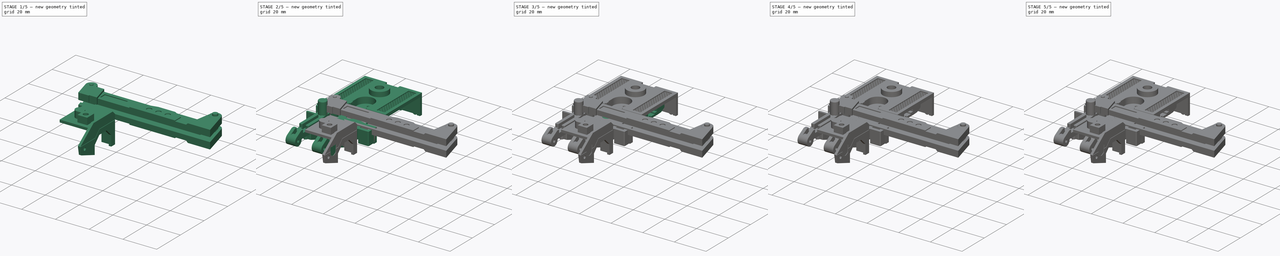
[diagram: build sequence overview — one tinted view per stage of 5, left to right]
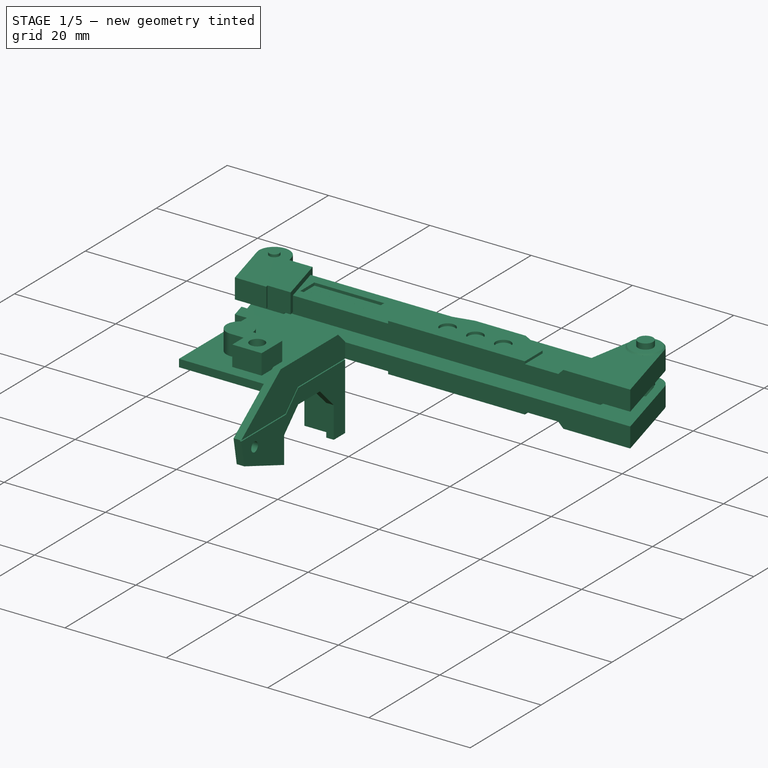
[diagram: stage 1 of 5 — iso view after this stage's code; geometry added in this stage tinted green]
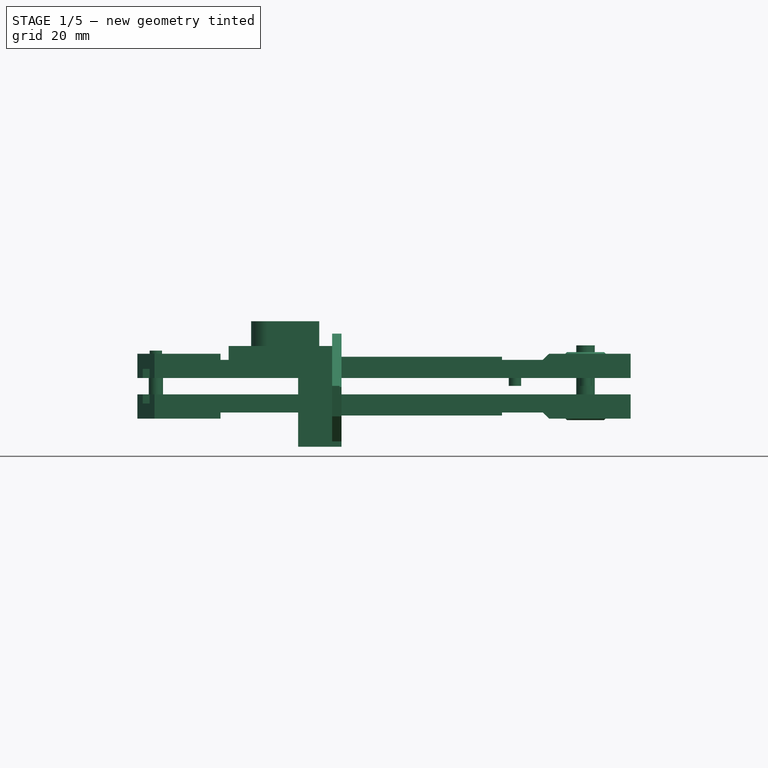
[diagram: stage 1 of 5 — front view after this stage's code; geometry added in this stage tinted green]
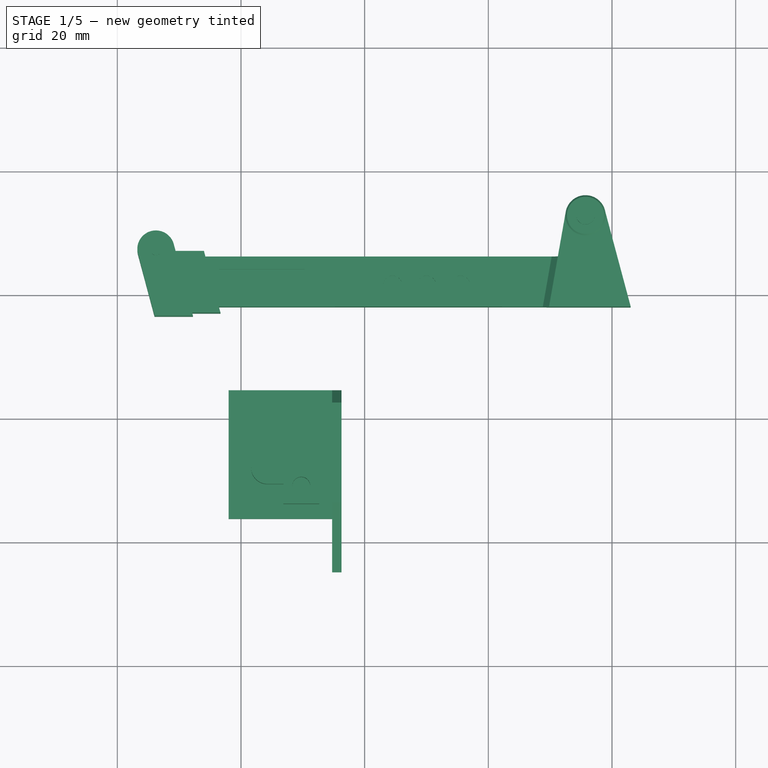
[diagram: stage 1 of 5 — top view after this stage's code; geometry added in this stage tinted green]
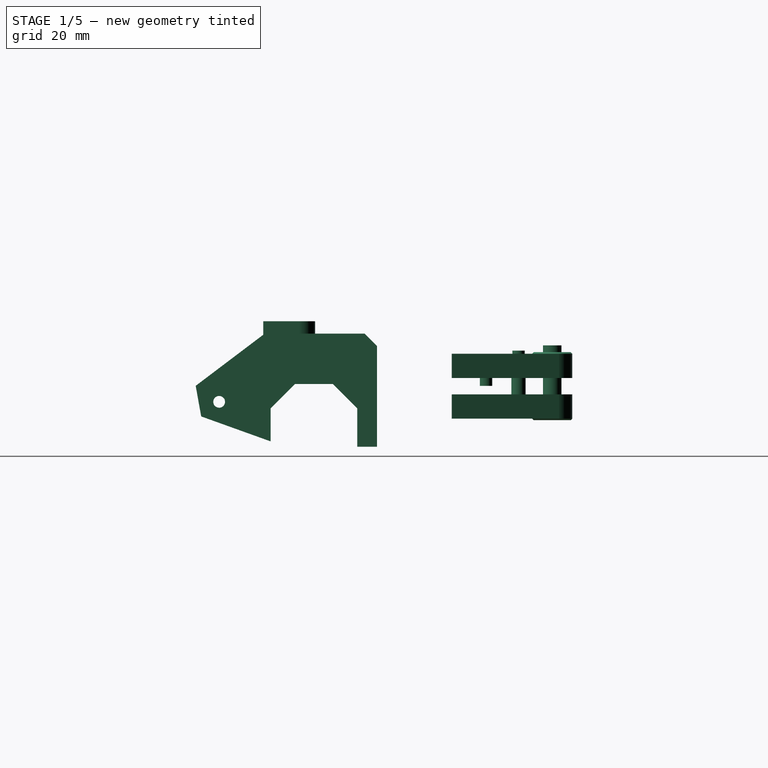
[diagram: stage 1 of 5 — right view after this stage's code; geometry added in this stage tinted green]
FCSTD DOCUMENT  (FreeCAD 1.0R39319 (Git))
Label: Stickered_Parts
License: All rights reserved
LicenseURL: https://en.wikipedia.org/wiki/All_rights_reserved
objects: Sketcher::SketchObject×24, PartDesign::Pocket×20, PartDesign::Body×13, Image::ImagePlane×7, PartDesign::SubShapeBinder×7, PartDesign::Pad×7, Part::Feature×6, PartDesign::FeatureBase×6
note: 167 computed .brp shape members not serialized (recipe doc carries the construction recipe); baked Part::Feature solids carry a one-line shape summary decoded from their .brp

FEATURE [PartDesign::Body] Body008  label="Sticker6"
  AllowCompound = false
  Group = -> [Binder005,Sketch019,Pad005,Sketch020,Pocket015]
  Origin = -> Origin008
  Tip = -> Pocket015
FEATURE [Part::Feature] Part__Feature003  label="Right_Outer_Leg"
  shape: bbox 18.25 x 29.33 x 20.3 mm, 42 faces (baked)
FEATURE [PartDesign::FeatureBase] BaseFeature003
  BaseFeature = -> Part__Feature003
  Suppressed = false
FEATURE [PartDesign::Body] Body009  label="Right_Outer_Leg_Stickered"
  AllowCompound = false
  BaseFeature = -> Part__Feature003
  Group = -> [BaseFeature003,Sketch021,Pocket016]
  Origin = -> Origin009
  Tip = -> Pocket016
FEATURE [Part::Feature] Part__Feature004  label="Outer_Left_Crane_Boom"
  shape: bbox 79.79 x 19.5 x 10.35 mm, 66 faces (baked)
FEATURE [PartDesign::FeatureBase] BaseFeature004
  BaseFeature = -> Part__Feature004
  Suppressed = false
FEATURE [Image::ImagePlane] Sticker7  label="Sticker7_Pre"
  Placement = pos=(23.4,2,0) rot=(0,0,1;0rad)
  XSize = 14.7504
  YSize = 4.08617
FEATURE [PartDesign::Pocket] Pocket017
  BaseFeature = -> BaseFeature004
  Direction = (0,0,-1)
  Length = 0.3
  Length2 = 5
  Profile = -> BaseFeature004 [Face60]
  Refine = true
  Suppressed = false
  Type = 0
FEATURE [PartDesign::Body] Body010  label="Outer_Left_Crane_Boom_Stickered"
  AllowCompound = false
  BaseFeature = -> Part__Feature004
  Group = -> [BaseFeature004,Pocket017]
  Origin = -> Origin010
  Tip = -> Pocket017
FEATURE [PartDesign::SubShapeBinder] Binder006
  BindCopyOnChange = 0
  BindMode = 2
  ClaimChildren = false
  Context = -> Body011 [Binder006.]
  Fuse = false
  MakeFace = true
  OffsetFill = false
  OffsetIntersection = false
  OffsetJoinType = 0
  OffsetOpenResult = false
  PartialLoad = false
  Refine = true
  Relative = true
  _Version = 2
FEATURE [Sketcher::SketchObject] Sketch022
  ArcFitTolerance = 1e-06
  AttachmentSupport = -> [Binder006]
  ExternalGeometry = -> [Binder006]
  FullyConstrained = true
  MakeInternals = false
  MapMode = 5
  Placement = pos=(0,0,3.45) rot=(0,0,1;0rad)
  sketch-geometry (4):
    g0: LineSegment StartX=16.4956 StartY=3.92 StartZ=0 EndX=16.4956 EndY=0.08 EndZ=0
    g1: LineSegment StartX=16.4956 StartY=0.08 StartZ=0 EndX=30.1356 EndY=0.08 EndZ=0
    g2: LineSegment StartX=30.1356 StartY=0.08 StartZ=0 EndX=30.1356 EndY=3.92 EndZ=0
    g3: LineSegment StartX=30.1356 StartY=3.92 StartZ=0 EndX=16.4956 EndY=3.92 EndZ=0
  constraints (12):
    c: Coincident(g0,g1)
    c: Coincident(g1,g2)
    c: Coincident(g2,g3)
    c: Coincident(g3,g0)
    c: Vertical(g0)
    c: Vertical(g2)
    c: Horizontal(g1)
    c: Horizontal(g3)
    c: DistanceX(g-4,g0) = 0.08
    c: DistanceX(g2,g-6) = 0.08
    c: DistanceY(g2,g-6) = 0.08
    c: DistanceY(g-6,g1) = 0.08
FEATURE [PartDesign::Pad] Pad006
  Direction = (0,0,1)
  Length = 0.3
  Length2 = 10
  Profile = -> Sketch022
  ReferenceAxis = -> Sketch022 [N_Axis]
  Refine = true
  Suppressed = false
  Type = 0
FEATURE [Sketcher::SketchObject] Sketch023
  ArcFitTolerance = 1e-06
  AttachmentSupport = -> [Pad006]
  ExternalGeometry = -> [Pad006]
  FullyConstrained = false
  MakeInternals = false
  MapMode = 5
  Placement = pos=(0,0,3.75) rot=(0,0,1;0rad)
  sketch-geometry (29):
    g0: LineSegment StartX=30.1356 StartY=0.949158 StartZ=0 EndX=29.2963 EndY=0.08 EndZ=0
    g1: LineSegment StartX=29.2963 StartY=0.08 StartZ=0 EndX=30.1356 EndY=0.08 EndZ=0
    g2: LineSegment StartX=30.1356 StartY=0.08 StartZ=0 EndX=30.1356 EndY=0.949158 EndZ=0
    g3: LineSegment StartX=30.1356 StartY=2.29535 StartZ=0 EndX=27.9963 EndY=0.08 EndZ=0
    g4: LineSegment StartX=27.9963 StartY=0.08 StartZ=0 EndX=26.6963 EndY=0.08 EndZ=0
    g5: LineSegment StartX=26.6963 StartY=0.08 StartZ=0 EndX=30.4045 EndY=3.92 EndZ=0
    g6: LineSegment StartX=30.4045 StartY=3.92 StartZ=0 EndX=30.1356 EndY=3.92 EndZ=0
    g7: LineSegment StartX=30.1356 StartY=3.92 StartZ=0 EndX=30.1356 EndY=2.29535 EndZ=0
    g8: LineSegment StartX=29.1045 StartY=3.92 StartZ=0 EndX=25.3963 EndY=0.08 EndZ=0
    g9: LineSegment StartX=25.3963 StartY=0.08 StartZ=0 EndX=24.0963 EndY=0.08 EndZ=0
    g10: LineSegment StartX=24.0963 StartY=0.08 StartZ=0 EndX=27.8045 EndY=3.92 EndZ=0
    g11: LineSegment StartX=27.8045 StartY=3.92 StartZ=0 EndX=29.1045 EndY=3.92 EndZ=0
    g12: LineSegment StartX=25.2045 StartY=3.92 StartZ=0 EndX=21.4963 EndY=0.08 EndZ=0
    g13: LineSegment StartX=21.4963 StartY=0.08 StartZ=0 EndX=22.7963 EndY=0.08 EndZ=0
    g14: LineSegment StartX=22.7963 StartY=0.08 StartZ=0 EndX=26.5045 EndY=3.92 EndZ=0
    g15: LineSegment StartX=26.5045 StartY=3.92 StartZ=0 EndX=25.2045 EndY=3.92 EndZ=0
    g16: LineSegment StartX=22.6045 StartY=3.92 StartZ=0 EndX=18.8963 EndY=0.08 EndZ=0
    g17: LineSegment StartX=18.8963 StartY=0.08 StartZ=0 EndX=20.1963 EndY=0.08 EndZ=0
    g18: LineSegment StartX=20.1963 StartY=0.08 StartZ=0 EndX=23.9045 EndY=3.92 EndZ=0
    g19: LineSegment StartX=23.9045 StartY=3.92 StartZ=0 EndX=22.6045 EndY=3.92 EndZ=0
    g20: LineSegment StartX=21.3045 StartY=3.92 StartZ=0 EndX=17.5963 EndY=0.08 EndZ=0
    g21: LineSegment StartX=17.5963 StartY=0.08 StartZ=0 EndX=16.4956 EndY=0.08 EndZ=0
    g22: LineSegment StartX=16.4956 StartY=0.08 StartZ=0 EndX=16.4956 EndY=0.286418 EndZ=0
    g23: LineSegment StartX=16.4956 StartY=0.286418 StartZ=0 EndX=20.0045 EndY=3.92 EndZ=0
    g24: LineSegment StartX=20.0045 StartY=3.92 StartZ=0 EndX=21.3045 EndY=3.92 EndZ=0
    g25: LineSegment StartX=18.7045 StartY=3.92 StartZ=0 EndX=16.4956 EndY=1.63261 EndZ=0
    g26: LineSegment StartX=16.4956 StartY=1.63261 StartZ=0 EndX=16.4956 EndY=2.9788 EndZ=0
    g27: LineSegment StartX=16.4956 StartY=2.9788 StartZ=0 EndX=17.4045 EndY=3.92 EndZ=0
    g28: LineSegment StartX=17.4045 StartY=3.92 StartZ=0 EndX=18.7045 EndY=3.92 EndZ=0
  constraints (83):
    c: PointOnObject(g0,g-6)
    c: PointOnObject(g0,g-5)
    c: Coincident(g1,g0)
    c: Coincident(g1,g-6)
    c: Coincident(g2,g1)
    c: Coincident(g2,g0)
    c: PointOnObject(g3,g-6)
    c: PointOnObject(g3,g-5)
    c: Coincident(g4,g3)
    c: PointOnObject(g4,g-5)
    c: Coincident(g5,g4)
    c: PointOnObject(g5,g-3)
    c: Coincident(g6,g5)
    c: Coincident(g6,g-6)
    c: Coincident(g7,g6)
    c: Coincident(g7,g3)
    c: PointOnObject(g8,g-5)
    c: Coincident(g10,g9)
    c: PointOnObject(g10,g-3)
    c: Coincident(g11,g10)
    c: Horizontal(g11)
    c: Coincident(g8,g11)
    c: PointOnObject(g9,g-5)
    c: PointOnObject(g12,g-3)
    c: PointOnObject(g12,g-5)
    c: Coincident(g13,g12)
    c: PointOnObject(g13,g-5)
    c: Coincident(g14,g13)
    c: PointOnObject(g14,g-3)
    c: Coincident(g15,g14)
    c: Coincident(g15,g12)
    c: PointOnObject(g16,g-3)
    c: PointOnObject(g16,g-5)
    c: Coincident(g17,g16)
    c: PointOnObject(g17,g-5)
    c: Coincident(g18,g17)
    c: PointOnObject(g18,g-3)
    c: Coincident(g19,g18)
    c: Coincident(g19,g16)
    c: PointOnObject(g20,g-3)
    c: PointOnObject(g20,g-5)
    c: Coincident(g21,g20)
    c: Coincident(g21,g-5)
    c: Coincident(g22,g21)
    c: PointOnObject(g22,g-4)
    c: Coincident(g23,g22)
    c: PointOnObject(g23,g-3)
    c: Coincident(g24,g23)
    c: Coincident(g24,g20)
    c: PointOnObject(g25,g-3)
    c: PointOnObject(g25,g-4)
    c: Coincident(g26,g25)
    c: PointOnObject(g26,g-4)
    c: Coincident(g27,g26)
    c: PointOnObject(g27,g-3)
    c: Coincident(g28,g27)
    c: Coincident(g28,g25)
    c: Parallel(g0,g3)
    c: Parallel(g3,g5)
    c: Parallel(g5,g8)
    c: Parallel(g8,g10)
    c: Parallel(g10,g14)
    c: Parallel(g14,g12)
    c: Parallel(g12,g18)
    c: Parallel(g18,g16)
    c: Parallel(g16,g20)
    c: Parallel(g20,g23)
    c: Parallel(g23,g25)
    c: Parallel(g25,g27)
    c: DistanceX(g11,g11) = 1.3
    c: DistanceX(g15,g15) = 1.3
    c: DistanceX(g19,g19) = 1.3
    c: DistanceX(g24,g24) = 1.3
    c: DistanceX(g28,g28) = 1.3
    c: DistanceX(g4,g4) = 1.3
    c: DistanceX(g14,g10) = 1.3
    c: DistanceX(g18,g12) = 1.3
    c: DistanceX(g20,g16) = 1.3
    c: DistanceX(g25,g23) = 1.3
    c: Coincident(g9,g8)
    c: DistanceX(g8,g4) = 1.3
    c: DistanceX(g3,g0) = 1.3
    c: Angle(g27,g28) = 2.33874
FEATURE [PartDesign::Pocket] Pocket018
  BaseFeature = -> Pad006
  Direction = (0,0,-1)
  Length = 0.001
  Length2 = 5
  Profile = -> Sketch023
  ReferenceAxis = -> Sketch023 [N_Axis]
  Refine = true
  Suppressed = false
  Type = 0
FEATURE [PartDesign::Body] Body011  label="Sticker7"
  AllowCompound = false
  Group = -> [Binder006,Sketch022,Pad006,Sketch023,Pocket018]
  Origin = -> Origin011
  Tip = -> Pocket018
FEATURE [Part::Feature] Part__Feature005  label="Outer_Right_Crane_Boom"
  shape: bbox 79.79 x 19.5 x 4.175 mm, 56 faces (baked)
FEATURE [PartDesign::FeatureBase] BaseFeature005
  BaseFeature = -> Part__Feature005
  Suppressed = false
FEATURE [PartDesign::Pocket] Pocket019
  BaseFeature = -> BaseFeature005
  Direction = (0,0,1)
  Length = 0.3
  Length2 = 5
  Profile = -> BaseFeature005 [Face53]
  Refine = true
  Suppressed = false
  Type = 0
FEATURE [PartDesign::Body] Body012  label="Outer_Right_Crane_Boom_Stickered"
  AllowCompound = false
  BaseFeature = -> Part__Feature005
  Group = -> [BaseFeature005,Pocket019]
  Origin = -> Origin012
  Tip = -> Pocket019
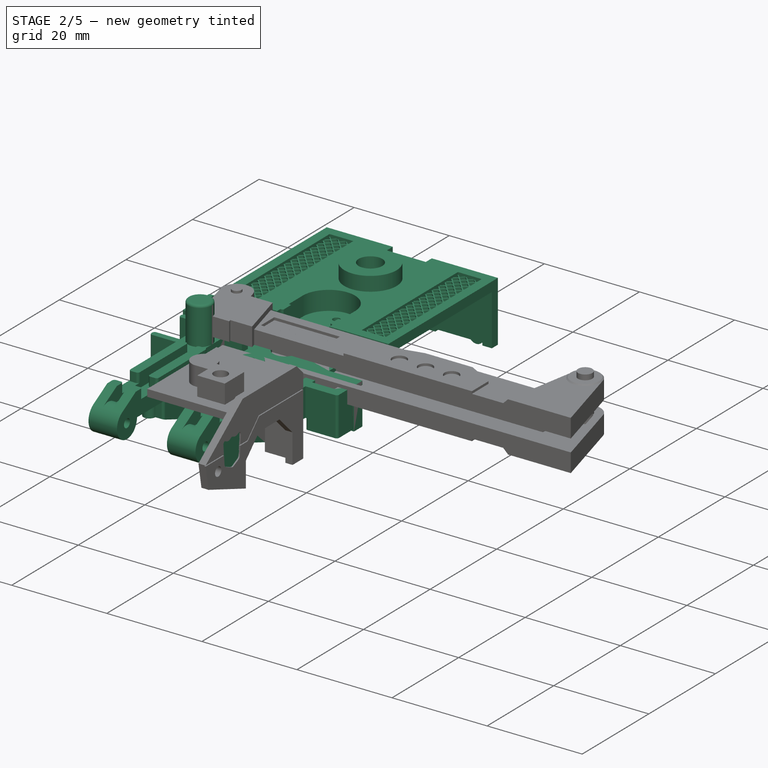
[diagram: stage 2 of 5 — iso view after this stage's code; geometry added in this stage tinted green]
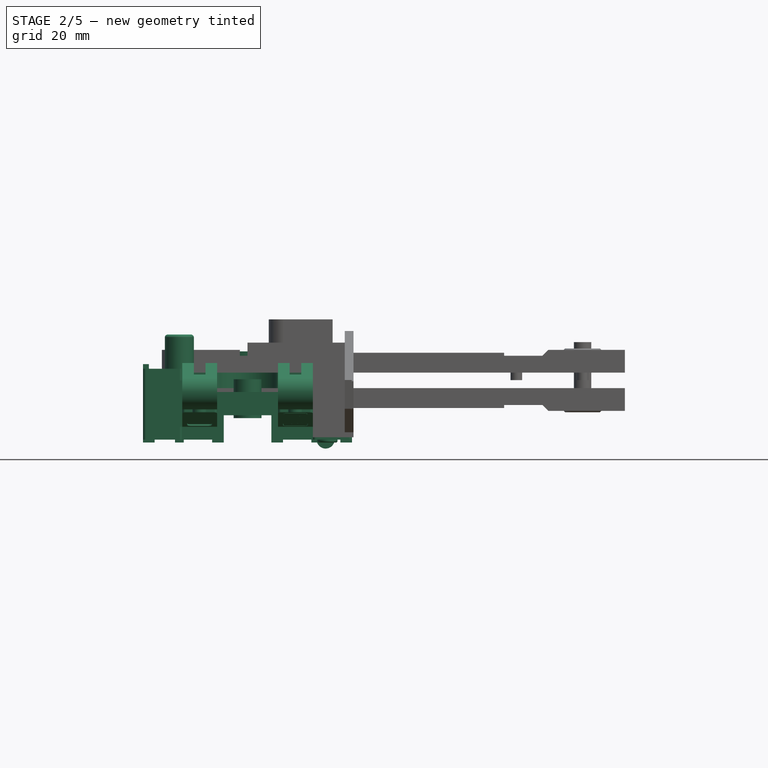
[diagram: stage 2 of 5 — front view after this stage's code; geometry added in this stage tinted green]
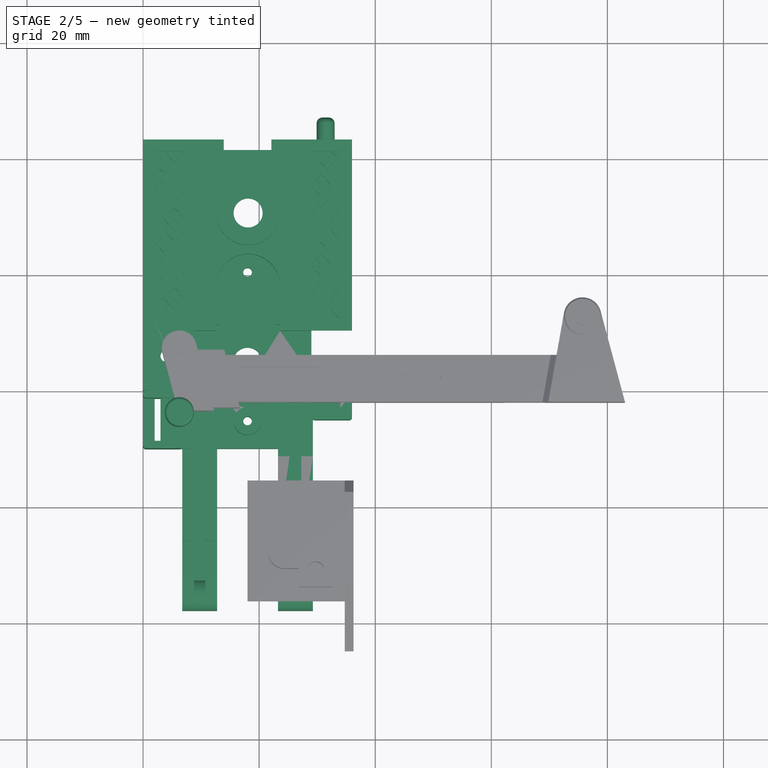
[diagram: stage 2 of 5 — top view after this stage's code; geometry added in this stage tinted green]
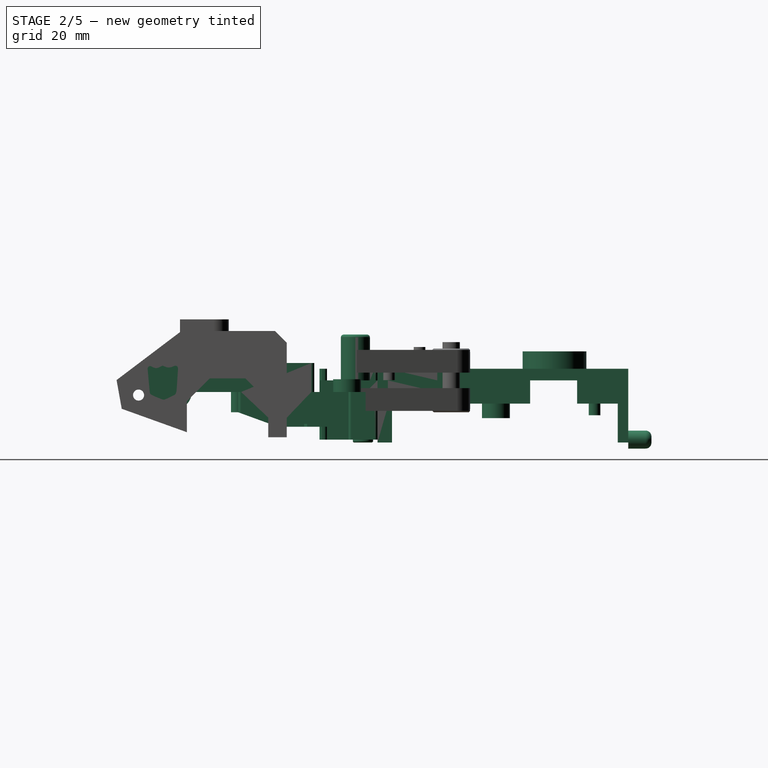
[diagram: stage 2 of 5 — right view after this stage's code; geometry added in this stage tinted green]
FEATURE [PartDesign::Body] Body006  label="Sticker5"
  AllowCompound = false
  Group = -> [Binder004,Sketch016,Pad004,Sketch017,Pocket013]
  Origin = -> Origin006
  Tip = -> Pocket013
FEATURE [PartDesign::FeatureBase] BaseFeature001
  BaseFeature = -> Part__Feature001
  Suppressed = false
FEATURE [PartDesign::Body] Body005  label="Rear_Torso_Stickered"
  AllowCompound = false
  BaseFeature = -> Part__Feature001
  Group = -> [BaseFeature001,Sketch015,Pocket012]
  Origin = -> Origin005
  Tip = -> Pocket012
FEATURE [Part::Feature] Part__Feature002  label="Legs"
  shape: bbox 36 x 38 x 18.6 mm, 175 faces (baked)
FEATURE [PartDesign::FeatureBase] BaseFeature002
  BaseFeature = -> Part__Feature002
  Suppressed = false
FEATURE [Image::ImagePlane] Sticker6  label="Sticker6_Pre"
  Placement = pos=(26.17,-18.15,0) rot=(1,0,0;-0.349066rad)
  XSize = 5.00263
  YSize = 7.21003
FEATURE [Sketcher::SketchObject] Sketch018
  ArcFitTolerance = 1e-06
  AttachmentSupport = -> [BaseFeature002]
  ExternalGeometry = -> [BaseFeature002]
  FullyConstrained = true
  MakeInternals = false
  MapMode = 5
  Placement = pos=(0,-4.57513,-12.5701) rot=(1,0,0;2.79253rad)
  sketch-geometry (24):
    g0: LineSegment StartX=24.1 StartY=19.6715 StartZ=0 EndX=24.1 EndY=14.362 EndZ=0
    g1: LineSegment StartX=24.6 StartY=13.862 StartZ=0 EndX=27.9 EndY=13.862 EndZ=0
    g2: LineSegment StartX=28.4 StartY=14.362 StartZ=0 EndX=28.4 EndY=19.6715 EndZ=0
    g3: LineSegment StartX=27.9 StartY=20.1715 StartZ=0 EndX=24.6 EndY=20.1715 EndZ=0
    g4: ArcOfCircle CenterX=27.9 CenterY=19.6715 CenterZ=0 NormalX=0 NormalY=0 NormalZ=1 AngleXU=0 Radius=0.5 StartAngle=0 EndAngle=1.5708
    g5: GeomPoint [constr] X=28.4 Y=20.1715 Z=0
    g6: ArcOfCircle CenterX=27.9 CenterY=14.362 CenterZ=0 NormalX=0 NormalY=0 NormalZ=1 AngleXU=0 Radius=0.5 StartAngle=4.71239 EndAngle=6.28319
    g7: GeomPoint [constr] X=28.4 Y=13.862 Z=0
    g8: ArcOfCircle CenterX=24.6 CenterY=14.362 CenterZ=0 NormalX=0 NormalY=0 NormalZ=1 AngleXU=0 Radius=0.5 StartAngle=3.14159 EndAngle=4.71239
    g9: GeomPoint [constr] X=24.1 Y=13.862 Z=0
    g10: ArcOfCircle CenterX=24.6 CenterY=19.6715 CenterZ=0 NormalX=0 NormalY=0 NormalZ=1 AngleXU=0 Radius=0.5 StartAngle=1.5708 EndAngle=3.14159
    g11: GeomPoint [constr] X=24.1 Y=20.1715 Z=0
    g12: LineSegment StartX=7.6 StartY=19.6715 StartZ=0 EndX=7.6 EndY=14.362 EndZ=0
    g13: LineSegment StartX=8.1 StartY=13.862 StartZ=0 EndX=11.4 EndY=13.862 EndZ=0
    g14: LineSegment StartX=11.9 StartY=14.362 StartZ=0 EndX=11.9 EndY=19.6715 EndZ=0
    g15: LineSegment StartX=11.4 StartY=20.1715 StartZ=0 EndX=8.1 EndY=20.1715 EndZ=0
    g16: ArcOfCircle CenterX=11.4 CenterY=19.6715 CenterZ=0 NormalX=0 NormalY=0 NormalZ=1 AngleXU=0 Radius=0.5 StartAngle=3e-16 EndAngle=1.5708
    g17: GeomPoint [constr] X=11.9 Y=20.1715 Z=0
    g18: ArcOfCircle CenterX=8.1 CenterY=19.6715 CenterZ=0 NormalX=0 NormalY=0 NormalZ=1 AngleXU=0 Radius=0.5 StartAngle=1.5708 EndAngle=3.14159
    g19: GeomPoint [constr] X=7.6 Y=20.1715 Z=0
    g20: ArcOfCircle CenterX=8.1 CenterY=14.362 CenterZ=0 NormalX=0 NormalY=0 NormalZ=1 AngleXU=0 Radius=0.5 StartAngle=3.14159 EndAngle=4.71239
    g21: GeomPoint [constr] X=7.6 Y=13.862 Z=0
    g22: ArcOfCircle CenterX=11.4 CenterY=14.362 CenterZ=0 NormalX=0 NormalY=0 NormalZ=1 AngleXU=0 Radius=0.5 StartAngle=4.71239 EndAngle=6.28319
    g23: GeomPoint [constr] X=11.9 Y=13.862 Z=0
  constraints (56):
    c: Vertical(g0)
    c: Vertical(g2)
    c: Horizontal(g1)
    c: Horizontal(g3)
    c: PointOnObject(g5,g2)
    c: PointOnObject(g5,g3)
    c: Tangent(g2,g4) = -1.5708
    c: Tangent(g3,g4) = -1.5708
    c: PointOnObject(g7,g1)
    c: PointOnObject(g7,g2)
    c: Tangent(g1,g6) = -1.5708
    c: Tangent(g2,g6) = -1.5708
    c: PointOnObject(g9,g0)
    c: PointOnObject(g9,g1)
    c: Tangent(g0,g8) = -1.5708
    c: Tangent(g1,g8) = -1.5708
    c: PointOnObject(g11,g0)
    c: PointOnObject(g11,g3)
    c: Tangent(g0,g10) = -1.5708
    c: Tangent(g3,g10) = -1.5708
    c: Radius(g8) = 0.5
    c: Radius(g6) = 0.5
    c: Radius(g4) = 0.5
    c: Radius(g10) = 0.5
    c: DistanceY(g3,g-3) = 0.5
    c: DistanceY(g-6,g1) = 0.5
    c: DistanceX(g-6,g0) = 0.85
    c: DistanceX(g2,g-5) = 0.85
    c: Vertical(g12)
    c: Vertical(g14)
    c: Horizontal(g13)
    c: Horizontal(g15)
    c: PointOnObject(g17,g14)
    c: PointOnObject(g17,g15)
    c: Tangent(g14,g16) = -1.5708
    c: Tangent(g15,g16) = -1.5708
    c: PointOnObject(g19,g12)
    c: PointOnObject(g19,g15)
    c: Tangent(g12,g18) = -1.5708
    c: Tangent(g15,g18) = -1.5708
    c: PointOnObject(g21,g12)
    c: PointOnObject(g21,g13)
    c: Tangent(g12,g20) = -1.5708
    c: Tangent(g13,g20) = -1.5708
    c: PointOnObject(g23,g13)
    c: PointOnObject(g23,g14)
    c: Tangent(g13,g22) = -1.5708
    c: Tangent(g14,g22) = -1.5708
    c: Radius(g18) = 0.5
    c: Radius(g16) = 0.5
    c: Radius(g22) = 0.5
    c: Radius(g20) = 0.5
    c: DistanceY(g-9,g13) = 0.5
    c: DistanceY(g15,g-7) = 0.5
    c: DistanceX(g-10,g12) = 0.85
    c: DistanceX(g14,g-8) = 0.85
FEATURE [PartDesign::Pocket] Pocket014
  BaseFeature = -> BaseFeature002
  Direction = (0,0.34202,0.939693)
  Length = 0.3
  Length2 = 5
  Profile = -> Sketch018
  ReferenceAxis = -> Sketch018 [N_Axis]
  Refine = true
  Suppressed = false
  Type = 0
FEATURE [PartDesign::Body] Body007  label="Legs_Stickered"
  AllowCompound = false
  BaseFeature = -> Part__Feature002
  Group = -> [BaseFeature002,Sketch018,Pocket014]
  Origin = -> Origin007
  Tip = -> Pocket014
FEATURE [PartDesign::SubShapeBinder] Binder005
  BindCopyOnChange = 0
  BindMode = 2
  ClaimChildren = false
  Context = -> Body008 [Binder005.]
  Fuse = false
  MakeFace = true
  OffsetFill = false
  OffsetIntersection = false
  OffsetJoinType = 0
  OffsetOpenResult = false
  PartialLoad = false
  Refine = true
  Relative = true
  _Version = 2
FEATURE [Sketcher::SketchObject] Sketch019
  ArcFitTolerance = 1e-06
  AttachmentSupport = -> [Binder005]
  ExternalGeometry = -> [Binder005]
  FullyConstrained = true
  MakeInternals = false
  MapMode = 5
  Placement = pos=(0,-4.47253,-12.2882) rot=(1,0,0;2.79253rad)
  sketch-geometry (12):
    g0: LineSegment StartX=24.18 StartY=19.5915 StartZ=0 EndX=24.18 EndY=14.442 EndZ=0
    g1: LineSegment StartX=24.68 StartY=13.942 StartZ=0 EndX=27.82 EndY=13.942 EndZ=0
    g2: LineSegment StartX=28.32 StartY=14.442 StartZ=0 EndX=28.32 EndY=19.5915 EndZ=0
    g3: LineSegment StartX=27.82 StartY=20.0915 StartZ=0 EndX=24.68 EndY=20.0915 EndZ=0
    g4: ArcOfCircle CenterX=27.82 CenterY=19.5915 CenterZ=0 NormalX=0 NormalY=0 NormalZ=1 AngleXU=0 Radius=0.5 StartAngle=1.8e-15 EndAngle=1.5708
    g5: GeomPoint [constr] X=28.32 Y=20.0915 Z=0
    g6: ArcOfCircle CenterX=24.68 CenterY=19.5915 CenterZ=0 NormalX=0 NormalY=0 NormalZ=1 AngleXU=0 Radius=0.5 StartAngle=1.5708 EndAngle=3.14159
    g7: GeomPoint [constr] X=24.18 Y=20.0915 Z=0
    g8: ArcOfCircle CenterX=24.68 CenterY=14.442 CenterZ=0 NormalX=0 NormalY=0 NormalZ=1 AngleXU=0 Radius=0.5 StartAngle=3.14159 EndAngle=4.71239
    g9: GeomPoint [constr] X=24.18 Y=13.942 Z=0
    g10: ArcOfCircle CenterX=27.82 CenterY=14.442 CenterZ=0 NormalX=0 NormalY=0 NormalZ=1 AngleXU=0 Radius=0.5 StartAngle=4.71239 EndAngle=6.28319
    g11: GeomPoint [constr] X=28.32 Y=13.942 Z=0
  constraints (28):
    c: Vertical(g0)
    c: Vertical(g2)
    c: Horizontal(g1)
    c: Horizontal(g3)
    c: PointOnObject(g5,g2)
    c: PointOnObject(g5,g3)
    c: Tangent(g2,g4) = -1.5708
    c: Tangent(g3,g4) = -1.5708
    c: PointOnObject(g7,g0)
    c: PointOnObject(g7,g3)
    c: Tangent(g0,g6) = -1.5708
    c: Tangent(g3,g6) = -1.5708
    c: PointOnObject(g9,g0)
    c: PointOnObject(g9,g1)
    c: Tangent(g0,g8) = -1.5708
    c: Tangent(g1,g8) = -1.5708
    c: PointOnObject(g11,g1)
    c: PointOnObject(g11,g2)
    c: Tangent(g1,g10) = -1.5708
    c: Tangent(g2,g10) = -1.5708
    c: Radius(g6) = 0.5
    c: Radius(g4) = 0.5
    c: Radius(g8) = 0.5
    c: Radius(g10) = 0.5
    c: DistanceY(g-6,g1) = 0.08
    c: DistanceY(g3,g-3) = 0.08
    c: DistanceX(g-5,g0) = 0.08
    c: DistanceX(g2,g-4) = 0.08
FEATURE [PartDesign::Pad] Pad005
  Direction = (0,-0.34202,-0.939693)
  Length = 0.3
  Length2 = 10
  Profile = -> Sketch019
  ReferenceAxis = -> Sketch019 [N_Axis]
  Refine = true
  Suppressed = false
  Type = 0
FEATURE [Sketcher::SketchObject] Sketch020
  ArcFitTolerance = 1e-06
  AttachmentSupport = -> [Pad005]
  ExternalGeometry = -> [Pad005]
  FullyConstrained = false
  MakeInternals = false
  MapMode = 5
  Placement = pos=(0,-4.57513,-12.5701) rot=(1,0,0;2.79253rad)
  sketch-geometry (37):
    g0: LineSegment StartX=25.4477 StartY=14.3643 StartZ=0 EndX=25.6438 EndY=14.9917 EndZ=0
    g1: ArcOfCircle CenterX=25.7734 CenterY=15.669 CenterZ=0 NormalX=0 NormalY=0 NormalZ=1 AngleXU=0 Radius=0.68957 StartAngle=3.14159 EndAngle=4.52332
    g2: LineSegment StartX=25.0838 StartY=15.669 StartZ=0 EndX=25.0838 EndY=18.3787 EndZ=0
    g3: ArcOfCircle CenterX=25.6803 CenterY=18.3787 CenterZ=0 NormalX=0 NormalY=0 NormalZ=1 AngleXU=0 Radius=0.596519 StartAngle=1.5708 EndAngle=3.14159
    g4: ArcOfCircle CenterX=26.8722 CenterY=18.4099 CenterZ=0 NormalX=0 NormalY=0 NormalZ=1 AngleXU=0 Radius=0.565267 StartAngle=2.4e-15 EndAngle=1.5708
    g5: ArcOfCircle CenterX=26.7623 CenterY=15.6618 CenterZ=0 NormalX=0 NormalY=0 NormalZ=1 AngleXU=0 Radius=0.675109 StartAngle=4.83545 EndAngle=6.28319
    g6: LineSegment StartX=25.4477 StartY=14.3643 StartZ=0 EndX=27.0435 EndY=14.3643 EndZ=0
    g7: LineSegment StartX=27.0435 StartY=14.3643 StartZ=0 EndX=26.8452 EndY=14.9917 EndZ=0
    g8: LineSegment StartX=27.4374 StartY=15.6618 StartZ=0 EndX=27.4374 EndY=18.4099 EndZ=0
    g9: LineSegment StartX=26.8722 StartY=18.9752 StartZ=0 EndX=25.6803 EndY=18.9752 EndZ=0
    g10: ArcOfCircle CenterX=25.7631 CenterY=15.669 CenterZ=0 NormalX=0 NormalY=0 NormalZ=1 AngleXU=0 Radius=0.429258 StartAngle=3.14159 EndAngle=4.61639
    g11: ArcOfCircle CenterX=26.7674 CenterY=15.6618 CenterZ=0 NormalX=0 NormalY=0 NormalZ=1 AngleXU=0 Radius=0.420005 StartAngle=4.70944 EndAngle=6.28319
    g12: ArcOfCircle CenterX=25.6803 CenterY=18.3787 CenterZ=0 NormalX=0 NormalY=0 NormalZ=1 AngleXU=0 Radius=0.346519 StartAngle=1.5708 EndAngle=3.14159
    g13: ArcOfCircle CenterX=26.8722 CenterY=18.4099 CenterZ=0 NormalX=0 NormalY=0 NormalZ=1 AngleXU=0 Radius=0.315267 StartAngle=1.5e-15 EndAngle=1.5708
    g14: LineSegment StartX=27.1874 StartY=15.6618 StartZ=0 EndX=27.1874 EndY=18.4099 EndZ=0
    g15: LineSegment StartX=26.8722 StartY=18.7252 StartZ=0 EndX=25.6803 EndY=18.7252 EndZ=0
    g16: LineSegment StartX=25.3338 StartY=18.3787 StartZ=0 EndX=25.3338 EndY=15.669 EndZ=0
    g17: LineSegment StartX=25.7219 StartY=15.2417 StartZ=0 EndX=26.2412 EndY=16.903 EndZ=0
    g18: LineSegment StartX=26.2412 StartY=16.903 StartZ=0 EndX=26.7662 EndY=15.2417 EndZ=0
    g19: LineSegment StartX=26.2412 StartY=16.2502 StartZ=0 EndX=25.7098 EndY=14.5749 EndZ=0
    g20: LineSegment StartX=25.7098 StartY=14.5749 StartZ=0 EndX=26.802 EndY=14.5749 EndZ=0
    g21: LineSegment StartX=26.802 StartY=14.5749 StartZ=0 EndX=26.2412 EndY=16.2502 EndZ=0
    g22: LineSegment [constr] StartX=25.3338 StartY=15.669 StartZ=0 EndX=25.0838 EndY=15.669 EndZ=0
    g23: LineSegment [constr] StartX=27.1874 StartY=15.6618 StartZ=0 EndX=27.4374 EndY=15.6618 EndZ=0
    g24: LineSegment [constr] StartX=26.8722 StartY=18.9752 StartZ=0 EndX=26.8722 EndY=18.7252 EndZ=0
    g25: LineSegment [constr] StartX=27.1874 StartY=18.4099 StartZ=0 EndX=27.4374 EndY=18.4099 EndZ=0
    g26: LineSegment [constr] StartX=25.3338 StartY=18.3787 StartZ=0 EndX=25.0838 EndY=18.3787 EndZ=0
    g27: LineSegment [constr] StartX=25.6803 StartY=18.9752 StartZ=0 EndX=25.6803 EndY=18.7252 EndZ=0
    g28: LineSegment [constr] StartX=25.3338 StartY=18.3787 StartZ=0 EndX=25.6803 EndY=18.3787 EndZ=0
    g29: LineSegment [constr] StartX=25.6803 StartY=18.3787 StartZ=0 EndX=25.6803 EndY=18.7252 EndZ=0
    g30: LineSegment [constr] StartX=26.8722 StartY=18.7252 StartZ=0 EndX=26.8722 EndY=18.4099 EndZ=0
    g31: LineSegment [constr] StartX=26.8722 StartY=18.4099 StartZ=0 EndX=27.1874 EndY=18.4099 EndZ=0
    g32: LineSegment [constr] StartX=25.6438 StartY=14.9917 StartZ=0 EndX=25.7219 EndY=15.2417 EndZ=0
    g33: LineSegment [constr] StartX=26.8452 StartY=14.9917 StartZ=0 EndX=26.7662 EndY=15.2417 EndZ=0
    g34: LineSegment [constr] StartX=26.2412 StartY=16.2502 StartZ=0 EndX=26.2412 EndY=16.903 EndZ=0
    g35: LineSegment [constr] StartX=25.7219 StartY=15.2417 StartZ=0 EndX=26.7662 EndY=15.2417 EndZ=0
    g36: LineSegment [constr] StartX=25.6438 StartY=14.9917 StartZ=0 EndX=26.8452 EndY=14.9917 EndZ=0
  constraints (77):
    c: Coincident(g1,g0)
    c: Vertical(g2)
    c: Coincident(g6,g0)
    c: Horizontal(g6)
    c: Coincident(g7,g6)
    c: Coincident(g7,g5)
    c: Vertical(g8)
    c: Horizontal(g9)
    c: Vertical(g14)
    c: Horizontal(g15)
    c: Vertical(g16)
    c: Coincident(g17,g10)
    c: Coincident(g18,g17)
    c: Coincident(g18,g11)
    c: Coincident(g20,g19)
    c: Horizontal(g20)
    c: Coincident(g21,g20)
    c: Coincident(g21,g19)
    c: Tangent(g14,g11) = -1.5708
    c: Tangent(g8,g5) = -1.5708
    c: Tangent(g16,g10) = -1.5708
    c: Tangent(g2,g1) = 1.5708
    c: Tangent(g16,g12) = -1.5708
    c: Tangent(g12,g15) = -1.5708
    c: Tangent(g3,g2) = 1.5708
    c: Tangent(g9,g3) = -1.5708
    c: Tangent(g9,g4) = -1.5708
    c: Tangent(g8,g4) = -1.5708
    c: Tangent(g15,g13) = -1.5708
    c: Tangent(g14,g13) = -1.5708
    c: Coincident(g22,g10)
    c: Coincident(g22,g1)
    c: Coincident(g23,g11)
    c: Coincident(g23,g5)
    c: Coincident(g24,g4)
    c: Coincident(g24,g13)
    c: Coincident(g25,g13)
    c: Coincident(g25,g4)
    c: Coincident(g26,g12)
    c: Coincident(g26,g2)
    c: Coincident(g27,g3)
    c: Coincident(g27,g12)
    c: Vertical(g27)
    c: Vertical(g24)
    c: Horizontal(g26)
    c: Horizontal(g25)
    c: Horizontal(g22)
    c: Horizontal(g23)
    c: DistanceX(g23,g23) = 0.25
    c: Coincident(g28,g12)
    c: Coincident(g28,g3)
    c: Coincident(g29,g12)
    c: Coincident(g29,g12)
    c: Coincident(g30,g13)
    c: Coincident(g30,g4)
    c: Coincident(g31,g13)
    c: Coincident(g31,g13)
    c: Parallel(g7,g18)
    c: Parallel(g17,g0)
    c: Coincident(g32,g0)
    c: Coincident(g32,g10)
    c: Coincident(g33,g5)
    c: Coincident(g33,g11)
    c: Parallel(g18,g33)
    c: Parallel(g17,g32)
    c: Coincident(g34,g19)
    c: Coincident(g34,g17)
    c: Vertical(g34)
    c: Coincident(g35,g10)
    c: Coincident(g35,g11)
    c: Horizontal(g35)
    c: Coincident(g36,g0)
    c: Coincident(g36,g5)
    c: Horizontal(g36)
    c: DistanceY(g0,g10) = 0.25
    c: DistanceX(g10,g17) = 0.519259
    c: DistanceX(g17,g11) = 0.525
FEATURE [PartDesign::Pocket] Pocket015
  BaseFeature = -> Pad005
  Direction = (0,0.34202,0.939693)
  Length = 0.001
  Length2 = 5
  Profile = -> Sketch020
  ReferenceAxis = -> Sketch020 [N_Axis]
  Refine = true
  Suppressed = false
  Type = 0
FEATURE [Sketcher::SketchObject] Sketch021
  ArcFitTolerance = 1e-06
  AttachmentOffset = pos=(-32,-3,0) rot=(0,0,1;3.14159rad)
  AttachmentSupport = -> [BaseFeature003]
  FullyConstrained = false
  MakeInternals = false
  MapMode = 5
  Placement = pos=(36.25,-32,-3) rot=(0.57735,-0.57735,0.57735;4.18879rad)
  sketch-geometry (45):
    g0-g22: Circle [constr] x23 (B-spline internal-alignment scaffolding for g23; pole/knot coordinates omitted)
    g23: BSplineCurve PolesCount=23 KnotsCount=21 Degree=3 IsPeriodic=0
    g24-g44: GeomPoint [constr] x21 (B-spline internal-alignment scaffolding for g23; pole/knot coordinates omitted)
  constraints (5):
    c: Weight(g0) = 1
    c: Equal(g0, g1-g22) x22
    c: InternalAlignment(g0-g22 -> g23) x23
    c: InternalAlignment(g24-g44 -> g23) x21
    c: Coincident(g22,g0)
FEATURE [PartDesign::Pocket] Pocket016
  BaseFeature = -> BaseFeature003
  Direction = (-1,0,0)
  Length = 0.3
  Length2 = 5
  Profile = -> Sketch021
  ReferenceAxis = -> Sketch021 [N_Axis]
  Refine = true
  Suppressed = false
  Type = 0
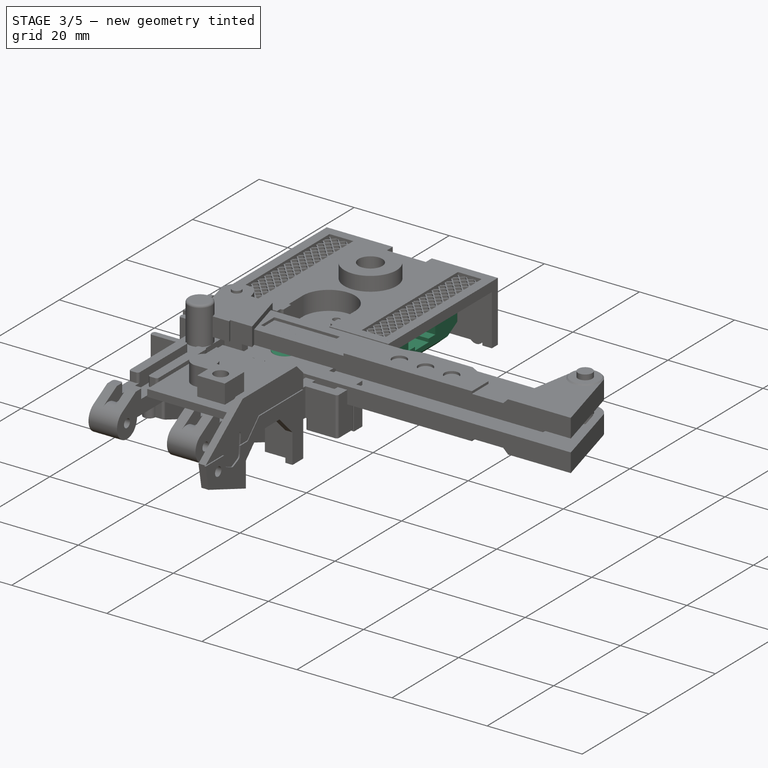
[diagram: stage 3 of 5 — iso view after this stage's code; geometry added in this stage tinted green]
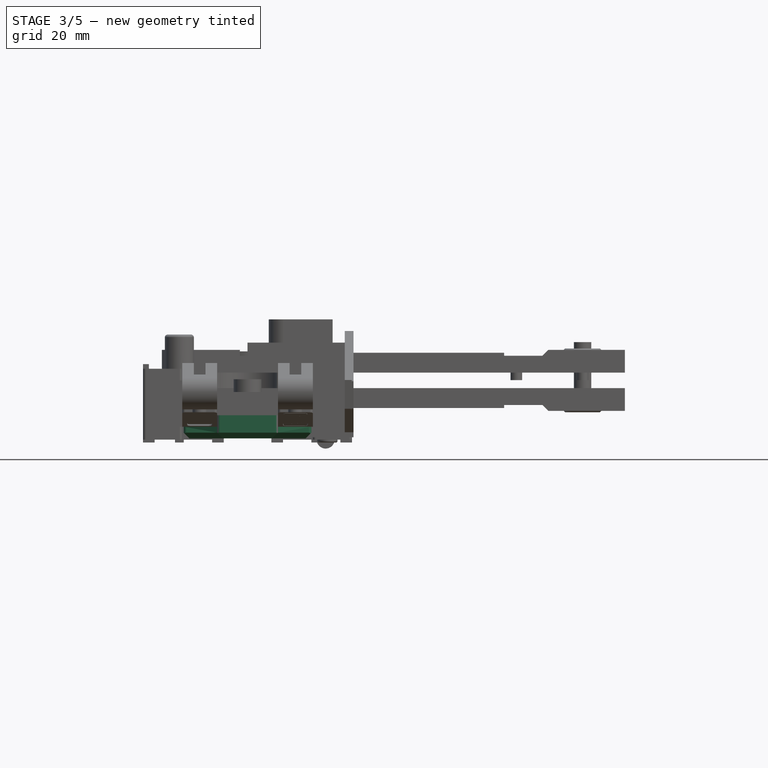
[diagram: stage 3 of 5 — front view after this stage's code; geometry added in this stage tinted green]
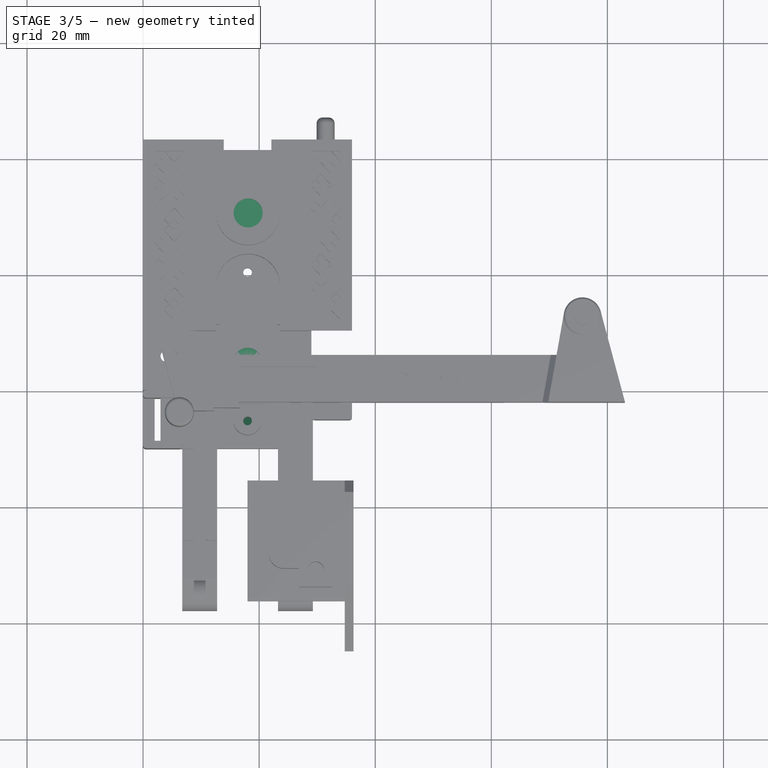
[diagram: stage 3 of 5 — top view after this stage's code; geometry added in this stage tinted green]
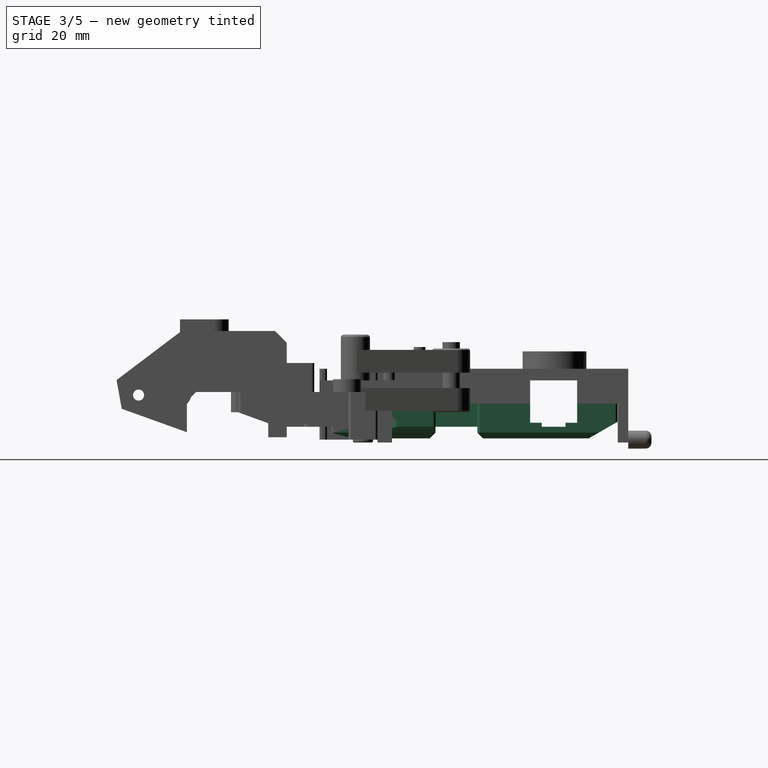
[diagram: stage 3 of 5 — right view after this stage's code; geometry added in this stage tinted green]
FEATURE [Part::Feature] Part__Feature  label="Front_Torso"
  shape: bbox 22 x 49.35 x 8 mm, 155 faces (baked)
FEATURE [PartDesign::FeatureBase] BaseFeature
  BaseFeature = -> Part__Feature
  Suppressed = false
FEATURE [PartDesign::Pocket] Pocket
  BaseFeature = -> BaseFeature
  Direction = (0,0,1)
  Length = 0.1
  Length2 = 5
  Profile = -> BaseFeature [Face120]
  Refine = true
  Suppressed = false
  Type = 0
FEATURE [PartDesign::Body] Body  label="Front_Torso_Stickered"
  AllowCompound = false
  BaseFeature = -> Part__Feature
  Group = -> [BaseFeature,Pocket,Sketch004,Pocket004,Sketch005,Pocket005,Sketch008,Pocket007,Sketch009,Pocket008,Sketch012,Pocket010]
  Origin = -> Origin
  Tip = -> Pocket010
FEATURE [PartDesign::SubShapeBinder] Binder003
  BindCopyOnChange = 0
  BindMode = 2
  ClaimChildren = false
  Context = -> Body004 [Binder003.]
  Fuse = false
  MakeFace = true
  OffsetFill = false
  OffsetIntersection = false
  OffsetJoinType = 0
  OffsetOpenResult = false
  PartialLoad = false
  Refine = true
  Relative = true
  _Version = 2
FEATURE [Sketcher::SketchObject] Sketch013
  ArcFitTolerance = 1e-06
  AttachmentSupport = -> [Binder003]
  ExternalGeometry = -> [Binder003]
  FullyConstrained = true
  MakeInternals = false
  MapMode = 5
  Placement = pos=(0,0,-8.7) rot=(1,0,0;3.14159rad)
  sketch-geometry (12):
    g0: LineSegment StartX=15.93 StartY=2.22 StartZ=0 EndX=15.93 EndY=-5.92 EndZ=0
    g1: LineSegment StartX=16.53 StartY=-6.52 StartZ=0 EndX=19.47 EndY=-6.52 EndZ=0
    g2: LineSegment StartX=20.07 StartY=-5.92 StartZ=0 EndX=20.07 EndY=2.22 EndZ=0
    g3: LineSegment StartX=19.47 StartY=2.82 StartZ=0 EndX=16.53 EndY=2.82 EndZ=0
    g4: ArcOfCircle CenterX=19.47 CenterY=2.22 CenterZ=0 NormalX=0 NormalY=0 NormalZ=1 AngleXU=0 Radius=0.6 StartAngle=1e-16 EndAngle=1.5708
    g5: GeomPoint [constr] X=20.07 Y=2.82 Z=0
    g6: ArcOfCircle CenterX=16.53 CenterY=2.22 CenterZ=0 NormalX=0 NormalY=0 NormalZ=1 AngleXU=0 Radius=0.6 StartAngle=1.5708 EndAngle=3.14159
    g7: GeomPoint [constr] X=15.93 Y=2.82 Z=0
    g8: ArcOfCircle CenterX=16.53 CenterY=-5.92 CenterZ=0 NormalX=0 NormalY=0 NormalZ=1 AngleXU=0 Radius=0.6 StartAngle=3.14159 EndAngle=4.71239
    g9: GeomPoint [constr] X=15.93 Y=-6.52 Z=0
    g10: ArcOfCircle CenterX=19.47 CenterY=-5.92 CenterZ=0 NormalX=0 NormalY=0 NormalZ=1 AngleXU=0 Radius=0.6 StartAngle=4.71239 EndAngle=6.28319
    g11: GeomPoint [constr] X=20.07 Y=-6.52 Z=0
  constraints (29):
    c: Vertical(g0)
    c: Vertical(g2)
    c: Horizontal(g1)
    c: Horizontal(g3)
    c: PointOnObject(g5,g2)
    c: PointOnObject(g5,g3)
    c: Tangent(g2,g4) = -1.5708
    c: Tangent(g3,g4) = -1.5708
    c: PointOnObject(g7,g0)
    c: PointOnObject(g7,g3)
    c: Tangent(g0,g6) = -1.5708
    c: Tangent(g3,g6) = -1.5708
    c: PointOnObject(g9,g0)
    c: PointOnObject(g9,g1)
    c: Tangent(g0,g8) = -1.5708
    c: Tangent(g1,g8) = -1.5708
    c: PointOnObject(g11,g1)
    c: PointOnObject(g11,g2)
    c: Tangent(g1,g10) = -1.5708
    c: Tangent(g2,g10) = -1.5708
    c: Radius(g-9) = 0.6
    c: Radius(g8) = 0.6
    c: Radius(g10) = 0.6
    c: Radius(g4) = 0.6
    c: Radius(g6) = 0.6
    c: DistanceY(g3,g-5) = 0.08
    c: DistanceY(g-9,g1) = 0.08
    c: DistanceX(g-9,g0) = 0.08
    c: DistanceX(g2,g-10) = 0.08
FEATURE [PartDesign::Pad] Pad003
  Direction = (0,0,-1)
  Length = 0.3
  Length2 = 10
  Profile = -> Sketch013
  ReferenceAxis = -> Sketch013 [N_Axis]
  Refine = true
  Suppressed = false
  Type = 0
FEATURE [Sketcher::SketchObject] Sketch014
  ArcFitTolerance = 1e-06
  AttachmentSupport = -> [Pad003]
  ExternalGeometry = -> [Pad003]
  FullyConstrained = true
  MakeInternals = false
  MapMode = 5
  Placement = pos=(0,0,-9) rot=(1,0,0;3.14159rad)
  sketch-geometry (40):
    g0: LineSegment StartX=16.775 StartY=2.05 StartZ=0 EndX=16.775 EndY=1.15 EndZ=0
    g1: LineSegment StartX=16.775 StartY=1.15 StartZ=0 EndX=19.225 EndY=1.15 EndZ=0
    g2: LineSegment StartX=19.225 StartY=1.15 StartZ=0 EndX=19.225 EndY=2.05 EndZ=0
    g3: LineSegment StartX=19.225 StartY=2.05 StartZ=0 EndX=16.775 EndY=2.05 EndZ=0
    g4: LineSegment StartX=16.775 StartY=0.9 StartZ=0 EndX=16.775 EndY=-2e-16 EndZ=0
    g5: LineSegment StartX=16.775 StartY=-3e-16 StartZ=0 EndX=19.225 EndY=-3e-16 EndZ=0
    g6: LineSegment StartX=19.225 StartY=-3e-16 StartZ=0 EndX=19.225 EndY=0.9 EndZ=0
    g7: LineSegment StartX=19.225 StartY=0.9 StartZ=0 EndX=16.775 EndY=0.9 EndZ=0
    g8: LineSegment StartX=16.775 StartY=-0.25 StartZ=0 EndX=16.775 EndY=-1.15 EndZ=0
    g9: LineSegment StartX=16.775 StartY=-1.15 StartZ=0 EndX=19.225 EndY=-1.15 EndZ=0
    g10: LineSegment StartX=19.225 StartY=-1.15 StartZ=0 EndX=19.225 EndY=-0.25 EndZ=0
    g11: LineSegment StartX=19.225 StartY=-0.25 StartZ=0 EndX=16.775 EndY=-0.25 EndZ=0
    g12: LineSegment StartX=16.775 StartY=-1.4 StartZ=0 EndX=16.775 EndY=-2.3 EndZ=0
    g13: LineSegment StartX=16.775 StartY=-2.3 StartZ=0 EndX=19.225 EndY=-2.3 EndZ=0
    g14: LineSegment StartX=19.225 StartY=-2.3 StartZ=0 EndX=19.225 EndY=-1.4 EndZ=0
    g15: LineSegment StartX=19.225 StartY=-1.4 StartZ=0 EndX=16.775 EndY=-1.4 EndZ=0
    g16: LineSegment StartX=16.775 StartY=-2.55 StartZ=0 EndX=16.775 EndY=-3.45 EndZ=0
    g17: LineSegment StartX=16.775 StartY=-3.45 StartZ=0 EndX=19.225 EndY=-3.45 EndZ=0
    g18: LineSegment StartX=19.225 StartY=-3.45 StartZ=0 EndX=19.225 EndY=-2.55 EndZ=0
    g19: LineSegment StartX=19.225 StartY=-2.55 StartZ=0 EndX=16.775 EndY=-2.55 EndZ=0
    g20: LineSegment StartX=16.775 StartY=-3.7 StartZ=0 EndX=16.775 EndY=-4.6 EndZ=0
    g21: LineSegment StartX=16.775 StartY=-4.6 StartZ=0 EndX=19.225 EndY=-4.6 EndZ=0
    g22: LineSegment StartX=19.225 StartY=-4.6 StartZ=0 EndX=19.225 EndY=-3.7 EndZ=0
    g23: LineSegment StartX=19.225 StartY=-3.7 StartZ=0 EndX=16.775 EndY=-3.7 EndZ=0
    g24: LineSegment StartX=16.775 StartY=-4.85 StartZ=0 EndX=16.775 EndY=-5.75 EndZ=0
    g25: LineSegment StartX=16.775 StartY=-5.75 StartZ=0 EndX=19.225 EndY=-5.75 EndZ=0
    g26: LineSegment StartX=19.225 StartY=-5.75 StartZ=0 EndX=19.225 EndY=-4.85 EndZ=0
    g27: LineSegment StartX=19.225 StartY=-4.85 StartZ=0 EndX=16.775 EndY=-4.85 EndZ=0
    g28: LineSegment [constr] StartX=16.775 StartY=0.9 StartZ=0 EndX=16.775 EndY=1.15 EndZ=0
    g29: LineSegment [constr] StartX=16.775 StartY=-3e-16 StartZ=0 EndX=16.775 EndY=-0.25 EndZ=0
    g30: LineSegment [constr] StartX=16.775 StartY=-1.15 StartZ=0 EndX=16.775 EndY=-1.4 EndZ=0
    g31: LineSegment [constr] StartX=16.775 StartY=-2.3 StartZ=0 EndX=16.775 EndY=-2.55 EndZ=0
    g32: LineSegment [constr] StartX=16.775 StartY=-3.45 StartZ=0 EndX=16.775 EndY=-3.7 EndZ=0
    g33: LineSegment [constr] StartX=16.775 StartY=-4.6 StartZ=0 EndX=16.775 EndY=-4.85 EndZ=0
    g34: LineSegment [constr] StartX=19.225 StartY=-4.85 StartZ=0 EndX=19.225 EndY=-4.6 EndZ=0
    g35: LineSegment [constr] StartX=19.225 StartY=-3.45 StartZ=0 EndX=19.225 EndY=-3.7 EndZ=0
    g36: LineSegment [constr] StartX=19.225 StartY=-2.3 StartZ=0 EndX=19.225 EndY=-2.55 EndZ=0
    g37: LineSegment [constr] StartX=19.225 StartY=-1.15 StartZ=0 EndX=19.225 EndY=-1.4 EndZ=0
    g38: LineSegment [constr] StartX=19.225 StartY=-3e-16 StartZ=0 EndX=19.225 EndY=-0.25 EndZ=0
    g39: LineSegment [constr] StartX=19.225 StartY=1.15 StartZ=0 EndX=19.225 EndY=0.9 EndZ=0
  constraints (110):
    c: Coincident(g0,g1)
    c: Coincident(g1,g2)
    c: Coincident(g2,g3)
    c: Coincident(g3,g0)
    c: Vertical(g0)
    c: Vertical(g2)
    c: Horizontal(g1)
    c: Horizontal(g3)
    c: Coincident(g4,g5)
    c: Coincident(g5,g6)
    c: Coincident(g6,g7)
    c: Coincident(g7,g4)
    c: Vertical(g4)
    c: Vertical(g6)
    c: Horizontal(g5)
    c: Horizontal(g7)
    c: Coincident(g8,g9)
    c: Coincident(g9,g10)
    c: Coincident(g10,g11)
    c: Coincident(g11,g8)
    c: Vertical(g8)
    c: Vertical(g10)
    c: Horizontal(g9)
    c: Horizontal(g11)
    c: Coincident(g12,g13)
    c: Coincident(g13,g14)
    c: Coincident(g14,g15)
    c: Coincident(g15,g12)
    c: Vertical(g12)
    c: Vertical(g14)
    c: Horizontal(g13)
    c: Horizontal(g15)
    c: Coincident(g16,g17)
    c: Coincident(g17,g18)
    c: Coincident(g18,g19)
    c: Coincident(g19,g16)
    c: Vertical(g16)
    c: Vertical(g18)
    c: Horizontal(g17)
    c: Horizontal(g19)
    c: Coincident(g20,g21)
    c: Coincident(g21,g22)
    c: Coincident(g22,g23)
    c: Coincident(g23,g20)
    c: Vertical(g20)
    c: Vertical(g22)
    c: Horizontal(g21)
    c: Horizontal(g23)
    c: Coincident(g24,g25)
    c: Coincident(g25,g26)
    c: Coincident(g26,g27)
    c: Coincident(g27,g24)
    c: Vertical(g24)
    c: Vertical(g26)
    c: Horizontal(g25)
    c: Horizontal(g27)
    c: Coincident(g28,g4)
    c: Coincident(g28,g0)
    c: Coincident(g29,g4)
    c: Coincident(g29,g8)
    c: Coincident(g30,g8)
    c: Coincident(g30,g12)
    c: Coincident(g31,g12)
    c: Coincident(g31,g16)
    c: Coincident(g32,g16)
    c: Coincident(g32,g20)
    c: Coincident(g33,g20)
    c: Coincident(g33,g24)
    c: Coincident(g34,g26)
    c: Coincident(g34,g21)
    c: Coincident(g35,g17)
    c: Coincident(g35,g22)
    c: Coincident(g36,g13)
    c: Coincident(g36,g18)
    c: Coincident(g37,g9)
    c: Coincident(g37,g14)
    c: Coincident(g38,g5)
    c: Coincident(g38,g10)
    c: Vertical(g38)
    c: Vertical(g37)
    c: Vertical(g29)
    c: Vertical(g28)
    c: Vertical(g30)
    c: Coincident(g39,g1)
    c: Coincident(g39,g6)
    c: Vertical(g39)
    c: Vertical(g31)
    c: Vertical(g36)
    c: Vertical(g35)
    c: Vertical(g32)
    c: Vertical(g33)
    c: Vertical(g34)
    c: DistanceY(g0,g0) = 0.9
    c: DistanceY(g4,g4) = 0.9
    c: DistanceY(g8,g8) = 0.9
    c: DistanceY(g12,g12) = 0.9
    c: DistanceY(g16,g16) = 0.9
    c: DistanceY(g20,g20) = 0.9
    c: DistanceY(g24,g24) = 0.9
    c: DistanceY(g28,g28) = 0.25
    c: DistanceY(g33,g33) = 0.25
    c: DistanceY(g32,g32) = 0.25
    c: DistanceY(g31,g31) = 0.25
    c: DistanceY(g30,g30) = 0.25
    c: DistanceY(g29,g29) = 0.25
    c: DistanceX(g3,g3) = 2.45
    c: DistanceX(g-3,g0) = 0.245
    c: DistanceX(g2,g-3) = 0.245
    c: DistanceY(g0,g-3) = 0.77
    c: DistanceY(g-4,g24) = 0.77
FEATURE [PartDesign::Pocket] Pocket011
  BaseFeature = -> Pad003
  Direction = (0,0,1)
  Length = 0.001
  Length2 = 5
  Profile = -> Sketch014
  ReferenceAxis = -> Sketch014 [N_Axis]
  Refine = true
  Suppressed = false
  Type = 0
FEATURE [PartDesign::Body] Body004  label="Sticker4"
  AllowCompound = false
  Group = -> [Binder003,Sketch013,Pad003,Sketch014,Pocket011]
  Origin = -> Origin004
  Tip = -> Pocket011
FEATURE [Part::Feature] Part__Feature001  label="Rear_Torso"
  shape: bbox 36 x 47.2 x 16.75 mm, 1059 faces (baked)
FEATURE [Image::ImagePlane] Sticker5  label="Sticker5_Pre"
  Placement = pos=(6,32,-4) rot=(1,0,0;1.5708rad)
  XSize = 10.9316
  YSize = 6.2132
FEATURE [PartDesign::SubShapeBinder] Binder004
  BindCopyOnChange = 0
  BindMode = 2
  ClaimChildren = false
  Context = -> Body006 [Binder004.]
  Fuse = false
  MakeFace = true
  OffsetFill = false
  OffsetIntersection = false
  OffsetJoinType = 0
  OffsetOpenResult = false
  PartialLoad = false
  Refine = true
  Relative = true
  _Version = 2
FEATURE [Sketcher::SketchObject] Sketch016
  ArcFitTolerance = 1e-06
  AttachmentSupport = -> [Binder004]
  ExternalGeometry = -> [Binder004]
  FullyConstrained = false
  MakeInternals = false
  MapMode = 5
  Placement = pos=(0,42.9,0) rot=(0,0.707107,0.707107;3.14159rad)
  sketch-geometry (12):
    g0: LineSegment StartX=-10.87 StartY=-1.18 StartZ=0 EndX=-1.48 EndY=-1.18 EndZ=0
    g1: LineSegment StartX=-0.98 StartY=-1.68 StartZ=0 EndX=-0.98 EndY=-3.01025 EndZ=0
    g2: LineSegment StartX=-1.45525 StartY=-3.96667 StartZ=0 EndX=-4.61898 EndY=-6.36404 EndZ=0
    g3: LineSegment StartX=-5.82689 StartY=-6.77 StartZ=0 EndX=-10.87 EndY=-6.77 EndZ=0
    g4: LineSegment StartX=-10.87 StartY=-6.77 StartZ=0 EndX=-10.87 EndY=-1.18 EndZ=0
    g5: ArcOfCircle CenterX=-1.48 CenterY=-1.68 CenterZ=0 NormalX=0 NormalY=0 NormalZ=1 AngleXU=0 Radius=0.5 StartAngle=0 EndAngle=1.5708
    g6: GeomPoint [constr] X=-0.98 Y=-1.18 Z=0
    g7: ArcOfCircle CenterX=-2.18 CenterY=-3.01025 CenterZ=0 NormalX=0 NormalY=0 NormalZ=1 AngleXU=0 Radius=1.2 StartAngle=5.36084 EndAngle=6.28319
    g8: GeomPoint [constr] X=-0.98 Y=-3.60654 Z=0
    g9: ArcOfCircle CenterX=-5.82689 CenterY=-4.77 CenterZ=0 NormalX=0 NormalY=0 NormalZ=1 AngleXU=0 Radius=2 StartAngle=4.71239 EndAngle=5.36084
    g10: GeomPoint [constr] X=-5.15471 Y=-6.77 Z=0
    g11: LineSegment [constr] StartX=-1.98866 StartY=-4.47124 StartZ=0 EndX=-2.03697 EndY=-4.40748 EndZ=0
  constraints (33):
    c: Horizontal(g0)
    c: Vertical(g1)
    c: Horizontal(g3)
    c: Coincident(g4,g3)
    c: Coincident(g4,g0)
    c: Vertical(g4)
    c: PointOnObject(g6,g0)
    c: PointOnObject(g6,g1)
    c: Tangent(g0,g5) = 1.5708
    c: Tangent(g1,g5) = 1.5708
    c: PointOnObject(g8,g1)
    c: PointOnObject(g8,g2)
    c: Tangent(g1,g7) = 1.5708
    c: Tangent(g2,g7) = 1.5708
    c: PointOnObject(g10,g2)
    c: PointOnObject(g10,g3)
    c: Tangent(g2,g9) = 1.5708
    c: Tangent(g3,g9) = 1.5708
    c: Radius(g-8) = 2
    c: Radius(g-6) = 1.2
    c: Radius(g-5) = 0.5
    c: Radius(g5) = 0.5
    c: Radius(g7) = 1.2
    c: Radius(g9) = 2
    c: Parallel(g2,g-7)
    c: DistanceX(g-10,g3) = 0.08
    c: DistanceY(g-10,g3) = 0.08
    c: DistanceY(g0,g-10) = 0.08
    c: DistanceX(g1,g-5) = 0.08
    c: PointOnObject(g11,g-7)
    c: PointOnObject(g11,g2)
    c: Perpendicular(g11,g2)
    c: Distance(g11) = 0.08
FEATURE [PartDesign::Pad] Pad004
  Direction = (0,1,-2e-16)
  Length = 0.3
  Length2 = 10
  Profile = -> Sketch016
  ReferenceAxis = -> Sketch016 [N_Axis]
  Refine = true
  Suppressed = false
  Type = 0
FEATURE [Sketcher::SketchObject] Sketch017
  ArcFitTolerance = 1e-06
  AttachmentSupport = -> [Pad004]
  FullyConstrained = false
  MakeInternals = false
  MapMode = 5
  Placement = pos=(0,43.2,0) rot=(0,0.707107,0.707107;3.14159rad)
  sketch-geometry (31):
    g0: LineSegment StartX=-10.1485 StartY=-2.01228 StartZ=0 EndX=-10.1485 EndY=-4.41228 EndZ=0
    g1: LineSegment StartX=-10.1485 StartY=-4.41228 StartZ=0 EndX=-2.79852 EndY=-4.41228 EndZ=0
    g2: LineSegment StartX=-2.79852 StartY=-4.41228 StartZ=0 EndX=-2.79852 EndY=-2.01228 EndZ=0
    g3: LineSegment StartX=-2.79852 StartY=-2.01228 StartZ=0 EndX=-10.1485 EndY=-2.01228 EndZ=0
    g4: LineSegment StartX=-9.89852 StartY=-2.31228 StartZ=0 EndX=-9.89852 EndY=-4.11228 EndZ=0
    g5: LineSegment StartX=-9.89852 StartY=-4.11228 StartZ=0 EndX=-8.09852 EndY=-4.11228 EndZ=0
    g6: LineSegment StartX=-8.09852 StartY=-4.11228 StartZ=0 EndX=-8.09852 EndY=-2.31228 EndZ=0
    g7: LineSegment StartX=-8.09852 StartY=-2.31228 StartZ=0 EndX=-9.89852 EndY=-2.31228 EndZ=0
    g8: LineSegment StartX=-7.79852 StartY=-2.31228 StartZ=0 EndX=-7.79852 EndY=-2.74228 EndZ=0
    g9: LineSegment StartX=-7.79852 StartY=-2.74228 StartZ=0 EndX=-3.04852 EndY=-2.74228 EndZ=0
    g10: LineSegment StartX=-3.04852 StartY=-2.74228 StartZ=0 EndX=-3.04852 EndY=-2.31228 EndZ=0
    g11: LineSegment StartX=-3.04852 StartY=-2.31228 StartZ=0 EndX=-7.79852 EndY=-2.31228 EndZ=0
    g12: LineSegment StartX=-7.79852 StartY=-2.99228 StartZ=0 EndX=-7.79852 EndY=-3.43228 EndZ=0
    g13: LineSegment StartX=-7.79852 StartY=-3.43228 StartZ=0 EndX=-3.04852 EndY=-3.43228 EndZ=0
    g14: LineSegment StartX=-3.04852 StartY=-3.43228 StartZ=0 EndX=-3.04852 EndY=-2.99228 EndZ=0
    g15: LineSegment StartX=-3.04852 StartY=-2.99228 StartZ=0 EndX=-7.79852 EndY=-2.99228 EndZ=0
    g16: LineSegment StartX=-7.79852 StartY=-3.68228 StartZ=0 EndX=-7.79852 EndY=-4.11228 EndZ=0
    g17: LineSegment StartX=-7.79852 StartY=-4.11228 StartZ=0 EndX=-3.04852 EndY=-4.11228 EndZ=0
    g18: LineSegment StartX=-3.04852 StartY=-4.11228 StartZ=0 EndX=-3.04852 EndY=-3.68228 EndZ=0
    g19: LineSegment StartX=-3.04852 StartY=-3.68228 StartZ=0 EndX=-7.79852 EndY=-3.68228 EndZ=0
    g20: LineSegment [constr] StartX=-7.79852 StartY=-2.74228 StartZ=0 EndX=-7.79852 EndY=-2.99228 EndZ=0
    g21: LineSegment [constr] StartX=-7.79852 StartY=-3.43228 StartZ=0 EndX=-7.79852 EndY=-3.68228 EndZ=0
    g22: LineSegment [constr] StartX=-3.04852 StartY=-2.74228 StartZ=0 EndX=-3.04852 EndY=-2.99228 EndZ=0
    g23: LineSegment [constr] StartX=-3.04852 StartY=-3.43228 StartZ=0 EndX=-3.04852 EndY=-3.68228 EndZ=0
    g24: LineSegment [constr] StartX=-7.79852 StartY=-2.31228 StartZ=0 EndX=-8.09852 EndY=-2.31228 EndZ=0
    g25: LineSegment [constr] StartX=-7.79852 StartY=-4.11228 StartZ=0 EndX=-8.09852 EndY=-4.11228 EndZ=0
    g26: Circle CenterX=-9.15527 CenterY=-5.64054 CenterZ=0 NormalX=0 NormalY=0 NormalZ=1 AngleXU=0 Radius=0.55
    g27: Circle CenterX=-7.06301 CenterY=-5.64054 CenterZ=0 NormalX=0 NormalY=0 NormalZ=1 AngleXU=0 Radius=0.55
    g28: LineSegment [constr] StartX=-7.06301 StartY=-5.64054 StartZ=0 EndX=-9.15527 EndY=-5.64054 EndZ=0
    g29: Circle CenterX=-9.15527 CenterY=-5.64054 CenterZ=0 NormalX=0 NormalY=0 NormalZ=1 AngleXU=0 Radius=0.8
    g30: Circle CenterX=-7.06301 CenterY=-5.64054 CenterZ=0 NormalX=0 NormalY=0 NormalZ=1 AngleXU=0 Radius=0.8
  constraints (79):
    c: Coincident(g0,g1)
    c: Coincident(g1,g2)
    c: Coincident(g2,g3)
    c: Coincident(g3,g0)
    c: Vertical(g0)
    c: Vertical(g2)
    c: Horizontal(g1)
    c: Horizontal(g3)
    c: DistanceX(g3,g3) = 7.35
    c: DistanceY(g0,g0) = 2.4
    c: Coincident(g4,g5)
    c: Coincident(g5,g6)
    c: Coincident(g6,g7)
    c: Coincident(g7,g4)
    c: Vertical(g4)
    c: Vertical(g6)
    c: Horizontal(g5)
    c: Horizontal(g7)
    c: Coincident(g8,g9)
    c: Coincident(g9,g10)
    c: Coincident(g10,g11)
    c: Coincident(g11,g8)
    c: Vertical(g8)
    c: Vertical(g10)
    c: Horizontal(g9)
    c: Horizontal(g11)
    c: Coincident(g12,g13)
    c: Coincident(g13,g14)
    c: Coincident(g14,g15)
    c: Coincident(g15,g12)
    c: Vertical(g12)
    c: Vertical(g14)
    c: Horizontal(g13)
    c: Horizontal(g15)
    c: Coincident(g16,g17)
    c: Coincident(g17,g18)
    c: Coincident(g18,g19)
    c: Coincident(g19,g16)
    c: Vertical(g16)
    c: Vertical(g18)
    c: Horizontal(g17)
    c: Horizontal(g19)
    c: Coincident(g20,g8)
    c: Coincident(g20,g12)
    c: Coincident(g21,g12)
    c: Coincident(g21,g16)
    c: Coincident(g22,g9)
    c: Coincident(g22,g14)
    c: Coincident(g23,g13)
    c: Coincident(g23,g18)
    c: Vertical(g20)
    c: Vertical(g21)
    c: Vertical(g22)
    c: Vertical(g23)
    c: DistanceY(g20,g20) = 0.25
    c: DistanceY(g21,g21) = 0.25
    c: Coincident(g24,g8)
    c: Coincident(g24,g6)
    c: Coincident(g25,g16)
    c: Coincident(g25,g5)
    c: Horizontal(g24)
    c: Horizontal(g25)
    c: DistanceY(g4,g0) = 0.3
    c: DistanceY(g0,g4) = 0.3
    c: DistanceX(g10,g2) = 0.25
    c: DistanceX(g24,g24) = 0.3
    c: DistanceY(g8,g8) = 0.43
    c: DistanceY(g16,g16) = 0.43
    c: DistanceX(g0,g4) = 0.25
    c: DistanceX(g7,g7) = 1.8
    c: Coincident(g28,g27)
    c: Coincident(g28,g26)
    c: Horizontal(g28)
    c: Coincident(g29,g26)
    c: Coincident(g30,g27)
    c: Radius(g30) = 0.8
    c: Radius(g29) = 0.8
    c: Radius(g26) = 0.55
    c: Radius(g27) = 0.55
FEATURE [PartDesign::Pocket] Pocket013
  BaseFeature = -> Pad004
  Direction = (0,-1,2e-16)
  Length = 0.001
  Length2 = 5
  Profile = -> Sketch017
  ReferenceAxis = -> Sketch017 [N_Axis]
  Refine = true
  Suppressed = false
  Type = 0
FEATURE [Sketcher::SketchObject] Sketch015
  ArcFitTolerance = 1e-06
  AttachmentSupport = -> [BaseFeature001]
  ExternalGeometry = -> [BaseFeature001]
  FullyConstrained = true
  MakeInternals = false
  MapMode = 5
  Placement = pos=(0,43.2,0) rot=(0,0.707107,0.707107;3.14159rad)
  sketch-geometry (22):
    g0: LineSegment StartX=-10.95 StartY=-1.1 StartZ=0 EndX=-1.4 EndY=-1.1 EndZ=0
    g1: LineSegment StartX=-0.9 StartY=-1.6 StartZ=0 EndX=-0.9 EndY=-3.05 EndZ=0
    g2: LineSegment StartX=-1.37525 StartY=-4.00642 StartZ=0 EndX=-4.59209 EndY=-6.44404 EndZ=0
    g3: LineSegment StartX=-5.8 StartY=-6.85 StartZ=0 EndX=-10.95 EndY=-6.85 EndZ=0
    g4: LineSegment StartX=-10.95 StartY=-6.85 StartZ=0 EndX=-10.95 EndY=-1.1 EndZ=0
    g5: ArcOfCircle CenterX=-1.4 CenterY=-1.6 CenterZ=0 NormalX=0 NormalY=0 NormalZ=1 AngleXU=0 Radius=0.5 StartAngle=0 EndAngle=1.5708
    g6: GeomPoint [constr] X=-0.9 Y=-1.1 Z=0
    g7: ArcOfCircle CenterX=-2.1 CenterY=-3.05 CenterZ=0 NormalX=0 NormalY=0 NormalZ=1 AngleXU=0 Radius=1.2 StartAngle=5.36084 EndAngle=6.28319
    g8: GeomPoint [constr] X=-0.9 Y=-3.64629 Z=0
    g9: ArcOfCircle CenterX=-5.8 CenterY=-4.85 CenterZ=0 NormalX=0 NormalY=0 NormalZ=1 AngleXU=0 Radius=2 StartAngle=4.71239 EndAngle=5.36084
    g10: GeomPoint [constr] X=-5.12783 Y=-6.85 Z=0
    g11: LineSegment StartX=-34.6 StartY=-1.1 StartZ=0 EndX=-25.05 EndY=-1.1 EndZ=0
    g12: LineSegment StartX=-25.05 StartY=-1.1 StartZ=0 EndX=-25.05 EndY=-6.85 EndZ=0
    g13: LineSegment StartX=-25.05 StartY=-6.85 StartZ=0 EndX=-30.2 EndY=-6.85 EndZ=0
    g14: LineSegment StartX=-31.4079 StartY=-6.44404 StartZ=0 EndX=-34.6247 EndY=-4.00642 EndZ=0
    g15: LineSegment StartX=-35.1 StartY=-3.05 StartZ=0 EndX=-35.1 EndY=-1.6 EndZ=0
    g16: ArcOfCircle CenterX=-34.6 CenterY=-1.6 CenterZ=0 NormalX=0 NormalY=0 NormalZ=1 AngleXU=0 Radius=0.5 StartAngle=1.5708 EndAngle=3.14159
    g17: GeomPoint [constr] X=-35.1 Y=-1.1 Z=0
    g18: ArcOfCircle CenterX=-33.9 CenterY=-3.05 CenterZ=0 NormalX=0 NormalY=0 NormalZ=1 AngleXU=0 Radius=1.2 StartAngle=3.14159 EndAngle=4.06393
    g19: GeomPoint [constr] X=-35.1 Y=-3.64629 Z=0
    g20: ArcOfCircle CenterX=-30.2 CenterY=-4.85 CenterZ=0 NormalX=0 NormalY=0 NormalZ=1 AngleXU=0 Radius=2 StartAngle=4.06393 EndAngle=4.71239
    g21: GeomPoint [constr] X=-30.8722 Y=-6.85 Z=0
  constraints (54):
    c: Horizontal(g0)
    c: Vertical(g1)
    c: Horizontal(g3)
    c: Coincident(g4,g3)
    c: Coincident(g4,g0)
    c: Vertical(g4)
    c: PointOnObject(g6,g0)
    c: PointOnObject(g6,g1)
    c: Tangent(g0,g5) = 1.5708
    c: Tangent(g1,g5) = 1.5708
    c: PointOnObject(g8,g1)
    c: PointOnObject(g8,g2)
    c: Tangent(g1,g7) = 1.5708
    c: Tangent(g2,g7) = 1.5708
    c: PointOnObject(g10,g2)
    c: PointOnObject(g10,g3)
    c: Tangent(g2,g9) = 1.5708
    c: Tangent(g3,g9) = 1.5708
    c: Radius(g7) = 1.2
    c: Radius(g9) = 2
    c: Radius(g5) = 0.5
    c: DistanceX(g1,g-1) = 0.9
    c: DistanceY(g0,g-1) = 1.1
    c: DistanceX(g0,g0) = 9.55
    c: DistanceY(g4,g4) = 5.75
    c: DistanceX(g3,g3) = 5.15
    c: DistanceY(g1,g1) = 1.45
    c: Horizontal(g11)
    c: Coincident(g12,g11)
    c: Vertical(g12)
    c: Horizontal(g13)
    c: Vertical(g15)
    c: PointOnObject(g17,g11)
    c: PointOnObject(g17,g15)
    c: Tangent(g11,g16) = 1.5708
    c: Tangent(g15,g16) = 1.5708
    c: PointOnObject(g19,g14)
    c: PointOnObject(g19,g15)
    c: Tangent(g14,g18) = 1.5708
    c: Tangent(g15,g18) = 1.5708
    c: PointOnObject(g21,g13)
    c: PointOnObject(g21,g14)
    c: Tangent(g13,g20) = 1.5708
    c: Tangent(g14,g20) = 1.5708
    c: Radius(g20) = 2
    c: Coincident(g13,g12)
    c: Radius(g16) = 0.5
    c: Radius(g18) = 1.2
    c: DistanceX(g-9,g15) = 0.9
    c: DistanceY(g11,g-1) = 1.1
    c: DistanceX(g11,g11) = 9.55
    c: DistanceX(g13,g13) = 5.15
    c: DistanceY(g12,g12) = 5.75
    c: DistanceY(g15,g15) = 1.45
FEATURE [PartDesign::Pocket] Pocket012
  BaseFeature = -> BaseFeature001
  Direction = (0,-1,2e-16)
  Length = 0.3
  Length2 = 5
  Profile = -> Sketch015
  ReferenceAxis = -> Sketch015 [N_Axis]
  Refine = true
  Suppressed = false
  Type = 0
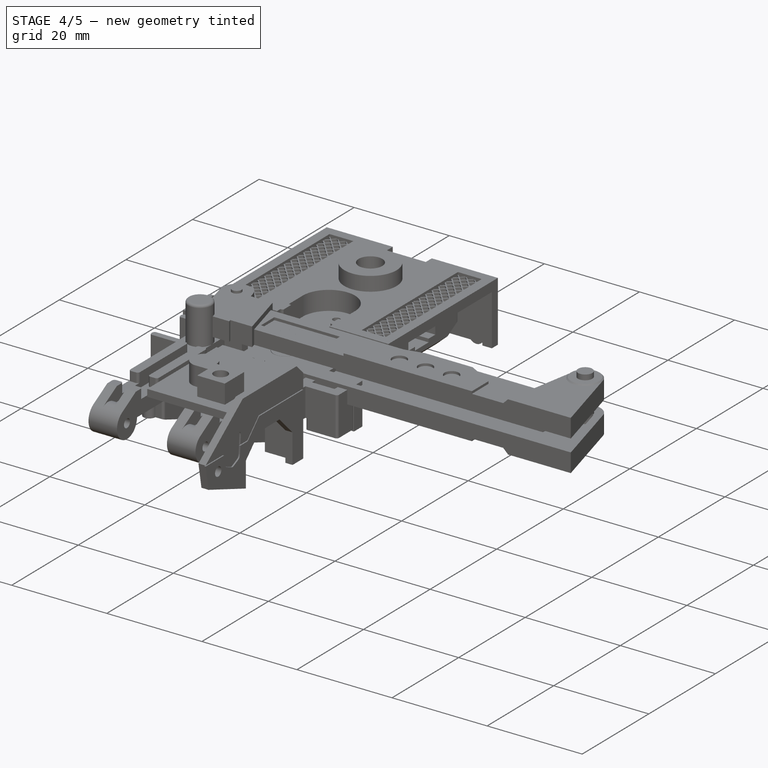
[diagram: stage 4 of 5 — iso view after this stage's code; geometry added in this stage tinted green]
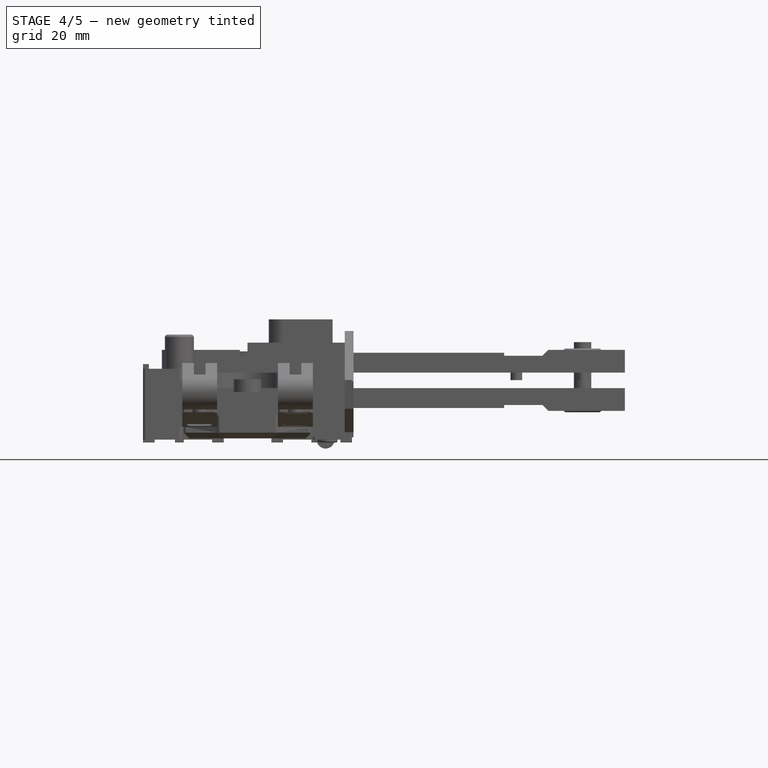
[diagram: stage 4 of 5 — front view after this stage's code; geometry added in this stage tinted green]
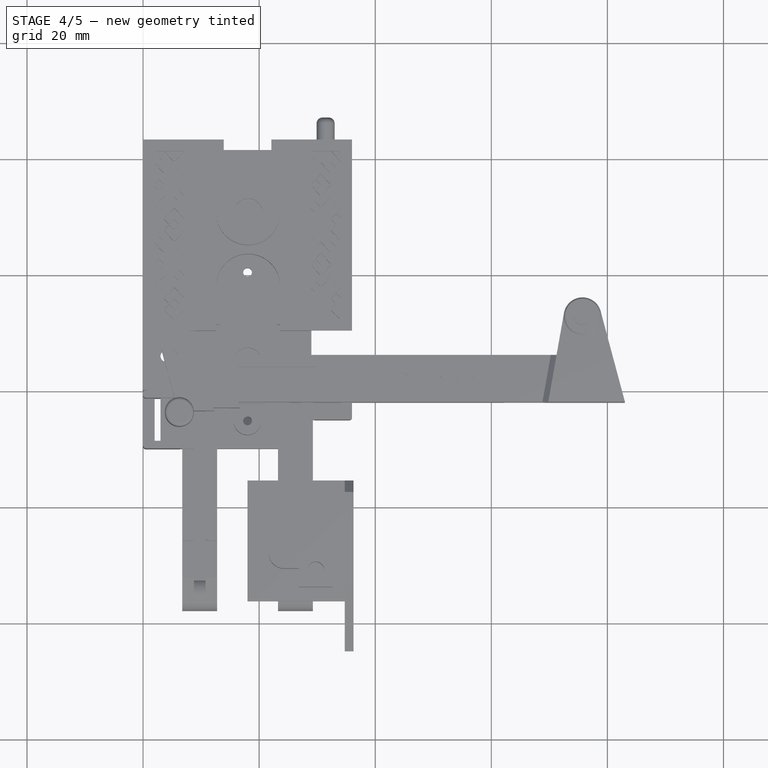
[diagram: stage 4 of 5 — top view after this stage's code; geometry added in this stage tinted green]
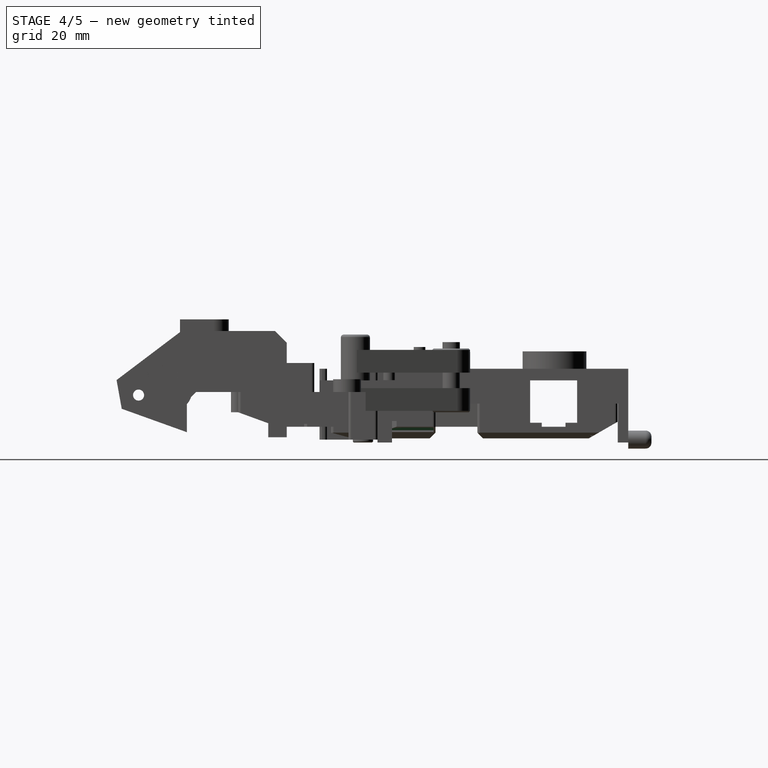
[diagram: stage 4 of 5 — right view after this stage's code; geometry added in this stage tinted green]
FEATURE [PartDesign::Body] Body001  label="Sticker1"
  AllowCompound = false
  Group = -> [Binder,Sketch,Pad,Sketch001,Pocket001,Sketch002,Pocket002,Sketch003,Pocket003]
  Origin = -> Origin001
  Tip = -> Pocket003
FEATURE [Sketcher::SketchObject] Sketch004
  ArcFitTolerance = 1e-06
  AttachmentOffset = pos=(22.7,-91.1,0) rot=(0,0,1;3.14159rad)
  AttachmentSupport = -> [Pocket]
  FullyConstrained = false
  MakeInternals = false
  MapMode = 5
  Placement = pos=(22.7,91.1,-10) rot=(0,-1,0;3.14159rad)
  sketch-geometry (55):
    g0-g23: Circle [constr] x24 (B-spline internal-alignment scaffolding for g24; pole/knot coordinates omitted)
    g24: BSplineCurve PolesCount=28 KnotsCount=26 Degree=3 IsPeriodic=0
    g25-g48: GeomPoint [constr] x24 (B-spline internal-alignment scaffolding for g24; pole/knot coordinates omitted)
    g49: Circle [constr] CenterX=7.96829 CenterY=-71.2558 CenterZ=0 NormalX=0 NormalY=0 NormalZ=1 AngleXU=0 Radius=1
    g50: GeomPoint [constr] X=8.18848 Y=-67.9665 Z=0
    g51: Circle [constr] CenterX=8.19567 CenterY=-67.6744 CenterZ=0 NormalX=0 NormalY=0 NormalZ=1 AngleXU=0 Radius=1
    g52: Circle [constr] CenterX=8.37992 CenterY=-65.8459 CenterZ=0 NormalX=0 NormalY=0 NormalZ=1 AngleXU=0 Radius=1
    g53: Circle [constr] CenterX=8.42259 CenterY=-65.5512 CenterZ=0 NormalX=0 NormalY=0 NormalZ=1 AngleXU=0 Radius=1
    g54: GeomPoint [constr] X=8.35632 Y=-66.1015 Z=0
  constraints (15):
    c: Weight(g0) = 1
    c: Equal(g0, g1-g23) x23
    c: InternalAlignment(g0-g23 -> g24) x24
    c: InternalAlignment(g25-g48 -> g24) x24
    c: Coincident(g23,g0)
    c: InternalAlignment(g49,g24)
    c: Equal(g49,g0)
    c: InternalAlignment(g50,g24)
    c: InternalAlignment(g51,g24)
    c: Equal(g51,g0)
    c: InternalAlignment(g52,g24)
    c: Equal(g52,g0)
    c: InternalAlignment(g53,g24)
    c: Equal(g53,g0)
    c: InternalAlignment(g54,g24)
FEATURE [PartDesign::Pocket] Pocket004
  BaseFeature = -> Pocket
  Direction = (0,0,1)
  Length = 0.3
  Length2 = 5
  Profile = -> Sketch004
  ReferenceAxis = -> Sketch004 [N_Axis]
  Refine = true
  Suppressed = false
  Type = 0
FEATURE [Image::ImagePlane] Sticker2  label="Sticker2_Pre"
  Placement = pos=(18.1,13.5,0) rot=(0,0,1;3.14159rad)
  XSize = 19.1191
  YSize = 6.45859
FEATURE [Sketcher::SketchObject] Sketch005
  ArcFitTolerance = 1e-06
  AttachmentSupport = -> [Pocket004]
  ExternalGeometry = -> [Pocket004]
  FullyConstrained = true
  MakeInternals = false
  MapMode = 5
  Placement = pos=(0,0,-8) rot=(1,0,0;3.14159rad)
  sketch-geometry (12):
    g0: LineSegment StartX=10.441 StartY=-10.7 StartZ=0 EndX=25.559 EndY=-10.7 EndZ=0
    g1: LineSegment StartX=26.4523 StartY=-11.4903 StartZ=0 EndX=27 EndY=-15.9513 EndZ=0
    g2: LineSegment StartX=26.603 StartY=-16.4 StartZ=0 EndX=9.39702 EndY=-16.4 EndZ=0
    g3: LineSegment StartX=9 StartY=-15.9513 StartZ=0 EndX=9.54773 EndY=-11.4903 EndZ=0
    g4: ArcOfCircle CenterX=10.441 CenterY=-11.6 CenterZ=0 NormalX=0 NormalY=0 NormalZ=1 AngleXU=0 Radius=0.9 StartAngle=1.5708 EndAngle=3.01942
    g5: GeomPoint [constr] X=9.64477 Y=-10.7 Z=0
    g6: ArcOfCircle CenterX=9.39702 CenterY=-16 CenterZ=0 NormalX=0 NormalY=0 NormalZ=1 AngleXU=0 Radius=0.4 StartAngle=3.01942 EndAngle=4.71239
    g7: GeomPoint [constr] X=8.9449 Y=-16.4 Z=0
    g8: ArcOfCircle CenterX=25.559 CenterY=-11.6 CenterZ=0 NormalX=0 NormalY=0 NormalZ=1 AngleXU=0 Radius=0.9 StartAngle=0.122173 EndAngle=1.5708
    g9: GeomPoint [constr] X=26.3552 Y=-10.7 Z=0
    g10: ArcOfCircle CenterX=26.603 CenterY=-16 CenterZ=0 NormalX=0 NormalY=0 NormalZ=1 AngleXU=0 Radius=0.4 StartAngle=4.71239 EndAngle=6.40536
    g11: GeomPoint [constr] X=27.0551 Y=-16.4 Z=0
  constraints (28):
    c: Horizontal(g0)
    c: Horizontal(g2)
    c: PointOnObject(g5,g0)
    c: PointOnObject(g5,g3)
    c: Tangent(g0,g4) = 1.5708
    c: Tangent(g3,g4) = 1.5708
    c: PointOnObject(g7,g2)
    c: PointOnObject(g7,g3)
    c: Tangent(g2,g6) = 1.5708
    c: Tangent(g3,g6) = 1.5708
    c: PointOnObject(g9,g0)
    c: PointOnObject(g9,g1)
    c: Tangent(g0,g8) = 1.5708
    c: Tangent(g1,g8) = 1.5708
    c: PointOnObject(g11,g1)
    c: PointOnObject(g11,g2)
    c: Tangent(g1,g10) = 1.5708
    c: Tangent(g2,g10) = 1.5708
    c: Radius(g8) = 0.9
    c: Radius(g4) = 0.9
    c: Radius(g6) = 0.4
    c: Radius(g10) = 0.4
    c: Angle(g3,g0) = 1.69297
    c: Angle(g0,g1) = 1.69297
    c: DistanceX(g1,g-3) = 0.4
    c: DistanceX(g-7,g3) = 0.4
    c: DistanceY(g-7,g2) = 0.8
    c: DistanceY(g0,g-7) = 0.7
FEATURE [PartDesign::Pocket] Pocket005
  BaseFeature = -> Pocket004
  Direction = (0,0,1)
  Length = 0.3
  Length2 = 5
  Profile = -> Sketch005
  ReferenceAxis = -> Sketch005 [N_Axis]
  Refine = true
  Suppressed = false
  Type = 0
FEATURE [PartDesign::Body] Body002  label="Sticker2"
  AllowCompound = false
  Group = -> [Binder001,Sketch006,Pad001,Sketch007,Pocket006]
  Origin = -> Origin002
  Tip = -> Pocket006
FEATURE [Image::ImagePlane] Sticker3  label="Sticker3_Pre"
  Placement = pos=(11.5,5,0) rot=(0,0,1;0rad)
  XSize = 5.18926
  YSize = 9.81053
FEATURE [Sketcher::SketchObject] Sketch008
  ArcFitTolerance = 1e-06
  AttachmentSupport = -> [Pocket005]
  ExternalGeometry = -> [Pocket005]
  FullyConstrained = true
  MakeInternals = false
  MapMode = 5
  Placement = pos=(-1.15109,-1.5e-15,-6.56121) rot=(0.996232,0,-0.086727;3.14159rad)
  sketch-geometry (10):
    g0: LineSegment StartX=13.5134 StartY=-0.9 StartZ=0 EndX=13.5134 EndY=-9.65 EndZ=0
    g1: LineSegment StartX=13.5134 StartY=-9.65 StartZ=0 EndX=9.67634 EndY=-9.65 EndZ=0
    g2: LineSegment StartX=9.07634 StartY=-9.05 StartZ=0 EndX=9.07634 EndY=-4.24282 EndZ=0
    g3: LineSegment StartX=10.0877 StartY=-2.50427 StartZ=0 EndX=13.2145 EndY=-0.726145 EndZ=0
    g4: ArcOfCircle CenterX=9.67634 CenterY=-9.05 CenterZ=0 NormalX=0 NormalY=0 NormalZ=1 AngleXU=0 Radius=0.6 StartAngle=3.14159 EndAngle=4.71239
    g5: GeomPoint [constr] X=9.07634 Y=-9.65 Z=0
    g6: ArcOfCircle CenterX=11.0763 CenterY=-4.24282 CenterZ=0 NormalX=0 NormalY=0 NormalZ=1 AngleXU=0 Radius=2 StartAngle=2.08786 EndAngle=3.14159
    g7: GeomPoint [constr] X=9.07634 Y=-3.07939 Z=0
    g8: ArcOfCircle CenterX=13.3134 CenterY=-0.9 CenterZ=0 NormalX=0 NormalY=0 NormalZ=1 AngleXU=0 Radius=0.2 StartAngle=0 EndAngle=2.08786
    g9: GeomPoint [constr] X=13.5134 Y=-0.55619 Z=0
  constraints (24):
    c: Vertical(g0)
    c: Coincident(g1,g0)
    c: Horizontal(g1)
    c: Vertical(g2)
    c: PointOnObject(g5,g1)
    c: PointOnObject(g5,g2)
    c: Tangent(g1,g4) = 1.5708
    c: Tangent(g2,g4) = 1.5708
    c: PointOnObject(g7,g2)
    c: PointOnObject(g7,g3)
    c: Tangent(g2,g6) = 1.5708
    c: Tangent(g3,g6) = 1.5708
    c: PointOnObject(g9,g0)
    c: PointOnObject(g9,g3)
    c: Tangent(g0,g8) = 1.5708
    c: Tangent(g3,g8) = 1.5708
    c: Parallel(g-4,g3)
    c: Radius(g8) = 0.2
    c: Radius(g6) = 2
    c: Radius(g4) = 0.6
    c: DistanceX(g0,g-6) = 0.6
    c: DistanceY(g-6,g0) = 0.35
    c: DistanceX(g-5,g2) = 0.75
    c: DistanceY(g0,g-4) = 0.9
FEATURE [PartDesign::Pocket] Pocket007
  BaseFeature = -> Pocket005
  Direction = (0.172799,0,0.984957)
  Length = 0.3
  Length2 = 5
  Profile = -> Sketch008
  ReferenceAxis = -> Sketch008 [N_Axis]
  Refine = true
  Suppressed = false
  Type = 0
FEATURE [Sketcher::SketchObject] Sketch009
  ArcFitTolerance = 1e-06
  AttachmentSupport = -> [Pocket007]
  ExternalGeometry = -> [Pocket007]
  FullyConstrained = false
  MakeInternals = false
  MapMode = 5
  Placement = pos=(2.22604,-2.8e-15,-12.6884) rot=(0.996232,0,0.086727;3.14159rad)
  sketch-geometry (10):
    g0: LineSegment StartX=21.9451 StartY=-0.9 StartZ=0 EndX=21.9451 EndY=-9.65 EndZ=0
    g1: LineSegment StartX=21.9451 StartY=-9.65 StartZ=0 EndX=25.7821 EndY=-9.65 EndZ=0
    g2: LineSegment StartX=26.3821 StartY=-9.05 StartZ=0 EndX=26.3821 EndY=-4.29773 EndZ=0
    g3: LineSegment StartX=25.3935 StartY=-2.57231 StartZ=0 EndX=22.2462 EndY=-0.727457 EndZ=0
    g4: ArcOfCircle CenterX=22.1451 CenterY=-0.9 CenterZ=0 NormalX=0 NormalY=0 NormalZ=1 AngleXU=0 Radius=0.2 StartAngle=1.04061 EndAngle=3.14159
    g5: GeomPoint [constr] X=21.9451 Y=-0.550939 Z=0
    g6: ArcOfCircle CenterX=24.3821 CenterY=-4.29773 CenterZ=0 NormalX=0 NormalY=0 NormalZ=1 AngleXU=0 Radius=2 StartAngle=0 EndAngle=1.04061
    g7: GeomPoint [constr] X=26.3821 Y=-3.1518 Z=0
    g8: ArcOfCircle CenterX=25.7821 CenterY=-9.05 CenterZ=0 NormalX=0 NormalY=0 NormalZ=1 AngleXU=0 Radius=0.6 StartAngle=4.71239 EndAngle=6.28319
    g9: GeomPoint [constr] X=26.3821 Y=-9.65 Z=0
  constraints (23):
    c: Vertical(g0)
    c: Coincident(g1,g0)
    c: Horizontal(g1)
    c: Vertical(g2)
    c: PointOnObject(g5,g0)
    c: PointOnObject(g5,g3)
    c: Tangent(g0,g4) = -1.5708
    c: Tangent(g3,g4) = -1.5708
    c: PointOnObject(g7,g2)
    c: PointOnObject(g7,g3)
    c: Tangent(g2,g6) = -1.5708
    c: Tangent(g3,g6) = -1.5708
    c: PointOnObject(g9,g1)
    c: PointOnObject(g9,g2)
    c: Tangent(g1,g8) = -1.5708
    c: Tangent(g2,g8) = -1.5708
    c: Radius(g4) = 0.2
    c: Radius(g6) = 2
    c: Radius(g8) = 0.6
    c: DistanceX(g-4,g0) = 0.6
    c: DistanceY(g-4,g0) = 0.35
    c: DistanceX(g2,g-5) = 0.75
    c: DistanceY(g0,g-6) = 0.9
FEATURE [PartDesign::Pocket] Pocket008
  BaseFeature = -> Pocket007
  Direction = (-0.172799,0,0.984957)
  Length = 0.3
  Length2 = 5
  Profile = -> Sketch009
  ReferenceAxis = -> Sketch009 [N_Axis]
  Refine = true
  Suppressed = false
  Type = 0
FEATURE [PartDesign::SubShapeBinder] Binder002
  BindCopyOnChange = 0
  BindMode = 2
  ClaimChildren = false
  Context = -> Body003 [Binder002.]
  Fuse = false
  MakeFace = true
  OffsetFill = false
  OffsetIntersection = false
  OffsetJoinType = 0
  OffsetOpenResult = false
  PartialLoad = false
  Refine = true
  Relative = true
  _Version = 2
FEATURE [Sketcher::SketchObject] Sketch010
  ArcFitTolerance = 1e-06
  AttachmentSupport = -> [Binder002]
  ExternalGeometry = -> [Binder002]
  FullyConstrained = true
  MakeInternals = false
  MapMode = 5
  Placement = pos=(-1.09925,0,-6.26573) rot=(0.996232,0,-0.086727;3.14159rad)
  sketch-geometry (11):
    g0: LineSegment StartX=10.1677 StartY=-2.55081 StartZ=0 EndX=13.1345 EndY=-0.863669 EndZ=0
    g1: LineSegment StartX=13.4334 StartY=-1.03752 StartZ=0 EndX=13.4334 EndY=-9.57 EndZ=0
    g2: LineSegment StartX=13.4334 StartY=-9.57 StartZ=0 EndX=9.75634 EndY=-9.57 EndZ=0
    g3: LineSegment StartX=9.15634 StartY=-8.97 StartZ=0 EndX=9.15634 EndY=-4.28936 EndZ=0
    g4: ArcOfCircle CenterX=11.1563 CenterY=-4.28936 CenterZ=0 NormalX=0 NormalY=0 NormalZ=1 AngleXU=0 Radius=2 StartAngle=2.08786 EndAngle=3.14159
    g5: GeomPoint [constr] X=9.15634 Y=-3.12593 Z=0
    g6: ArcOfCircle CenterX=9.75634 CenterY=-8.97 CenterZ=0 NormalX=0 NormalY=0 NormalZ=1 AngleXU=0 Radius=0.6 StartAngle=3.14159 EndAngle=4.71239
    g7: GeomPoint [constr] X=9.15634 Y=-9.57 Z=0
    g8: ArcOfCircle CenterX=13.2334 CenterY=-1.03752 CenterZ=0 NormalX=0 NormalY=0 NormalZ=1 AngleXU=0 Radius=0.2 StartAngle=0 EndAngle=2.08786
    g9: GeomPoint [constr] X=13.4334 Y=-0.693714 Z=0
    g10: LineSegment [constr] StartX=13.0107 StartY=-0.934098 StartZ=0 EndX=12.9711 EndY=-0.864556 EndZ=0
  constraints (29):
    c: Vertical(g1)
    c: Coincident(g2,g1)
    c: Horizontal(g2)
    c: Vertical(g3)
    c: PointOnObject(g5,g0)
    c: PointOnObject(g5,g3)
    c: Tangent(g0,g4) = 1.5708
    c: Tangent(g3,g4) = 1.5708
    c: PointOnObject(g7,g2)
    c: PointOnObject(g7,g3)
    c: Tangent(g2,g6) = 1.5708
    c: Tangent(g3,g6) = 1.5708
    c: PointOnObject(g9,g0)
    c: PointOnObject(g9,g1)
    c: Tangent(g0,g8) = 1.5708
    c: Tangent(g1,g8) = 1.5708
    c: Radius(g8) = 0.2
    c: Radius(g4) = 2
    c: Radius(g6) = 0.6
    c: Radius(g-8) = 0.6
    c: DistanceX(g1,g-7) = 0.08
    c: DistanceY(g-7,g1) = 0.08
    c: DistanceX(g-8,g3) = 0.08
    c: Parallel(g0,g-5)
    c: PointOnObject(g10,g0)
    c: PointOnObject(g10,g-5)
    c: Perpendicular(g10,g-5)
    c: Distance(g10) = 0.08
    c: Distance(g10,g-9) = 0.28
FEATURE [PartDesign::Pad] Pad002
  Direction = (-0.172799,0,-0.984957)
  Length = 0.3
  Length2 = 10
  Profile = -> Sketch010
  ReferenceAxis = -> Sketch010 [N_Axis]
  Refine = true
  Suppressed = false
  Type = 0
FEATURE [PartDesign::Body] Body003  label="Sticker3"
  AllowCompound = false
  Group = -> [Binder002,Sketch010,Pad002,Sketch011,Pocket009]
  Origin = -> Origin003
  Tip = -> Pocket009
FEATURE [Image::ImagePlane] Sticker4  label="Sticker4_Pre"
  Placement = pos=(18,1.9,0) rot=(0,0,1;0rad)
  XSize = 4.67604
  YSize = 10.0183
FEATURE [Sketcher::SketchObject] Sketch012
  ArcFitTolerance = 1e-06
  AttachmentSupport = -> [Pocket008]
  ExternalGeometry = -> [Pocket008]
  FullyConstrained = true
  MakeInternals = false
  MapMode = 5
  Placement = pos=(0,0,-9) rot=(1,0,0;3.14159rad)
  sketch-geometry (12):
    g0: LineSegment StartX=15.85 StartY=2.3 StartZ=0 EndX=15.85 EndY=-6 EndZ=0
    g1: LineSegment StartX=16.45 StartY=-6.6 StartZ=0 EndX=19.55 EndY=-6.6 EndZ=0
    g2: LineSegment StartX=20.15 StartY=-6 StartZ=0 EndX=20.15 EndY=2.3 EndZ=0
    g3: LineSegment StartX=19.55 StartY=2.9 StartZ=0 EndX=16.45 EndY=2.9 EndZ=0
    g4: ArcOfCircle CenterX=16.45 CenterY=2.3 CenterZ=0 NormalX=0 NormalY=0 NormalZ=1 AngleXU=0 Radius=0.6 StartAngle=1.5708 EndAngle=3.14159
    g5: GeomPoint [constr] X=15.85 Y=2.9 Z=0
    g6: ArcOfCircle CenterX=19.55 CenterY=2.3 CenterZ=0 NormalX=0 NormalY=0 NormalZ=1 AngleXU=0 Radius=0.6 StartAngle=0 EndAngle=1.5708
    g7: GeomPoint [constr] X=20.15 Y=2.9 Z=0
    g8: ArcOfCircle CenterX=19.55 CenterY=-6 CenterZ=0 NormalX=0 NormalY=0 NormalZ=1 AngleXU=0 Radius=0.6 StartAngle=4.71239 EndAngle=6.28319
    g9: GeomPoint [constr] X=20.15 Y=-6.6 Z=0
    g10: ArcOfCircle CenterX=16.45 CenterY=-6 CenterZ=0 NormalX=0 NormalY=0 NormalZ=1 AngleXU=0 Radius=0.6 StartAngle=3.14159 EndAngle=4.71239
    g11: GeomPoint [constr] X=15.85 Y=-6.6 Z=0
  constraints (28):
    c: Vertical(g0)
    c: Vertical(g2)
    c: Horizontal(g1)
    c: Horizontal(g3)
    c: PointOnObject(g5,g0)
    c: PointOnObject(g5,g3)
    c: Tangent(g0,g4) = -1.5708
    c: Tangent(g3,g4) = -1.5708
    c: PointOnObject(g7,g2)
    c: PointOnObject(g7,g3)
    c: Tangent(g2,g6) = -1.5708
    c: Tangent(g3,g6) = -1.5708
    c: PointOnObject(g9,g1)
    c: PointOnObject(g9,g2)
    c: Tangent(g1,g8) = -1.5708
    c: Tangent(g2,g8) = -1.5708
    c: PointOnObject(g11,g0)
    c: PointOnObject(g11,g1)
    c: Tangent(g0,g10) = -1.5708
    c: Tangent(g1,g10) = -1.5708
    c: Radius(g10) = 0.6
    c: Radius(g8) = 0.6
    c: Radius(g4) = 0.6
    c: Radius(g6) = 0.6
    c: DistanceX(g2,g-4) = 1.1
    c: DistanceX(g-6,g0) = 1.1
    c: DistanceY(g3,g-6) = 0.4
    c: DistanceY(g-6,g1) = 0.4
FEATURE [PartDesign::Pocket] Pocket010
  BaseFeature = -> Pocket008
  Direction = (0,0,1)
  Length = 0.3
  Length2 = 5
  Profile = -> Sketch012
  ReferenceAxis = -> Sketch012 [N_Axis]
  Refine = true
  Suppressed = false
  Type = 0
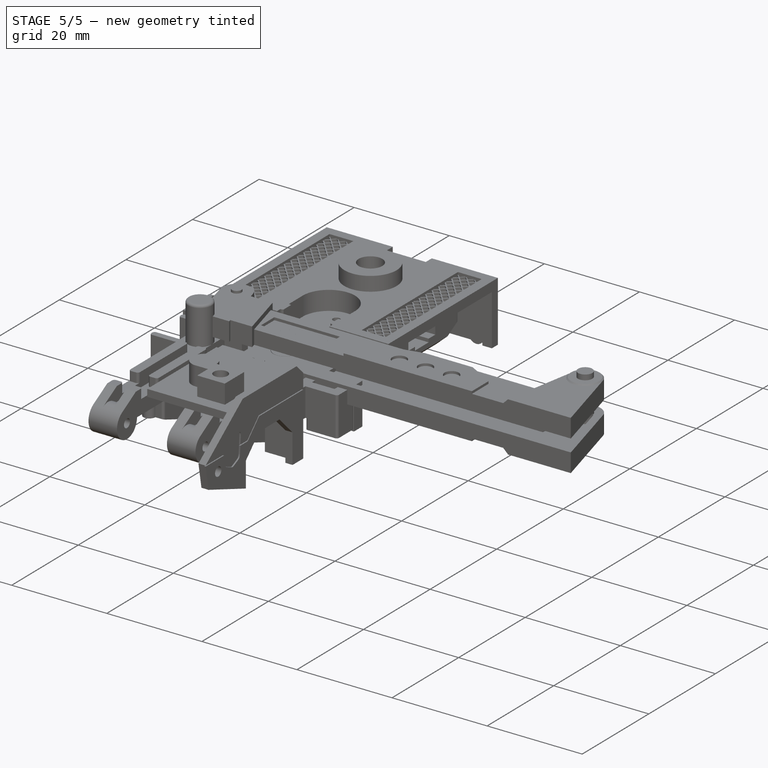
[diagram: stage 5 of 5 — iso view after this stage's code; geometry added in this stage tinted green]
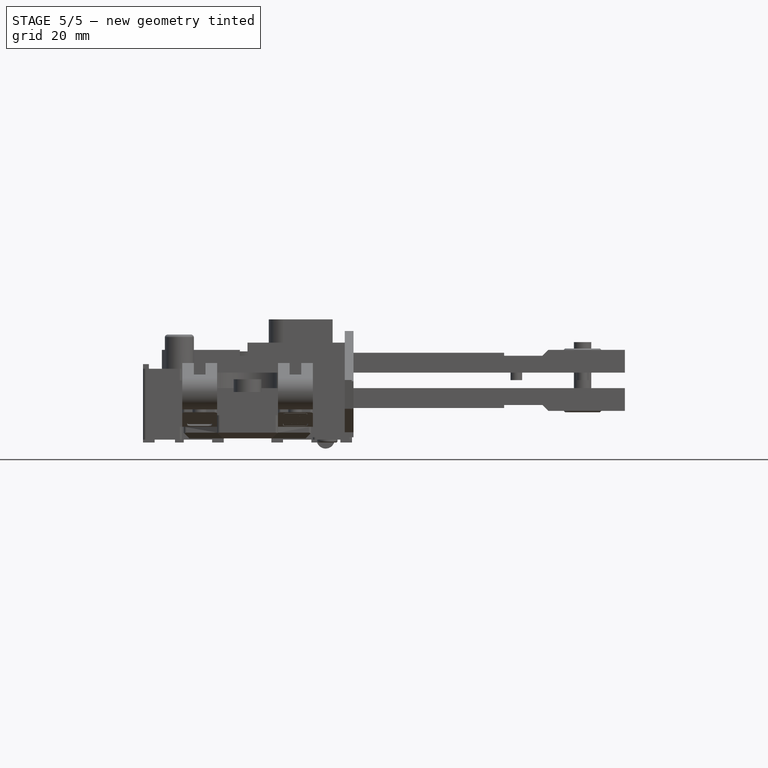
[diagram: stage 5 of 5 — front view after this stage's code; geometry added in this stage tinted green]
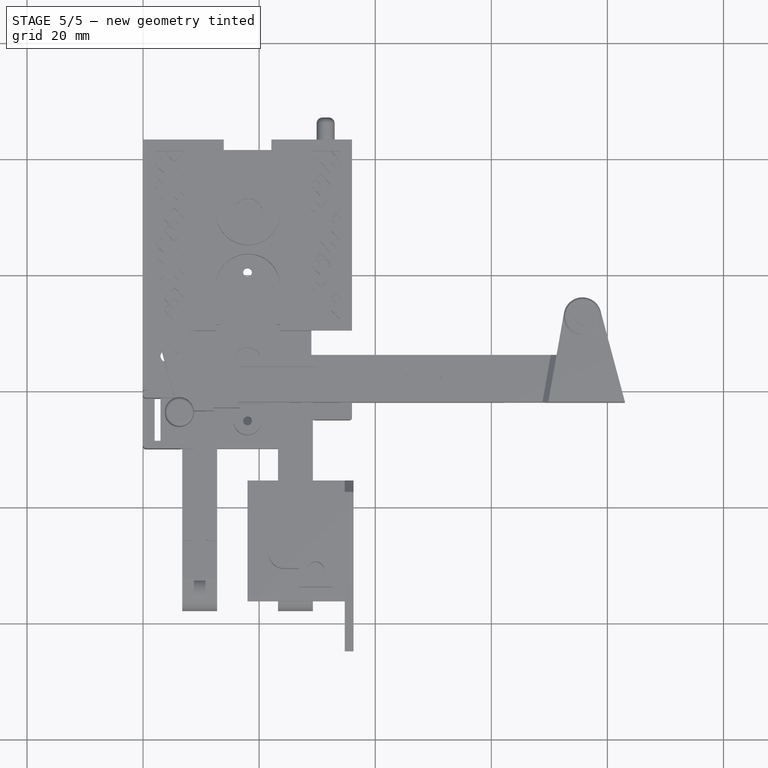
[diagram: stage 5 of 5 — top view after this stage's code; geometry added in this stage tinted green]
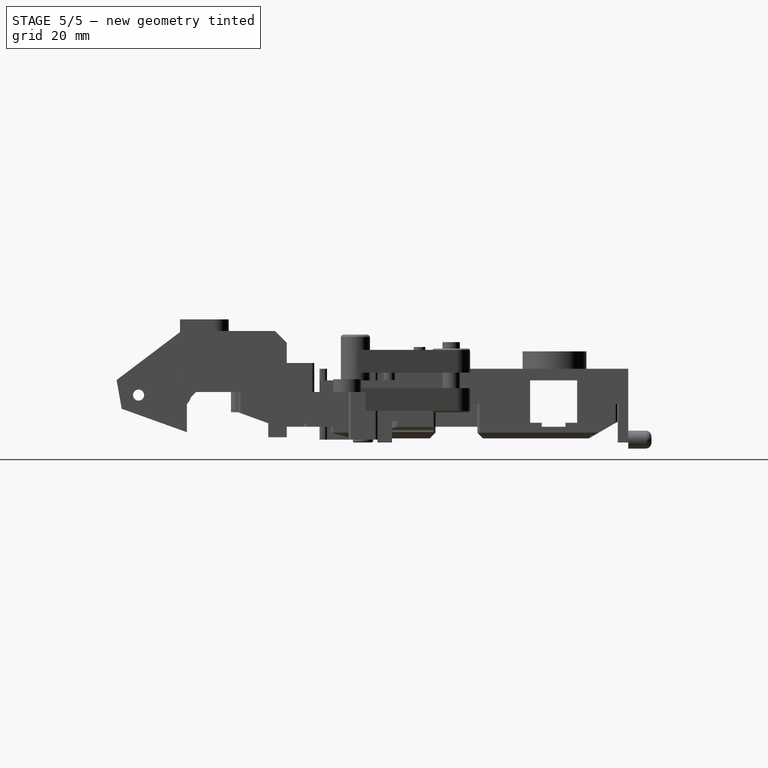
[diagram: stage 5 of 5 — right view after this stage's code; geometry added in this stage tinted green]
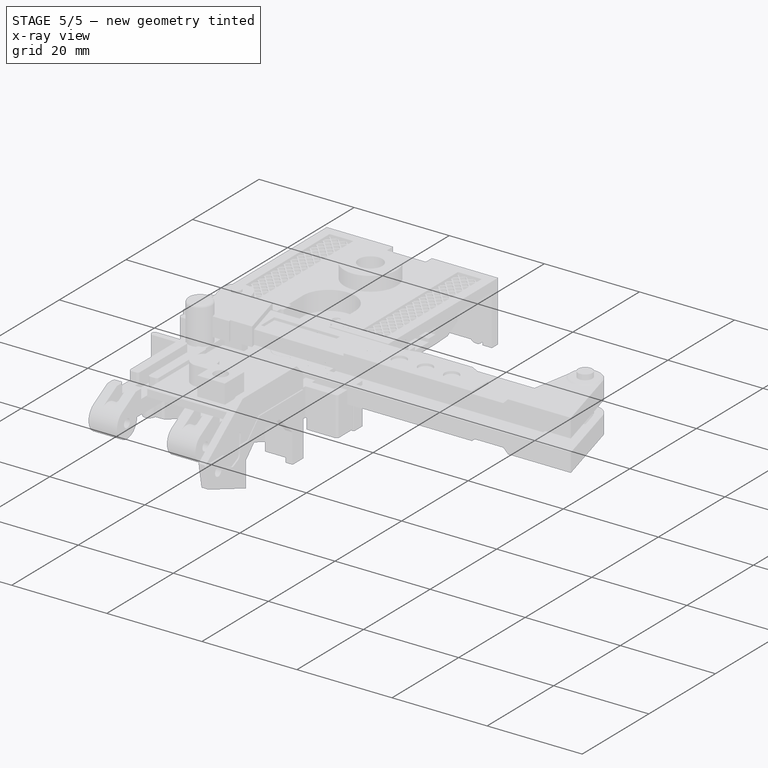
[diagram: stage 5 of 5 — x-ray composite at the iso view; earlier geometry ghosted, this stage's added geometry solid]
FEATURE [Image::ImagePlane] Sticker1  label="Sticker1_Pre"
  Placement = pos=(18,28.95,0) rot=(0,0,1;0rad)
  XSize = 18.5735
  YSize = 11.5298
FEATURE [PartDesign::SubShapeBinder] Binder
  BindCopyOnChange = 0
  BindMode = 2
  ClaimChildren = false
  Context = -> Body001 [Binder.]
  Fuse = false
  MakeFace = true
  OffsetFill = false
  OffsetIntersection = false
  OffsetJoinType = 0
  OffsetOpenResult = false
  PartialLoad = false
  Refine = true
  Relative = true
  _Version = 2
FEATURE [Sketcher::SketchObject] Sketch
  ArcFitTolerance = 1e-06
  AttachmentSupport = -> [Binder]
  ExternalGeometry = -> [Binder]
  FullyConstrained = true
  MakeInternals = false
  MapMode = 5
  Placement = pos=(0,0,-9.4) rot=(1,0,0;3.14159rad)
  sketch-geometry (4):
    g0: LineSegment StartX=8.58 StartY=-23.48 StartZ=0 EndX=8.58 EndY=-34.32 EndZ=0
    g1: LineSegment StartX=8.58 StartY=-34.32 StartZ=0 EndX=27.42 EndY=-34.32 EndZ=0
    g2: LineSegment StartX=27.42 StartY=-34.32 StartZ=0 EndX=27.42 EndY=-23.48 EndZ=0
    g3: LineSegment StartX=27.42 StartY=-23.48 StartZ=0 EndX=8.58 EndY=-23.48 EndZ=0
  constraints (12):
    c: Coincident(g0,g1)
    c: Coincident(g1,g2)
    c: Coincident(g2,g3)
    c: Coincident(g3,g0)
    c: Vertical(g0)
    c: Vertical(g2)
    c: Horizontal(g1)
    c: Horizontal(g3)
    c: DistanceY(g0,g-4) = 0.08
    c: DistanceY(g-5,g0) = 0.08
    c: DistanceX(g-5,g0) = 0.08
    c: DistanceX(g1,g-6) = 0.08
FEATURE [PartDesign::Pad] Pad
  Direction = (0,0,-1)
  Length = 0.3
  Length2 = 10
  Profile = -> Sketch
  ReferenceAxis = -> Sketch [N_Axis]
  Refine = true
  Suppressed = false
  Type = 0
FEATURE [Sketcher::SketchObject] Sketch001
  ArcFitTolerance = 1e-06
  AttachmentSupport = -> [Pad]
  ExternalGeometry = -> [Pad]
  FullyConstrained = true
  MakeInternals = false
  MapMode = 5
  Placement = pos=(0,0,-9.7) rot=(1,0,0;3.14159rad)
  sketch-geometry (12):
    g0: LineSegment StartX=8.98 StartY=-24.58 StartZ=0 EndX=8.98 EndY=-33.22 EndZ=0
    g1: LineSegment StartX=9.68 StartY=-33.92 StartZ=0 EndX=26.32 EndY=-33.92 EndZ=0
    g2: LineSegment StartX=27.02 StartY=-33.22 StartZ=0 EndX=27.02 EndY=-24.58 EndZ=0
    g3: LineSegment StartX=26.32 StartY=-23.88 StartZ=0 EndX=9.68 EndY=-23.88 EndZ=0
    g4: ArcOfCircle CenterX=26.32 CenterY=-24.58 CenterZ=0 NormalX=0 NormalY=0 NormalZ=1 AngleXU=0 Radius=0.7 StartAngle=-9e-16 EndAngle=1.5708
    g5: GeomPoint [constr] X=27.02 Y=-23.88 Z=0
    g6: ArcOfCircle CenterX=26.32 CenterY=-33.22 CenterZ=0 NormalX=0 NormalY=0 NormalZ=1 AngleXU=0 Radius=0.7 StartAngle=4.71239 EndAngle=6.28319
    g7: GeomPoint [constr] X=27.02 Y=-33.92 Z=0
    g8: ArcOfCircle CenterX=9.68 CenterY=-33.22 CenterZ=0 NormalX=0 NormalY=0 NormalZ=1 AngleXU=0 Radius=0.7 StartAngle=3.14159 EndAngle=4.71239
    g9: GeomPoint [constr] X=8.98 Y=-33.92 Z=0
    g10: ArcOfCircle CenterX=9.68 CenterY=-24.58 CenterZ=0 NormalX=0 NormalY=0 NormalZ=1 AngleXU=0 Radius=0.7 StartAngle=1.5708 EndAngle=3.14159
    g11: GeomPoint [constr] X=8.98 Y=-23.88 Z=0
  constraints (28):
    c: Vertical(g0)
    c: Vertical(g2)
    c: Horizontal(g1)
    c: Horizontal(g3)
    c: PointOnObject(g5,g2)
    c: PointOnObject(g5,g3)
    c: Tangent(g2,g4) = -1.5708
    c: Tangent(g3,g4) = -1.5708
    c: PointOnObject(g7,g1)
    c: PointOnObject(g7,g2)
    c: Tangent(g1,g6) = -1.5708
    c: Tangent(g2,g6) = -1.5708
    c: PointOnObject(g9,g0)
    c: PointOnObject(g9,g1)
    c: Tangent(g0,g8) = -1.5708
    c: Tangent(g1,g8) = -1.5708
    c: PointOnObject(g11,g0)
    c: PointOnObject(g11,g3)
    c: Tangent(g0,g10) = -1.5708
    c: Tangent(g3,g10) = -1.5708
    c: Radius(g10) = 0.7
    c: Radius(g8) = 0.7
    c: Radius(g6) = 0.7
    c: Radius(g4) = 0.7
    c: DistanceX(g2,g-4) = 0.4
    c: DistanceX(g-4,g0) = 0.4
    c: DistanceY(g-5,g1) = 0.4
    c: DistanceY(g3,g-4) = 0.4
FEATURE [PartDesign::Pocket] Pocket001
  BaseFeature = -> Pad
  Direction = (0,0,1)
  Length = 0.001
  Length2 = 5
  Profile = -> Sketch001
  ReferenceAxis = -> Sketch001 [N_Axis]
  Refine = true
  Suppressed = false
  Type = 0
FEATURE [Sketcher::SketchObject] Sketch002
  ArcFitTolerance = 1e-06
  AttachmentSupport = -> [Pocket001]
  ExternalGeometry = -> [Pocket001]
  FullyConstrained = false
  MakeInternals = false
  MapMode = 5
  Placement = pos=(0,0,-9.699) rot=(1,0,0;3.14159rad)
  sketch-geometry (70):
    g0: LineSegment StartX=11.9243 StartY=-24.5092 StartZ=0 EndX=11.9243 EndY=-26.4411 EndZ=0
    g1: LineSegment StartX=11.9243 StartY=-26.4411 StartZ=0 EndX=13.4123 EndY=-26.4411 EndZ=0
    g2: LineSegment StartX=13.4123 StartY=-26.4411 StartZ=0 EndX=13.4123 EndY=-24.5092 EndZ=0
    g3: LineSegment StartX=13.4123 StartY=-24.5092 StartZ=0 EndX=11.9243 EndY=-24.5092 EndZ=0
    g4: LineSegment StartX=13.8857 StartY=-24.5092 StartZ=0 EndX=13.8857 EndY=-26.4411 EndZ=0
    g5: LineSegment StartX=13.8857 StartY=-26.4411 StartZ=0 EndX=15.524 EndY=-26.4411 EndZ=0
    g6: LineSegment StartX=15.524 StartY=-26.4411 StartZ=0 EndX=15.524 EndY=-24.5092 EndZ=0
    g7: LineSegment StartX=15.524 StartY=-24.5092 StartZ=0 EndX=13.8857 EndY=-24.5092 EndZ=0
    g8: LineSegment StartX=15.9674 StartY=-24.5092 StartZ=0 EndX=15.9674 EndY=-26.4411 EndZ=0
    g9: LineSegment StartX=15.9674 StartY=-26.4411 StartZ=0 EndX=17.8687 EndY=-26.4411 EndZ=0
    g10: LineSegment StartX=17.8687 StartY=-26.4411 StartZ=0 EndX=17.8687 EndY=-24.5092 EndZ=0
    g11: LineSegment StartX=17.8687 StartY=-24.5092 StartZ=0 EndX=15.9674 EndY=-24.5092 EndZ=0
    g12: LineSegment StartX=18.5118 StartY=-24.5092 StartZ=0 EndX=18.5118 EndY=-26.4411 EndZ=0
    g13: LineSegment StartX=18.5118 StartY=-26.4411 StartZ=0 EndX=25.2303 EndY=-26.4411 EndZ=0
    g14: LineSegment StartX=25.2303 StartY=-26.4411 StartZ=0 EndX=25.2303 EndY=-24.5092 EndZ=0
    g15: LineSegment StartX=25.2303 StartY=-24.5092 StartZ=0 EndX=18.5118 EndY=-24.5092 EndZ=0
    g16: LineSegment [constr] StartX=18.5118 StartY=-24.5092 StartZ=0 EndX=17.8687 EndY=-24.5092 EndZ=0
    g17: LineSegment [constr] StartX=15.9674 StartY=-24.5092 StartZ=0 EndX=15.524 EndY=-24.5092 EndZ=0
    g18: LineSegment [constr] StartX=13.8857 StartY=-24.5092 StartZ=0 EndX=13.4123 EndY=-24.5092 EndZ=0
    g19: LineSegment [constr] StartX=13.4123 StartY=-26.4411 StartZ=0 EndX=13.8857 EndY=-26.4411 EndZ=0
    g20: LineSegment [constr] StartX=15.524 StartY=-26.4411 StartZ=0 EndX=15.9674 EndY=-26.4411 EndZ=0
    g21: LineSegment [constr] StartX=17.8687 StartY=-26.4411 StartZ=0 EndX=18.5118 EndY=-26.4411 EndZ=0
    g22: LineSegment StartX=9.23 StartY=-28.921 StartZ=0 EndX=9.23 EndY=-29.5928 EndZ=0
    g23: LineSegment StartX=9.23 StartY=-29.5928 StartZ=0 EndX=9.9457 EndY=-29.5928 EndZ=0
    g24: LineSegment StartX=9.9457 StartY=-29.5928 StartZ=0 EndX=9.9457 EndY=-28.921 EndZ=0
    g25: LineSegment StartX=9.9457 StartY=-28.921 StartZ=0 EndX=9.23 EndY=-28.921 EndZ=0
    g26: LineSegment StartX=9.23 StartY=-30.1759 StartZ=0 EndX=9.23 EndY=-30.8773 EndZ=0
    g27: LineSegment StartX=9.23 StartY=-30.8773 StartZ=0 EndX=9.9457 EndY=-30.8773 EndZ=0
    g28: LineSegment StartX=9.9457 StartY=-30.8773 StartZ=0 EndX=9.9457 EndY=-30.1759 EndZ=0
    g29: LineSegment StartX=9.9457 StartY=-30.1759 StartZ=0 EndX=9.23 EndY=-30.1759 EndZ=0
    g30: LineSegment StartX=9.23 StartY=-31.5068 StartZ=0 EndX=9.23 EndY=-32.1897 EndZ=0
    g31: LineSegment StartX=9.23 StartY=-32.1897 StartZ=0 EndX=9.9457 EndY=-32.1897 EndZ=0
    g32: LineSegment StartX=9.9457 StartY=-32.1897 StartZ=0 EndX=9.9457 EndY=-31.5068 EndZ=0
    g33: LineSegment StartX=9.9457 StartY=-31.5068 StartZ=0 EndX=9.23 EndY=-31.5068 EndZ=0
    g34: LineSegment [constr] StartX=9.23 StartY=-30.8773 StartZ=0 EndX=9.23 EndY=-31.5068 EndZ=0
    g35: LineSegment [constr] StartX=9.9457 StartY=-30.8773 StartZ=0 EndX=9.9457 EndY=-31.5068 EndZ=0
    g36: LineSegment [constr] StartX=9.23 StartY=-30.1759 StartZ=0 EndX=9.23 EndY=-29.5928 EndZ=0
    g37: LineSegment [constr] StartX=9.9457 StartY=-29.5928 StartZ=0 EndX=9.9457 EndY=-30.1759 EndZ=0
    g38: LineSegment StartX=25.4781 StartY=-28.8483 StartZ=0 EndX=25.4781 EndY=-29.5867 EndZ=0
    g39: LineSegment StartX=25.4781 StartY=-29.5867 StartZ=0 EndX=26.77 EndY=-29.5867 EndZ=0
    g40: LineSegment StartX=26.77 StartY=-29.5867 StartZ=0 EndX=26.77 EndY=-28.8483 EndZ=0
    g41: LineSegment StartX=26.77 StartY=-28.8483 StartZ=0 EndX=25.4781 EndY=-28.8483 EndZ=0
    g42: LineSegment StartX=25.4781 StartY=-30.1281 StartZ=0 EndX=25.4781 EndY=-30.7762 EndZ=0
    g43: LineSegment StartX=25.4781 StartY=-30.7762 StartZ=0 EndX=26.77 EndY=-30.7762 EndZ=0
    g44: LineSegment StartX=26.77 StartY=-30.7762 StartZ=0 EndX=26.77 EndY=-30.1281 EndZ=0
    g45: LineSegment StartX=26.77 StartY=-30.1281 StartZ=0 EndX=25.4781 EndY=-30.1281 EndZ=0
    g46: LineSegment StartX=25.4781 StartY=-31.4599 StartZ=0 EndX=25.4781 EndY=-32.1982 EndZ=0
    g47: LineSegment StartX=25.4781 StartY=-32.1982 StartZ=0 EndX=26.77 EndY=-32.1982 EndZ=0
    g48: LineSegment StartX=26.77 StartY=-32.1982 StartZ=0 EndX=26.77 EndY=-31.4599 EndZ=0
    g49: LineSegment StartX=26.77 StartY=-31.4599 StartZ=0 EndX=25.4781 EndY=-31.4599 EndZ=0
    g50: LineSegment [constr] StartX=25.4781 StartY=-29.5867 StartZ=0 EndX=25.4781 EndY=-30.1281 EndZ=0
    g51: LineSegment [constr] StartX=25.4781 StartY=-30.7762 StartZ=0 EndX=25.4781 EndY=-31.4599 EndZ=0
    g52: LineSegment [constr] StartX=26.77 StartY=-29.5867 StartZ=0 EndX=26.77 EndY=-30.1281 EndZ=0
    g53: LineSegment [constr] StartX=26.77 StartY=-30.7762 StartZ=0 EndX=26.77 EndY=-31.4599 EndZ=0
    g54: LineSegment StartX=10.1957 StartY=-28.0846 StartZ=0 EndX=10.1957 EndY=-32.7805 EndZ=0
    g55: LineSegment StartX=10.1957 StartY=-32.7805 StartZ=0 EndX=11.1565 EndY=-33.5341 EndZ=0
    g56: LineSegment StartX=11.1565 StartY=-33.5341 StartZ=0 EndX=24.0309 EndY=-33.5341 EndZ=0
    g57: LineSegment StartX=24.0309 StartY=-33.5341 StartZ=0 EndX=25.2281 EndY=-32.3974 EndZ=0
    g58: LineSegment StartX=25.2281 StartY=-32.3974 StartZ=0 EndX=25.2281 EndY=-27.9024 EndZ=0
    g59: LineSegment StartX=25.2281 StartY=-27.9024 StartZ=0 EndX=23.9145 EndY=-26.9882 EndZ=0
    g60: LineSegment StartX=23.9145 StartY=-26.9882 StartZ=0 EndX=11.6286 EndY=-26.9882 EndZ=0
    g61: LineSegment StartX=11.6286 StartY=-26.9882 StartZ=0 EndX=10.1957 EndY=-28.0846 EndZ=0
    g62: LineSegment StartX=10.649 StartY=-28.4709 StartZ=0 EndX=11.8403 EndY=-27.5593 EndZ=0
    g63: LineSegment StartX=11.8403 StartY=-27.5593 StartZ=0 EndX=23.7063 EndY=-27.5593 EndZ=0
    g64: LineSegment StartX=23.7063 StartY=-27.5593 StartZ=0 EndX=24.7429 EndY=-28.2808 EndZ=0
    g65: LineSegment StartX=24.7429 StartY=-28.2808 StartZ=0 EndX=24.7429 EndY=-32.1892 EndZ=0
    g66: LineSegment StartX=24.7429 StartY=-32.1892 StartZ=0 EndX=23.8323 EndY=-33.0538 EndZ=0
    g67: LineSegment StartX=23.8323 StartY=-33.0538 StartZ=0 EndX=11.4458 EndY=-33.0538 EndZ=0
    g68: LineSegment StartX=11.4458 StartY=-33.0538 StartZ=0 EndX=10.649 EndY=-32.4288 EndZ=0
    g69: LineSegment StartX=10.649 StartY=-32.4288 StartZ=0 EndX=10.649 EndY=-28.4709 EndZ=0
  constraints (154):
    c: Coincident(g0,g1)
    c: Coincident(g1,g2)
    c: Coincident(g2,g3)
    c: Coincident(g3,g0)
    c: Vertical(g0)
    c: Vertical(g2)
    c: Horizontal(g1)
    c: Horizontal(g3)
    c: Coincident(g4,g5)
    c: Coincident(g5,g6)
    c: Coincident(g6,g7)
    c: Coincident(g7,g4)
    c: Vertical(g4)
    c: Vertical(g6)
    c: Horizontal(g5)
    c: Horizontal(g7)
    c: Coincident(g8,g9)
    c: Coincident(g9,g10)
    c: Coincident(g10,g11)
    c: Coincident(g11,g8)
    c: Vertical(g8)
    c: Vertical(g10)
    c: Horizontal(g9)
    c: Horizontal(g11)
    c: Coincident(g12,g13)
    c: Coincident(g13,g14)
    c: Coincident(g14,g15)
    c: Coincident(g15,g12)
    c: Vertical(g12)
    c: Vertical(g14)
    c: Horizontal(g13)
    c: Horizontal(g15)
    c: Coincident(g16,g12)
    c: Coincident(g16,g10)
    c: Horizontal(g16)
    c: Coincident(g17,g8)
    c: Coincident(g17,g6)
    c: Coincident(g18,g4)
    c: Coincident(g18,g2)
    c: Horizontal(g18)
    c: Coincident(g19,g1)
    c: Coincident(g19,g4)
    c: Horizontal(g19)
    c: Coincident(g20,g5)
    c: Coincident(g20,g8)
    c: Horizontal(g20)
    c: Coincident(g21,g9)
    c: Coincident(g21,g12)
    c: Horizontal(g21)
    c: Horizontal(g17)
    c: Coincident(g22,g23)
    c: Coincident(g23,g24)
    c: Coincident(g24,g25)
    c: Coincident(g25,g22)
    c: Vertical(g22)
    c: Vertical(g24)
    c: Horizontal(g23)
    c: Horizontal(g25)
    c: Coincident(g26,g27)
    c: Coincident(g27,g28)
    c: Coincident(g28,g29)
    c: Coincident(g29,g26)
    c: Vertical(g26)
    c: Vertical(g28)
    c: Horizontal(g27)
    c: Horizontal(g29)
    c: Coincident(g30,g31)
    c: Coincident(g31,g32)
    c: Coincident(g32,g33)
    c: Coincident(g33,g30)
    c: Vertical(g30)
    c: Vertical(g32)
    c: Horizontal(g31)
    c: Horizontal(g33)
    c: Coincident(g34,g26)
    c: Coincident(g34,g30)
    c: Coincident(g35,g27)
    c: Coincident(g35,g32)
    c: Vertical(g35)
    c: Coincident(g36,g26)
    c: Coincident(g36,g22)
    c: Coincident(g37,g23)
    c: Coincident(g37,g28)
    c: Vertical(g37)
    c: Vertical(g36)
    c: Vertical(g34)
    c: DistanceX(g-3,g22) = 0.25
    c: Coincident(g38,g39)
    c: Coincident(g39,g40)
    c: Coincident(g40,g41)
    c: Coincident(g41,g38)
    c: Vertical(g38)
    c: Vertical(g40)
    c: Horizontal(g39)
    c: Horizontal(g41)
    c: Coincident(g42,g43)
    c: Coincident(g43,g44)
    c: Coincident(g44,g45)
    c: Coincident(g45,g42)
    c: Vertical(g42)
    c: Vertical(g44)
    c: Horizontal(g43)
    c: Horizontal(g45)
    c: Coincident(g46,g47)
    c: Coincident(g47,g48)
    c: Coincident(g48,g49)
    c: Coincident(g49,g46)
    c: Vertical(g46)
    c: Vertical(g48)
    c: Horizontal(g47)
    c: Horizontal(g49)
    c: Coincident(g50,g38)
    c: Coincident(g50,g42)
    c: Vertical(g50)
    c: Coincident(g51,g42)
    c: Coincident(g51,g46)
    c: Vertical(g51)
    c: Coincident(g52,g39)
    c: Coincident(g52,g44)
    c: Vertical(g52)
    c: Coincident(g53,g43)
    c: Coincident(g53,g48)
    c: Vertical(g53)
    c: DistanceX(g40,g-4) = 0.25
    c: Vertical(g54)
    c: Coincident(g55,g54)
    c: Coincident(g56,g55)
    c: Horizontal(g56)
    c: Coincident(g57,g56)
    c: Coincident(g58,g57)
    c: Vertical(g58)
    c: Coincident(g59,g58)
    c: Coincident(g60,g59)
    c: Horizontal(g60)
    c: Coincident(g61,g60)
    c: Coincident(g61,g54)
    c: DistanceX(g32,g54) = 0.25
    c: DistanceX(g57,g46) = 0.25
    c: Coincident(g63,g62)
    c: Horizontal(g63)
    c: Coincident(g64,g63)
    c: Coincident(g65,g64)
    c: Vertical(g65)
    c: Coincident(g66,g65)
    c: Coincident(g67,g66)
    c: Horizontal(g67)
    c: Coincident(g68,g67)
    c: Coincident(g69,g68)
    c: Coincident(g69,g62)
    c: Vertical(g69)
    c: Parallel(g61,g62)
    c: Parallel(g55,g68)
    c: Parallel(g66,g57)
    c: Parallel(g64,g59)
FEATURE [PartDesign::Pocket] Pocket002
  BaseFeature = -> Pocket001
  Direction = (0,0,1)
  Length = 0.001
  Length2 = 5
  Profile = -> Sketch002
  ReferenceAxis = -> Sketch002 [N_Axis]
  Refine = true
  Suppressed = false
  Type = 0
FEATURE [Sketcher::SketchObject] Sketch003
  ArcFitTolerance = 1e-06
  AttachmentSupport = -> [Pocket002]
  ExternalGeometry = -> [Pocket002]
  FullyConstrained = false
  MakeInternals = false
  MapMode = 5
  Placement = pos=(0,0,-9.699) rot=(1,0,0;3.14159rad)
  sketch-geometry (116):
    g0: LineSegment StartX=12.4652 StartY=-27.8093 StartZ=0 EndX=12.4652 EndY=-29.1272 EndZ=0
    g1: LineSegment StartX=12.4652 StartY=-29.1272 StartZ=0 EndX=13.1358 EndY=-29.1272 EndZ=0
    g2: LineSegment StartX=13.1358 StartY=-29.1272 StartZ=0 EndX=13.1358 EndY=-27.8093 EndZ=0
    g3: LineSegment StartX=13.1358 StartY=-27.8093 StartZ=0 EndX=12.4652 EndY=-27.8093 EndZ=0
    g4: LineSegment StartX=13.6219 StartY=-27.8093 StartZ=0 EndX=13.6219 EndY=-29.1272 EndZ=0
    g5: LineSegment StartX=13.6219 StartY=-29.1272 StartZ=0 EndX=14.2925 EndY=-29.1272 EndZ=0
    g6: LineSegment StartX=14.2925 StartY=-29.1272 StartZ=0 EndX=14.2925 EndY=-27.8093 EndZ=0
    g7: LineSegment StartX=14.2925 StartY=-27.8093 StartZ=0 EndX=13.6219 EndY=-27.8093 EndZ=0
    g8: LineSegment StartX=14.7478 StartY=-27.8093 StartZ=0 EndX=14.7478 EndY=-29.1272 EndZ=0
    g9: LineSegment StartX=14.7478 StartY=-29.1272 StartZ=0 EndX=15.4616 EndY=-29.1272 EndZ=0
    g10: LineSegment StartX=15.4616 StartY=-29.1272 StartZ=0 EndX=15.4616 EndY=-27.8093 EndZ=0
    g11: LineSegment StartX=15.4616 StartY=-27.8093 StartZ=0 EndX=14.7478 EndY=-27.8093 EndZ=0
    g12: LineSegment StartX=11.248 StartY=-29.8772 StartZ=0 EndX=11.248 EndY=-32.3038 EndZ=0
    g13: LineSegment StartX=11.748 StartY=-32.8038 StartZ=0 EndX=16.9499 EndY=-32.8038 EndZ=0
    g14: LineSegment StartX=17.4499 StartY=-32.3038 StartZ=0 EndX=17.4499 EndY=-29.8772 EndZ=0
    g15: LineSegment StartX=16.9499 StartY=-29.3772 StartZ=0 EndX=11.748 EndY=-29.3772 EndZ=0
    g16: ArcOfCircle CenterX=16.9499 CenterY=-29.8772 CenterZ=0 NormalX=0 NormalY=0 NormalZ=1 AngleXU=0 Radius=0.5 StartAngle=0 EndAngle=1.5708
    g17: GeomPoint [constr] X=17.4499 Y=-29.3772 Z=0
    g18: ArcOfCircle CenterX=11.748 CenterY=-29.8772 CenterZ=0 NormalX=0 NormalY=0 NormalZ=1 AngleXU=0 Radius=0.5 StartAngle=1.5708 EndAngle=3.14159
    g19: GeomPoint [constr] X=11.248 Y=-29.3772 Z=0
    g20: ArcOfCircle CenterX=11.748 CenterY=-32.3038 CenterZ=0 NormalX=0 NormalY=0 NormalZ=1 AngleXU=0 Radius=0.5 StartAngle=3.14159 EndAngle=4.71239
    g21: GeomPoint [constr] X=11.248 Y=-32.8038 Z=0
    g22: ArcOfCircle CenterX=16.9499 CenterY=-32.3038 CenterZ=0 NormalX=0 NormalY=0 NormalZ=1 AngleXU=0 Radius=0.5 StartAngle=4.71239 EndAngle=6.28319
    g23: GeomPoint [constr] X=17.4499 Y=-32.8038 Z=0
    g24: LineSegment [constr] StartX=13.1358 StartY=-29.1272 StartZ=0 EndX=13.6219 EndY=-29.1272 EndZ=0
    g25: LineSegment [constr] StartX=14.2925 StartY=-29.1272 StartZ=0 EndX=14.7478 EndY=-29.1272 EndZ=0
    g26: LineSegment [constr] StartX=13.1358 StartY=-27.8093 StartZ=0 EndX=13.6219 EndY=-27.8093 EndZ=0
    g27: LineSegment [constr] StartX=14.2925 StartY=-27.8093 StartZ=0 EndX=14.7478 EndY=-27.8093 EndZ=0
    g28: LineSegment StartX=17.6999 StartY=-30.0645 StartZ=0 EndX=17.6999 EndY=-31.5064 EndZ=0
    g29: LineSegment StartX=17.6999 StartY=-31.5064 StartZ=0 EndX=20.2835 EndY=-31.5064 EndZ=0
    g30: LineSegment StartX=17.6999 StartY=-30.0645 StartZ=0 EndX=19.8468 EndY=-30.0645 EndZ=0
    g31: ArcOfCircle CenterX=19.8324 CenterY=-29.4234 CenterZ=0 NormalX=0 NormalY=0 NormalZ=1 AngleXU=0 Radius=0.641233 StartAngle=4.73484 EndAngle=5.21613
    g32: ArcOfCircle CenterX=20.1577 CenterY=-29.6712 CenterZ=0 NormalX=0 NormalY=0 NormalZ=1 AngleXU=0 Radius=1.8395 StartAngle=4.78087 EndAngle=5.37841
    g33: LineSegment StartX=20.1419 StartY=-29.985 StartZ=0 EndX=21.2942 EndY=-31.1176 EndZ=0
    g34: LineSegment StartX=20.3515 StartY=-29.8544 StartZ=0 EndX=20.543 EndY=-29.6045 EndZ=0
    g35: LineSegment StartX=20.543 StartY=-29.6045 StartZ=0 EndX=21.6949 EndY=-30.6519 EndZ=0
    g36: LineSegment StartX=21.6949 StartY=-30.6519 StartZ=0 EndX=21.5099 EndY=-30.9076 EndZ=0
    g37: LineSegment StartX=21.5099 StartY=-30.9076 StartZ=0 EndX=20.3515 EndY=-29.8544 EndZ=0
    g38: LineSegment StartX=20.6339 StartY=-27.8093 StartZ=0 EndX=21.9897 EndY=-27.8093 EndZ=0
    g39: LineSegment StartX=21.9897 StartY=-27.8093 StartZ=0 EndX=21.9897 EndY=-29.7923 EndZ=0
    g40: ArcOfCircle CenterX=20.5573 CenterY=-29.7538 CenterZ=0 NormalX=0 NormalY=0 NormalZ=1 AngleXU=0 Radius=1.43297 StartAngle=5.8219 EndAngle=6.2563
    g41: LineSegment StartX=21.8405 StartY=-30.3916 StartZ=0 EndX=20.6339 EndY=-29.3648 EndZ=0
    g42: LineSegment StartX=20.6339 StartY=-29.3648 StartZ=0 EndX=20.6339 EndY=-27.8093 EndZ=0
    g43: LineSegment [constr] StartX=20.8981 StartY=-29.5897 StartZ=0 EndX=20.7361 EndY=-29.7801 EndZ=0
    g44: LineSegment [constr] StartX=20.537 StartY=-30.023 StartZ=0 EndX=20.3688 EndY=-30.208 EndZ=0
    g45: LineSegment StartX=17.4524 StartY=-28.618 StartZ=0 EndX=17.4524 EndY=-28.6457 EndZ=0
    g46: LineSegment StartX=17.9524 StartY=-29.1457 StartZ=0 EndX=19.5124 EndY=-29.1457 EndZ=0
    g47: LineSegment StartX=20.0124 StartY=-28.6457 StartZ=0 EndX=20.0124 EndY=-28.618 EndZ=0
    g48: LineSegment StartX=19.5124 StartY=-28.118 StartZ=0 EndX=17.9524 EndY=-28.118 EndZ=0
    g49: ArcOfCircle CenterX=19.5124 CenterY=-28.618 CenterZ=0 NormalX=0 NormalY=0 NormalZ=1 AngleXU=0 Radius=0.5 StartAngle=1.6e-15 EndAngle=1.5708
    g50: GeomPoint [constr] X=20.0124 Y=-28.118 Z=0
    g51: ArcOfCircle CenterX=19.5124 CenterY=-28.6457 CenterZ=0 NormalX=0 NormalY=0 NormalZ=1 AngleXU=0 Radius=0.5 StartAngle=4.71239 EndAngle=6.28319
    g52: GeomPoint [constr] X=20.0124 Y=-29.1457 Z=0
    g53: ArcOfCircle CenterX=17.9524 CenterY=-28.6457 CenterZ=0 NormalX=0 NormalY=0 NormalZ=1 AngleXU=0 Radius=0.5 StartAngle=3.14159 EndAngle=4.71239
    g54: GeomPoint [constr] X=17.4524 Y=-29.1457 Z=0
    g55: ArcOfCircle CenterX=17.9524 CenterY=-28.618 CenterZ=0 NormalX=0 NormalY=0 NormalZ=1 AngleXU=0 Radius=0.5 StartAngle=1.5708 EndAngle=3.14159
    g56: GeomPoint [constr] X=17.4524 Y=-28.118 Z=0
    g57: LineSegment StartX=11.8977 StartY=-30.503 StartZ=0 EndX=11.8977 EndY=-30.8414 EndZ=0
    g58: LineSegment StartX=11.8977 StartY=-30.8414 StartZ=0 EndX=16.8507 EndY=-30.8414 EndZ=0
    g59: LineSegment StartX=16.8507 StartY=-30.8414 StartZ=0 EndX=16.8507 EndY=-30.503 EndZ=0
    g60: LineSegment StartX=16.8507 StartY=-30.503 StartZ=0 EndX=11.8977 EndY=-30.503 EndZ=0
    g61: LineSegment StartX=11.8977 StartY=-31.3028 StartZ=0 EndX=11.8977 EndY=-31.6659 EndZ=0
    g62: LineSegment StartX=11.8977 StartY=-31.6659 StartZ=0 EndX=16.8507 EndY=-31.6659 EndZ=0
    g63: LineSegment StartX=16.8507 StartY=-31.6659 StartZ=0 EndX=16.8507 EndY=-31.3028 EndZ=0
    g64: LineSegment StartX=16.8507 StartY=-31.3028 StartZ=0 EndX=11.8977 EndY=-31.3028 EndZ=0
    g65: LineSegment StartX=11.8977 StartY=-32.0781 StartZ=0 EndX=11.8977 EndY=-32.435 EndZ=0
    g66: LineSegment StartX=11.8977 StartY=-32.435 StartZ=0 EndX=16.8507 EndY=-32.435 EndZ=0
    g67: LineSegment StartX=16.8507 StartY=-32.435 StartZ=0 EndX=16.8507 EndY=-32.0781 EndZ=0
    g68: LineSegment StartX=16.8507 StartY=-32.0781 StartZ=0 EndX=11.8977 EndY=-32.0781 EndZ=0
    g69: LineSegment [constr] StartX=11.8977 StartY=-30.8414 StartZ=0 EndX=11.8977 EndY=-31.3028 EndZ=0
    g70: LineSegment [constr] StartX=11.8977 StartY=-31.6659 StartZ=0 EndX=11.8977 EndY=-32.0781 EndZ=0
    g71: LineSegment [constr] StartX=16.8507 StartY=-30.8414 StartZ=0 EndX=16.8507 EndY=-31.3028 EndZ=0
    g72: LineSegment [constr] StartX=16.8507 StartY=-31.6659 StartZ=0 EndX=16.8507 EndY=-32.0781 EndZ=0
    g73: Circle CenterX=14.8315 CenterY=-29.9112 CenterZ=0 NormalX=0 NormalY=0 NormalZ=1 AngleXU=0 Radius=0.2
    g74: Circle CenterX=15.995 CenterY=-29.9112 CenterZ=0 NormalX=0 NormalY=0 NormalZ=1 AngleXU=0 Radius=0.2
    g75: Circle CenterX=14.8315 CenterY=-29.9112 CenterZ=0 NormalX=0 NormalY=0 NormalZ=1 AngleXU=0 Radius=0.4
    g76: Circle CenterX=15.995 CenterY=-29.9112 CenterZ=0 NormalX=0 NormalY=0 NormalZ=1 AngleXU=0 Radius=0.4
    g77: LineSegment [constr] StartX=15.995 StartY=-29.9112 StartZ=0 EndX=14.8315 EndY=-29.9112 EndZ=0
    g78: Circle CenterX=20.2955 CenterY=-32.2393 CenterZ=0 NormalX=0 NormalY=0 NormalZ=1 AngleXU=0 Radius=0.480256
    g79: LineSegment StartX=17.8967 StartY=-32.2179 StartZ=0 EndX=17.5585 EndY=-32.8038 EndZ=0
    g80: LineSegment StartX=17.5585 StartY=-32.8038 StartZ=0 EndX=19.2871 EndY=-32.8038 EndZ=0
    g81: LineSegment StartX=19.2871 StartY=-32.8038 StartZ=0 EndX=18.9489 EndY=-32.2179 EndZ=0
    g82: LineSegment StartX=18.9489 StartY=-32.2179 StartZ=0 EndX=17.8967 EndY=-32.2179 EndZ=0
    g83: LineSegment [constr] StartX=16.9499 StartY=-32.8038 StartZ=0 EndX=17.5585 EndY=-32.8038 EndZ=0
    g84: Circle CenterX=23.4 CenterY=-29.2771 CenterZ=0 NormalX=0 NormalY=0 NormalZ=1 AngleXU=0 Radius=0.5
    g85: LineSegment StartX=22.65 StartY=-29.1262 StartZ=0 EndX=22.2397 EndY=-29.1262 EndZ=0
    g86: LineSegment StartX=22.2397 StartY=-29.1262 StartZ=0 EndX=22.2397 EndY=-29.4356 EndZ=0
    g87: LineSegment StartX=22.2397 StartY=-29.4356 StartZ=0 EndX=22.65 EndY=-29.4356 EndZ=0
    g88: LineSegment StartX=22.65 StartY=-29.4356 StartZ=0 EndX=22.65 EndY=-29.1262 EndZ=0
    g89: LineSegment StartX=23.237 StartY=-30.0271 StartZ=0 EndX=23.237 EndY=-31.2008 EndZ=0
    g90: LineSegment StartX=23.237 StartY=-31.2008 StartZ=0 EndX=23.5586 EndY=-31.2008 EndZ=0
    g91: LineSegment StartX=23.5586 StartY=-31.2008 StartZ=0 EndX=23.5586 EndY=-30.0271 EndZ=0
    g92: LineSegment StartX=23.5586 StartY=-30.0271 StartZ=0 EndX=23.237 EndY=-30.0271 EndZ=0
    g93: LineSegment StartX=24.15 StartY=-29.1262 StartZ=0 EndX=24.15 EndY=-29.4356 EndZ=0
    g94: LineSegment StartX=24.15 StartY=-29.4356 StartZ=0 EndX=24.4929 EndY=-29.4356 EndZ=0
    g95: LineSegment StartX=24.4929 StartY=-29.4356 StartZ=0 EndX=24.4929 EndY=-29.1262 EndZ=0
    g96: LineSegment StartX=24.4929 StartY=-29.1262 StartZ=0 EndX=24.15 EndY=-29.1262 EndZ=0
    g97: LineSegment StartX=23.237 StartY=-27.8093 StartZ=0 EndX=23.237 EndY=-28.5271 EndZ=0
    g98: LineSegment StartX=23.237 StartY=-28.5271 StartZ=0 EndX=23.5586 EndY=-28.5271 EndZ=0
    g99: LineSegment StartX=23.5586 StartY=-28.5271 StartZ=0 EndX=23.5586 EndY=-27.8093 EndZ=0
    g100: LineSegment StartX=23.5586 StartY=-27.8093 StartZ=0 EndX=23.237 EndY=-27.8093 EndZ=0
    g101: LineSegment [constr] StartX=23.237 StartY=-28.5271 StartZ=0 EndX=23.237 EndY=-30.0271 EndZ=0
    g102: LineSegment [constr] StartX=23.5586 StartY=-30.0271 StartZ=0 EndX=23.5586 EndY=-28.5271 EndZ=0
    g103: LineSegment [constr] StartX=22.65 StartY=-29.1262 StartZ=0 EndX=24.15 EndY=-29.1262 EndZ=0
    g104: LineSegment [constr] StartX=24.15 StartY=-29.4356 StartZ=0 EndX=22.65 EndY=-29.4356 EndZ=0
    g105: LineSegment StartX=21.8272 StartY=-31.4508 StartZ=0 EndX=21.8272 EndY=-31.7551 EndZ=0
    g106: LineSegment StartX=21.8272 StartY=-31.7551 StartZ=0 EndX=24.4929 EndY=-31.7551 EndZ=0
    g107: LineSegment StartX=24.4929 StartY=-31.7551 StartZ=0 EndX=24.4929 EndY=-31.4508 EndZ=0
    g108: LineSegment StartX=24.4929 StartY=-31.4508 StartZ=0 EndX=21.8272 EndY=-31.4508 EndZ=0
    g109: LineSegment StartX=21.8272 StartY=-32.0051 StartZ=0 EndX=21.8272 EndY=-32.8038 EndZ=0
    g110: LineSegment StartX=21.8272 StartY=-32.8038 StartZ=0 EndX=23.7239 EndY=-32.8038 EndZ=0
    g111: LineSegment StartX=23.7239 StartY=-32.8038 StartZ=0 EndX=24.4929 EndY=-32.0736 EndZ=0
    g112: LineSegment StartX=24.4929 StartY=-32.0736 StartZ=0 EndX=24.4929 EndY=-32.0051 EndZ=0
    g113: LineSegment StartX=24.4929 StartY=-32.0051 StartZ=0 EndX=21.8272 EndY=-32.0051 EndZ=0
    g114: LineSegment [constr] StartX=24.4929 StartY=-31.7551 StartZ=0 EndX=24.4929 EndY=-32.0051 EndZ=0
    g115: LineSegment [constr] StartX=21.8272 StartY=-31.7551 StartZ=0 EndX=21.8272 EndY=-32.0051 EndZ=0
  constraints (255):
    c: Coincident(g0,g1)
    c: Coincident(g1,g2)
    c: Coincident(g2,g3)
    c: Coincident(g3,g0)
    c: Vertical(g0)
    c: Vertical(g2)
    c: Horizontal(g1)
    c: Horizontal(g3)
    c: Coincident(g4,g5)
    c: Coincident(g5,g6)
    c: Coincident(g6,g7)
    c: Coincident(g7,g4)
    c: Vertical(g4)
    c: Vertical(g6)
    c: Horizontal(g5)
    c: Horizontal(g7)
    c: Coincident(g8,g9)
    c: Coincident(g9,g10)
    c: Coincident(g10,g11)
    c: Coincident(g11,g8)
    c: Vertical(g8)
    c: Vertical(g10)
    c: Horizontal(g9)
    c: Horizontal(g11)
    c: Vertical(g12)
    c: Vertical(g14)
    c: Horizontal(g13)
    c: Horizontal(g15)
    c: PointOnObject(g17,g14)
    c: PointOnObject(g17,g15)
    c: Tangent(g14,g16) = -1.5708
    c: Tangent(g15,g16) = -1.5708
    c: PointOnObject(g19,g12)
    c: PointOnObject(g19,g15)
    c: Tangent(g12,g18) = -1.5708
    c: Tangent(g15,g18) = -1.5708
    c: PointOnObject(g21,g12)
    c: PointOnObject(g21,g13)
    c: Tangent(g12,g20) = -1.5708
    c: Tangent(g13,g20) = -1.5708
    c: PointOnObject(g23,g13)
    c: PointOnObject(g23,g14)
    c: Tangent(g13,g22) = -1.5708
    c: Tangent(g14,g22) = -1.5708
    c: Radius(g16) = 0.5
    c: Radius(g22) = 0.5
    c: Radius(g18) = 0.5
    c: Radius(g20) = 0.5
    c: DistanceY(g-3,g13) = 0.25
    c: DistanceY(g15,g0) = 0.25
    c: Coincident(g24,g1)
    c: Coincident(g24,g4)
    c: Coincident(g25,g5)
    c: Coincident(g25,g8)
    c: Horizontal(g25)
    c: Horizontal(g24)
    c: Coincident(g26,g2)
    c: Coincident(g26,g4)
    c: Coincident(g27,g6)
    c: Coincident(g27,g8)
    c: Horizontal(g26)
    c: Horizontal(g27)
    c: DistanceY(g0,g-4) = 0.25
    c: Vertical(g28)
    c: Coincident(g29,g28)
    c: Horizontal(g29)
    c: Coincident(g30,g28)
    c: Horizontal(g30)
    c: Coincident(g31,g30)
    c: Coincident(g32,g29)
    c: Coincident(g33,g31)
    c: Coincident(g32,g33)
    c: Coincident(g35,g34)
    c: Coincident(g36,g35)
    c: Coincident(g37,g36)
    c: Coincident(g37,g34)
    c: Horizontal(g38)
    c: Coincident(g39,g38)
    c: Vertical(g39)
    c: Coincident(g40,g39)
    c: Coincident(g41,g40)
    c: Coincident(g42,g41)
    c: Coincident(g42,g38)
    c: Vertical(g42)
    c: DistanceY(g38,g-4) = 0.25
    c: PointOnObject(g43,g41)
    c: PointOnObject(g43,g35)
    c: PointOnObject(g44,g37)
    c: PointOnObject(g44,g33)
    c: Perpendicular(g43,g41)
    c: Perpendicular(g44,g37)
    c: Distance(g43) = 0.25
    c: Distance(g44) = 0.25
    c: Parallel(g35,g37)
    c: DistanceX(g14,g28) = 0.25
    c: Vertical(g45)
    c: Vertical(g47)
    c: Horizontal(g46)
    c: Horizontal(g48)
    c: PointOnObject(g50,g47)
    c: PointOnObject(g50,g48)
    c: Tangent(g47,g49) = -1.5708
    c: Tangent(g48,g49) = -1.5708
    c: PointOnObject(g52,g46)
    c: PointOnObject(g52,g47)
    c: Tangent(g46,g51) = -1.5708
    c: Tangent(g47,g51) = -1.5708
    c: PointOnObject(g54,g45)
    c: PointOnObject(g54,g46)
    c: Tangent(g45,g53) = -1.5708
    c: Tangent(g46,g53) = -1.5708
    c: PointOnObject(g56,g45)
    c: PointOnObject(g56,g48)
    c: Tangent(g45,g55) = -1.5708
    c: Tangent(g48,g55) = -1.5708
    c: Radius(g55) = 0.5
    c: Radius(g53) = 0.5
    c: Radius(g49) = 0.5
    c: Radius(g51) = 0.5
    c: Coincident(g57,g58)
    c: Coincident(g58,g59)
    c: Coincident(g59,g60)
    c: Coincident(g60,g57)
    c: Vertical(g57)
    c: Vertical(g59)
    c: Horizontal(g58)
    c: Horizontal(g60)
    c: Coincident(g61,g62)
    c: Coincident(g62,g63)
    c: Coincident(g63,g64)
    c: Coincident(g64,g61)
    c: Vertical(g61)
    c: Vertical(g63)
    c: Horizontal(g62)
    c: Horizontal(g64)
    c: Coincident(g65,g66)
    c: Coincident(g66,g67)
    c: Coincident(g67,g68)
    c: Coincident(g68,g65)
    c: Vertical(g65)
    c: Vertical(g67)
    c: Horizontal(g66)
    c: Horizontal(g68)
    c: Coincident(g69,g57)
    c: Coincident(g69,g61)
    c: Coincident(g70,g61)
    c: Coincident(g70,g65)
    c: Coincident(g71,g58)
    c: Coincident(g71,g63)
    c: Coincident(g72,g62)
    c: Coincident(g72,g67)
    c: Vertical(g71)
    c: Vertical(g72)
    c: Vertical(g69)
    c: Vertical(g70)
    c: Coincident(g75,g73)
    c: Coincident(g76,g74)
    c: Radius(g76) = 0.4
    c: Radius(g74) = 0.2
    c: Radius(g75) = 0.4
    c: Radius(g73) = 0.2
    c: Coincident(g77,g74)
    c: Coincident(g77,g73)
    c: Horizontal(g77)
    c: Coincident(g80,g79)
    c: Horizontal(g80)
    c: Coincident(g81,g80)
    c: Coincident(g82,g81)
    c: Horizontal(g82)
    c: Coincident(g83,g13)
    c: Coincident(g83,g79)
    c: Horizontal(g83)
    c: Coincident(g82,g79)
    c: Angle(g79,g82) = 2.0944
    c: Angle(g82,g81) = 2.0944
    c: Coincident(g85,g86)
    c: Coincident(g86,g87)
    c: Coincident(g87,g88)
    c: Coincident(g88,g85)
    c: Horizontal(g85)
    c: Horizontal(g87)
    c: Vertical(g86)
    c: Vertical(g88)
    c: Coincident(g89,g90)
    c: Coincident(g90,g91)
    c: Coincident(g91,g92)
    c: Coincident(g92,g89)
    c: Vertical(g89)
    c: Vertical(g91)
    c: Horizontal(g90)
    c: Horizontal(g92)
    c: Coincident(g93,g94)
    c: Coincident(g94,g95)
    c: Coincident(g95,g96)
    c: Coincident(g96,g93)
    c: Vertical(g93)
    c: Vertical(g95)
    c: Horizontal(g94)
    c: Horizontal(g96)
    c: Coincident(g97,g98)
    c: Coincident(g98,g99)
    c: Coincident(g99,g100)
    c: Coincident(g100,g97)
    c: Vertical(g97)
    c: Vertical(g99)
    c: Horizontal(g98)
    c: Horizontal(g100)
    c: Coincident(g101,g97)
    c: Coincident(g101,g89)
    c: Vertical(g101)
    c: Coincident(g102,g91)
    c: Coincident(g102,g98)
    c: Vertical(g102)
    c: Coincident(g103,g85)
    c: Coincident(g103,g93)
    c: Horizontal(g103)
    c: Coincident(g104,g93)
    c: Coincident(g104,g87)
    c: Horizontal(g104)
    c: DistanceY(g99,g-4) = 0.25
    c: DistanceX(g95,g-5) = 0.25
    c: Radius(g84) = 0.5
    c: DistanceX(g85,g84) = 0.75
    c: DistanceX(g84,g93) = 0.75
    c: DistanceY(g84,g97) = 0.75
    c: DistanceY(g89,g84) = 0.75
    c: DistanceX(g38,g85) = 0.25
    c: Coincident(g105,g106)
    c: Coincident(g106,g107)
    c: Coincident(g107,g108)
    c: Coincident(g108,g105)
    c: Vertical(g105)
    c: Vertical(g107)
    c: Horizontal(g106)
    c: Horizontal(g108)
    c: Vertical(g109)
    c: Coincident(g110,g109)
    c: Horizontal(g110)
    c: Coincident(g111,g110)
    c: Coincident(g112,g111)
    c: Vertical(g112)
    c: Coincident(g113,g112)
    c: Coincident(g113,g109)
    c: Horizontal(g113)
    c: Parallel(g111,g-6)
    c: DistanceX(g106,g-6) = 0.25
    c: Coincident(g114,g106)
    c: Coincident(g114,g112)
    c: Vertical(g114)
    c: DistanceY(g114,g114) = 0.25
    c: DistanceY(g107,g90) = 0.25
    c: DistanceY(g-6,g110) = 0.25
    c: Coincident(g115,g105)
    c: Coincident(g115,g109)
    c: Vertical(g115)
FEATURE [PartDesign::Pocket] Pocket003
  BaseFeature = -> Pocket002
  Direction = (0,0,1)
  Length = 0.001
  Length2 = 5
  Profile = -> Sketch003
  ReferenceAxis = -> Sketch003 [N_Axis]
  Refine = true
  Suppressed = false
  Type = 0
FEATURE [PartDesign::SubShapeBinder] Binder001
  BindCopyOnChange = 0
  BindMode = 2
  ClaimChildren = false
  Context = -> Body002 [Binder001.]
  Fuse = false
  MakeFace = true
  OffsetFill = false
  OffsetIntersection = false
  OffsetJoinType = 0
  OffsetOpenResult = false
  PartialLoad = false
  Refine = true
  Relative = true
  _Version = 2
FEATURE [Sketcher::SketchObject] Sketch006
  ArcFitTolerance = 1e-06
  AttachmentSupport = -> [Binder001]
  ExternalGeometry = -> [Binder001]
  FullyConstrained = false
  MakeInternals = false
  MapMode = 5
  Placement = pos=(0,0,-7.7) rot=(1,0,0;3.14159rad)
  sketch-geometry (14):
    g0: LineSegment StartX=9.61851 StartY=-11.5703 StartZ=0 EndX=9.09042 EndY=-15.8713 EndZ=0
    g1: LineSegment StartX=9.48744 StartY=-16.32 StartZ=0 EndX=26.5126 EndY=-16.32 EndZ=0
    g2: LineSegment StartX=26.9096 StartY=-15.8713 StartZ=0 EndX=26.3815 EndY=-11.5703 EndZ=0
    g3: LineSegment StartX=25.4882 StartY=-10.78 StartZ=0 EndX=10.5118 EndY=-10.78 EndZ=0
    g4: ArcOfCircle CenterX=10.5118 CenterY=-11.68 CenterZ=0 NormalX=0 NormalY=0 NormalZ=1 AngleXU=0 Radius=0.9 StartAngle=1.5708 EndAngle=3.01942
    g5: GeomPoint [constr] X=9.71555 Y=-10.78 Z=0
    g6: ArcOfCircle CenterX=25.4882 CenterY=-11.68 CenterZ=0 NormalX=0 NormalY=0 NormalZ=1 AngleXU=0 Radius=0.9 StartAngle=0.122173 EndAngle=1.5708
    g7: GeomPoint [constr] X=26.2844 Y=-10.78 Z=0
    g8: ArcOfCircle CenterX=9.48744 CenterY=-15.92 CenterZ=0 NormalX=0 NormalY=0 NormalZ=1 AngleXU=0 Radius=0.4 StartAngle=3.01942 EndAngle=4.71239
    g9: GeomPoint [constr] X=9.03532 Y=-16.32 Z=0
    g10: ArcOfCircle CenterX=26.5126 CenterY=-15.92 CenterZ=0 NormalX=0 NormalY=0 NormalZ=1 AngleXU=0 Radius=0.4 StartAngle=4.71239 EndAngle=6.40536
    g11: GeomPoint [constr] X=26.9647 Y=-16.32 Z=0
    g12: LineSegment [constr] StartX=26.888 StartY=-15.0392 StartZ=0 EndX=26.8086 EndY=-15.0489 EndZ=0
    g13: LineSegment [constr] StartX=9.1003 StartY=-15.1343 StartZ=0 EndX=9.17971 EndY=-15.1441 EndZ=0
  constraints (36):
    c: Horizontal(g1)
    c: Horizontal(g3)
    c: PointOnObject(g5,g0)
    c: PointOnObject(g5,g3)
    c: Tangent(g0,g4) = -1.5708
    c: Tangent(g3,g4) = -1.5708
    c: PointOnObject(g7,g2)
    c: PointOnObject(g7,g3)
    c: Tangent(g2,g6) = -1.5708
    c: Tangent(g3,g6) = -1.5708
    c: PointOnObject(g9,g0)
    c: PointOnObject(g9,g1)
    c: Tangent(g0,g8) = -1.5708
    c: Tangent(g1,g8) = -1.5708
    c: PointOnObject(g11,g1)
    c: PointOnObject(g11,g2)
    c: Tangent(g1,g10) = -1.5708
    c: Tangent(g2,g10) = -1.5708
    c: Radius(g-9) = 0.4
    c: Radius(g-10) = 0.9
    c: Radius(g4) = 0.9
    c: Radius(g8) = 0.4
    c: Radius(g10) = 0.4
    c: Radius(g6) = 0.9
    c: DistanceY(g3,g-4) = 0.08
    c: DistanceY(g-7,g1) = 0.08
    c: PointOnObject(g12,g-5)
    c: PointOnObject(g12,g2)
    c: Perpendicular(g12,g-5)
    c: Distance(g12) = 0.08
    c: Parallel(g-5,g2)
    c: Parallel(g0,g-8)
    c: PointOnObject(g13,g-8)
    c: PointOnObject(g13,g0)
    c: Perpendicular(g13,g-8)
    c: Distance(g13) = 0.08
FEATURE [PartDesign::Pad] Pad001
  Direction = (0,0,-1)
  Length = 0.3
  Length2 = 10
  Profile = -> Sketch006
  ReferenceAxis = -> Sketch006 [N_Axis]
  Refine = true
  Suppressed = false
  Type = 0
FEATURE [Sketcher::SketchObject] Sketch007
  ArcFitTolerance = 1e-06
  AttachmentSupport = -> [Pad001]
  ExternalGeometry = -> [Pad001]
  FullyConstrained = false
  MakeInternals = false
  MapMode = 5
  Placement = pos=(0,0,-8) rot=(1,0,0;3.14159rad)
  sketch-geometry (34):
    g0: LineSegment StartX=10.0574 StartY=-16.32 StartZ=0 EndX=10.201 EndY=-15.2987 EndZ=0
    g1: LineSegment StartX=10.201 StartY=-15.2987 StartZ=0 EndX=25.769 EndY=-15.2987 EndZ=0
    g2: LineSegment StartX=25.769 StartY=-15.2987 StartZ=0 EndX=25.9126 EndY=-16.32 EndZ=0
    g3: LineSegment StartX=25.9126 StartY=-16.32 StartZ=0 EndX=26.5126 EndY=-16.32 EndZ=0
    g4: LineSegment StartX=26.5126 StartY=-16.32 StartZ=0 EndX=25.9499 EndY=-12.3162 EndZ=0
    g5: LineSegment StartX=25.9499 StartY=-12.3162 StartZ=0 EndX=10.0501 EndY=-12.3162 EndZ=0
    g6: LineSegment StartX=10.0501 StartY=-12.3162 StartZ=0 EndX=9.48744 EndY=-16.32 EndZ=0
    g7: LineSegment StartX=9.48744 StartY=-16.32 StartZ=0 EndX=10.0574 EndY=-16.32 EndZ=0
    g8: Circle CenterX=20.5632 CenterY=-11.5143 CenterZ=0 NormalX=0 NormalY=0 NormalZ=1 AngleXU=0 Radius=0.25
    g9: Circle CenterX=20.5632 CenterY=-11.5143 CenterZ=0 NormalX=0 NormalY=0 NormalZ=1 AngleXU=0 Radius=0.5
    g10: Circle CenterX=22.4632 CenterY=-11.5143 CenterZ=0 NormalX=0 NormalY=0 NormalZ=1 AngleXU=0 Radius=0.25
    g11: Circle CenterX=22.4632 CenterY=-11.5143 CenterZ=0 NormalX=0 NormalY=0 NormalZ=1 AngleXU=0 Radius=0.5
    g12: Circle CenterX=24.3632 CenterY=-11.5143 CenterZ=0 NormalX=0 NormalY=0 NormalZ=1 AngleXU=0 Radius=0.25
    g13: Circle CenterX=24.3632 CenterY=-11.5143 CenterZ=0 NormalX=0 NormalY=0 NormalZ=1 AngleXU=0 Radius=0.5
    g14: LineSegment [constr] StartX=20.5632 StartY=-11.5143 StartZ=0 EndX=22.4632 EndY=-11.5143 EndZ=0
    g15: LineSegment [constr] StartX=22.4632 StartY=-11.5143 StartZ=0 EndX=24.3632 EndY=-11.5143 EndZ=0
    g16: LineSegment StartX=25.392 StartY=-12.6162 StartZ=0 EndX=10.578 EndY=-12.6162 EndZ=0
    g17: LineSegment StartX=10.578 StartY=-12.6162 StartZ=0 EndX=10.4945 EndY=-13.2104 EndZ=0
    g18: LineSegment StartX=10.4945 StartY=-13.2104 StartZ=0 EndX=25.4755 EndY=-13.2104 EndZ=0
    g19: LineSegment StartX=25.4755 StartY=-13.2104 StartZ=0 EndX=25.392 EndY=-12.6162 EndZ=0
    g20: LineSegment StartX=25.5177 StartY=-13.5104 StartZ=0 EndX=10.4523 EndY=-13.5104 EndZ=0
    g21: LineSegment StartX=10.4523 StartY=-13.5104 StartZ=0 EndX=10.3688 EndY=-14.1046 EndZ=0
    g22: LineSegment StartX=10.3688 StartY=-14.1046 StartZ=0 EndX=25.6012 EndY=-14.1046 EndZ=0
    g23: LineSegment StartX=25.6012 StartY=-14.1046 StartZ=0 EndX=25.5177 EndY=-13.5104 EndZ=0
    g24: LineSegment StartX=25.6434 StartY=-14.4046 StartZ=0 EndX=10.3266 EndY=-14.4046 EndZ=0
    g25: LineSegment StartX=10.3266 StartY=-14.4046 StartZ=0 EndX=10.2431 EndY=-14.9987 EndZ=0
    g26: LineSegment StartX=10.2431 StartY=-14.9987 StartZ=0 EndX=25.7269 EndY=-14.9987 EndZ=0
    g27: LineSegment StartX=25.7269 StartY=-14.9987 StartZ=0 EndX=25.6434 EndY=-14.4046 EndZ=0
    g28: LineSegment [constr] StartX=10.4945 StartY=-13.2104 StartZ=0 EndX=10.4523 EndY=-13.5104 EndZ=0
    g29: LineSegment [constr] StartX=10.3688 StartY=-14.1046 StartZ=0 EndX=10.3266 EndY=-14.4046 EndZ=0
    g30: LineSegment [constr] StartX=10.2431 StartY=-14.9987 StartZ=0 EndX=10.201 EndY=-15.2987 EndZ=0
    g31: LineSegment [constr] StartX=25.769 StartY=-15.2987 StartZ=0 EndX=25.7269 EndY=-14.9987 EndZ=0
    g32: LineSegment [constr] StartX=25.6434 StartY=-14.4046 StartZ=0 EndX=25.6012 EndY=-14.1046 EndZ=0
    g33: LineSegment [constr] StartX=25.4755 StartY=-13.2104 StartZ=0 EndX=25.5177 EndY=-13.5104 EndZ=0
  constraints (86):
    c: PointOnObject(g0,g-4)
    c: Coincident(g1,g0)
    c: Horizontal(g1)
    c: Coincident(g2,g1)
    c: PointOnObject(g2,g-4)
    c: Coincident(g3,g2)
    c: Coincident(g4,g3)
    c: Coincident(g5,g4)
    c: Horizontal(g5)
    c: Coincident(g6,g5)
    c: Coincident(g6,g-4)
    c: Coincident(g7,g6)
    c: Coincident(g7,g0)
    c: Coincident(g3,g-4)
    c: Parallel(g4,g2)
    c: Parallel(g6,g0)
    c: DistanceX(g7,g7) = 0.57
    c: DistanceX(g3,g3) = 0.6
    c: Angle(g5,g4) = 1.71042
    c: Angle(g6,g5) = 1.71042
    c: Coincident(g9,g8)
    c: Coincident(g11,g10)
    c: Coincident(g13,g12)
    c: Radius(g11) = 0.5
    c: Radius(g9) = 0.5
    c: Radius(g13) = 0.5
    c: Radius(g12) = 0.25
    c: Radius(g10) = 0.25
    c: Radius(g8) = 0.25
    c: Coincident(g14,g8)
    c: Coincident(g14,g10)
    c: Horizontal(g14)
    c: Coincident(g15,g10)
    c: Coincident(g15,g12)
    c: Horizontal(g15)
    c: DistanceX(g14,g14) = 1.9
    c: DistanceX(g15,g15) = 1.9
    c: Horizontal(g16)
    c: Coincident(g17,g16)
    c: Coincident(g18,g17)
    c: Horizontal(g18)
    c: Coincident(g19,g18)
    c: Coincident(g19,g16)
    c: Horizontal(g20)
    c: Coincident(g21,g20)
    c: Coincident(g22,g21)
    c: Horizontal(g22)
    c: Coincident(g23,g22)
    c: Coincident(g23,g20)
    c: Horizontal(g24)
    c: Coincident(g25,g24)
    c: Coincident(g26,g25)
    c: Horizontal(g26)
    c: Coincident(g27,g26)
    c: Coincident(g27,g24)
    c: Parallel(g27,g4)
    c: Parallel(g23,g4)
    c: Parallel(g19,g4)
    c: Parallel(g6,g25)
    c: Parallel(g6,g21)
    c: Parallel(g6,g17)
    c: Coincident(g28,g17)
    c: Coincident(g28,g20)
    c: Coincident(g29,g21)
    c: Coincident(g29,g24)
    c: Coincident(g30,g25)
    c: Coincident(g30,g0)
    c: Coincident(g31,g1)
    c: Coincident(g31,g26)
    c: Coincident(g32,g24)
    c: Coincident(g32,g22)
    c: Coincident(g33,g18)
    c: Coincident(g33,g20)
    c: Parallel(g19,g33)
    c: Parallel(g23,g32)
    c: Parallel(g27,g31)
    c: Parallel(g0,g30)
    c: Parallel(g25,g29)
    c: Parallel(g28,g17)
    c: DistanceY(g16,g5) = 0.3
    c: DistanceY(g20,g17) = 0.3
    c: DistanceY(g24,g21) = 0.3
    c: DistanceY(g0,g25) = 0.3
    c: Distance(g25) = 0.6
    c: Distance(g21) = 0.6
    c: Distance(g17) = 0.6
FEATURE [PartDesign::Pocket] Pocket006
  BaseFeature = -> Pad001
  Direction = (0,0,1)
  Length = 0.001
  Length2 = 5
  Profile = -> Sketch007
  ReferenceAxis = -> Sketch007 [N_Axis]
  Refine = true
  Suppressed = false
  Type = 0
FEATURE [Sketcher::SketchObject] Sketch011
  ArcFitTolerance = 1e-06
  AttachmentSupport = -> [Pad002]
  ExternalGeometry = -> [Pad002]
  FullyConstrained = false
  MakeInternals = false
  MapMode = 5
  Placement = pos=(-1.15109,0,-6.56121) rot=(0.996232,0,-0.086727;3.14159rad)
  sketch-geometry (12):
    g0: LineSegment StartX=9.15634 StartY=-8.07587 StartZ=0 EndX=9.15634 EndY=-8.34332 EndZ=0
    g1: LineSegment StartX=9.15634 StartY=-8.34332 StartZ=0 EndX=13.4334 EndY=-8.34332 EndZ=0
    g2: LineSegment StartX=13.4334 StartY=-8.34332 StartZ=0 EndX=13.4334 EndY=-8.07587 EndZ=0
    g3: LineSegment StartX=13.4334 StartY=-8.07587 StartZ=0 EndX=9.15634 EndY=-8.07587 EndZ=0
    g4: LineSegment StartX=9.15634 StartY=-6.92753 StartZ=0 EndX=9.15634 EndY=-7.55001 EndZ=0
    g5: LineSegment StartX=9.15634 StartY=-7.55001 StartZ=0 EndX=13.4334 EndY=-7.55001 EndZ=0
    g6: LineSegment StartX=13.4334 StartY=-7.55001 StartZ=0 EndX=13.4334 EndY=-6.92753 EndZ=0
    g7: LineSegment StartX=13.4334 StartY=-6.92753 StartZ=0 EndX=9.15634 EndY=-6.92753 EndZ=0
    g8: LineSegment StartX=9.15634 StartY=-5.90265 StartZ=0 EndX=9.15634 EndY=-6.39188 EndZ=0
    g9: LineSegment StartX=9.15634 StartY=-6.39188 StartZ=0 EndX=13.4334 EndY=-6.39188 EndZ=0
    g10: LineSegment StartX=13.4334 StartY=-6.39188 StartZ=0 EndX=13.4334 EndY=-5.90265 EndZ=0
    g11: LineSegment StartX=13.4334 StartY=-5.90265 StartZ=0 EndX=9.15634 EndY=-5.90265 EndZ=0
  constraints (30):
    c: Coincident(g0,g1)
    c: Coincident(g1,g2)
    c: Coincident(g2,g3)
    c: Coincident(g3,g0)
    c: Vertical(g0)
    c: Vertical(g2)
    c: Horizontal(g1)
    c: Horizontal(g3)
    c: PointOnObject(g0,g-4)
    c: PointOnObject(g1,g-3)
    c: Coincident(g4,g5)
    c: Coincident(g5,g6)
    c: Coincident(g6,g7)
    c: Coincident(g7,g4)
    c: Vertical(g4)
    c: Vertical(g6)
    c: Horizontal(g5)
    c: Horizontal(g7)
    c: PointOnObject(g4,g-4)
    c: PointOnObject(g5,g-3)
    c: Coincident(g8,g9)
    c: Coincident(g9,g10)
    c: Coincident(g10,g11)
    c: Coincident(g11,g8)
    c: Vertical(g8)
    c: Vertical(g10)
    c: Horizontal(g9)
    c: Horizontal(g11)
    c: PointOnObject(g8,g-4)
    c: PointOnObject(g9,g-3)
FEATURE [PartDesign::Pocket] Pocket009
  BaseFeature = -> Pad002
  Direction = (0.172799,0,0.984957)
  Length = 0.001
  Length2 = 5
  Profile = -> Sketch011
  ReferenceAxis = -> Sketch011 [N_Axis]
  Refine = true
  Suppressed = false
  Type = 0
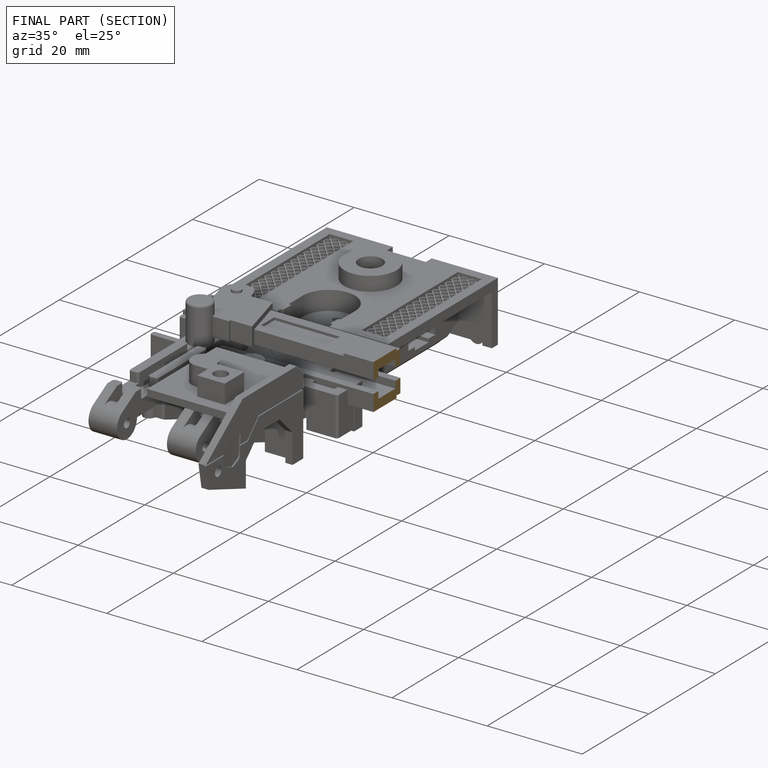
[diagram: finished part — half-section view (interior)]
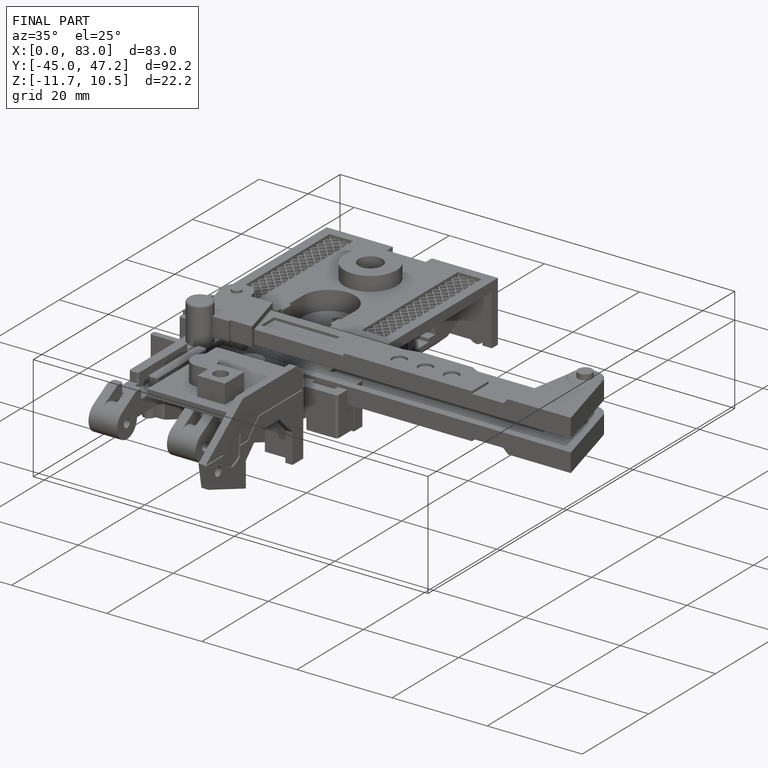
[diagram: finished part — iso view with bounding-box wireframe]
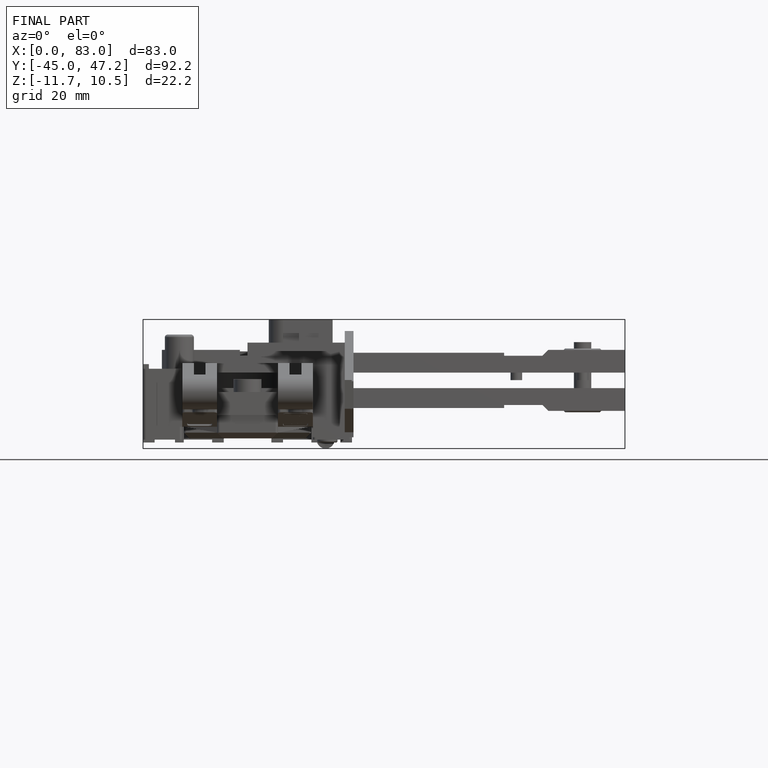
[diagram: finished part — front view with bounding-box wireframe]
